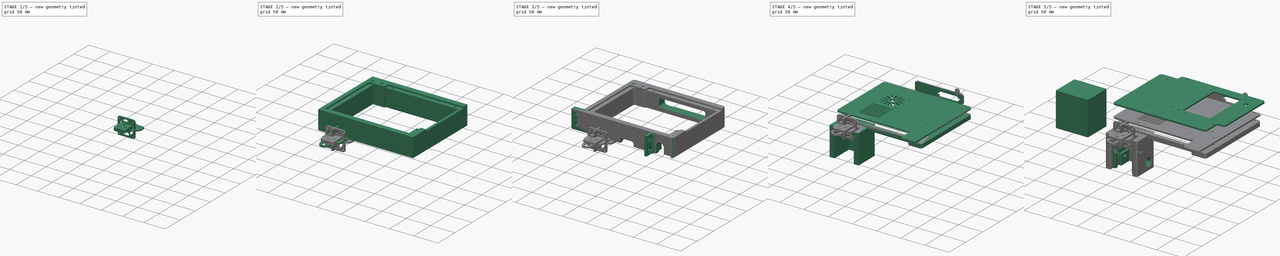
[diagram: build sequence overview — one tinted view per stage of 5, left to right]
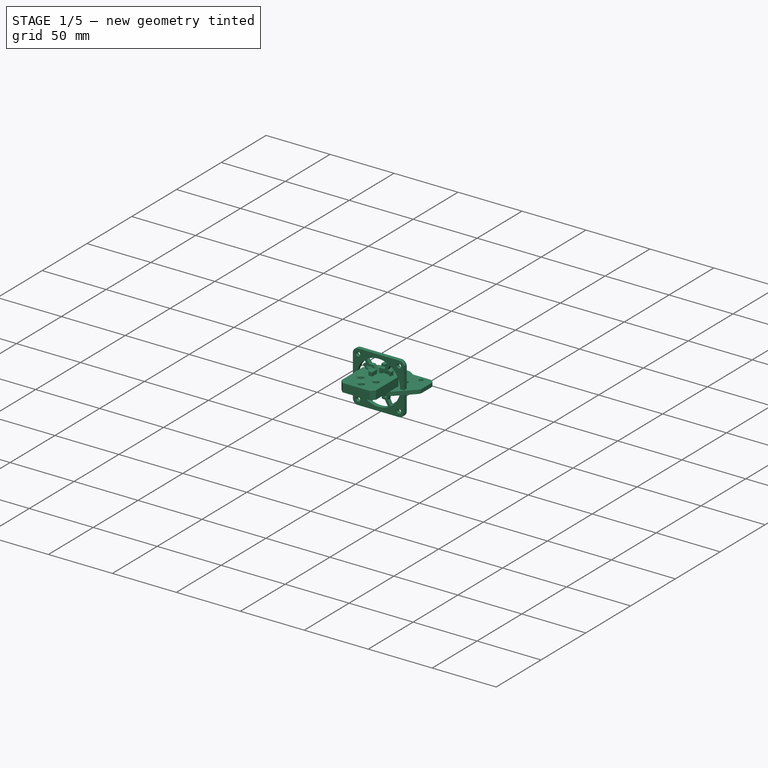
[diagram: stage 1 of 5 — iso view after this stage's code; geometry added in this stage tinted green]
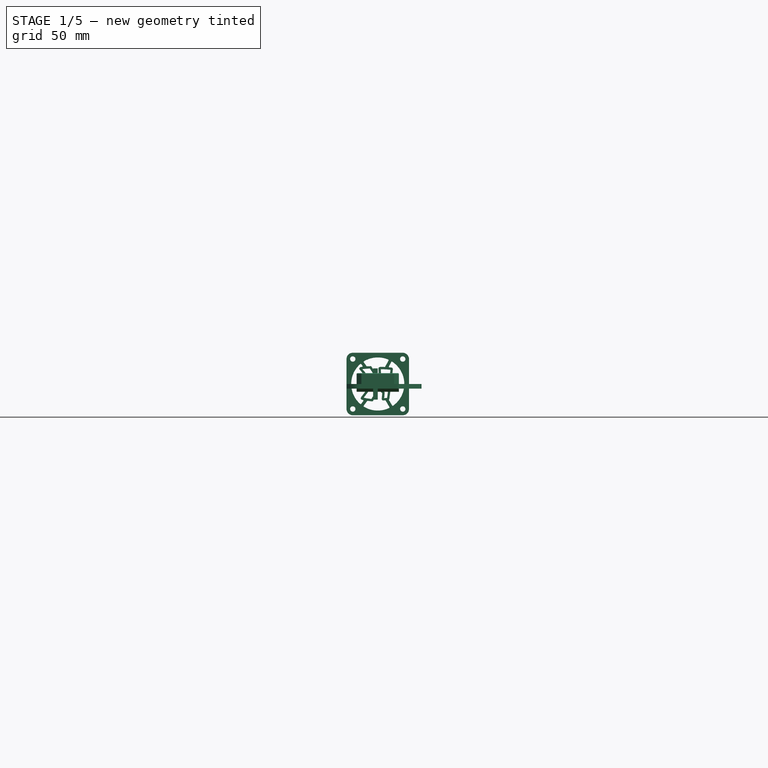
[diagram: stage 1 of 5 — front view after this stage's code; geometry added in this stage tinted green]
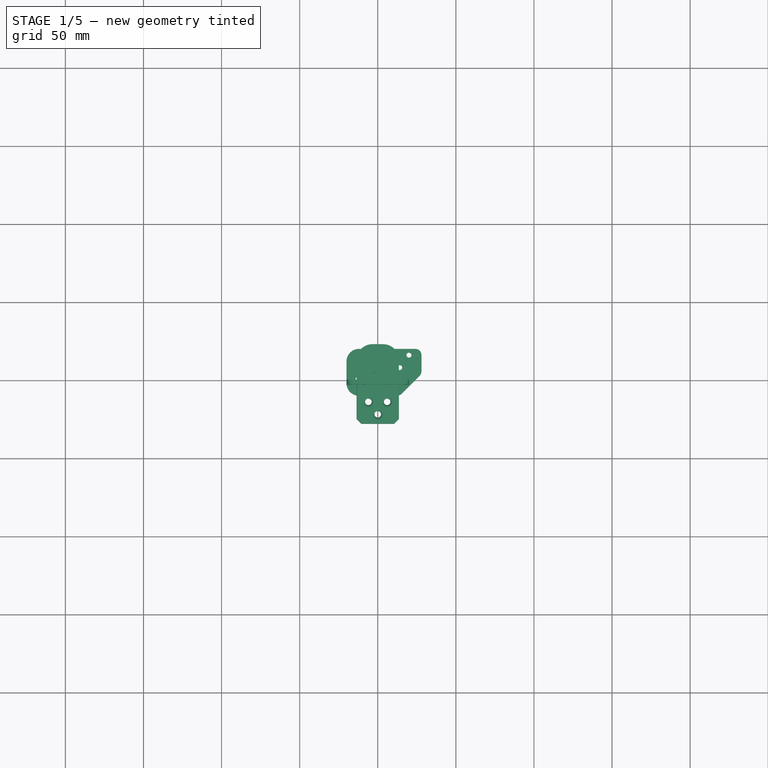
[diagram: stage 1 of 5 — top view after this stage's code; geometry added in this stage tinted green]
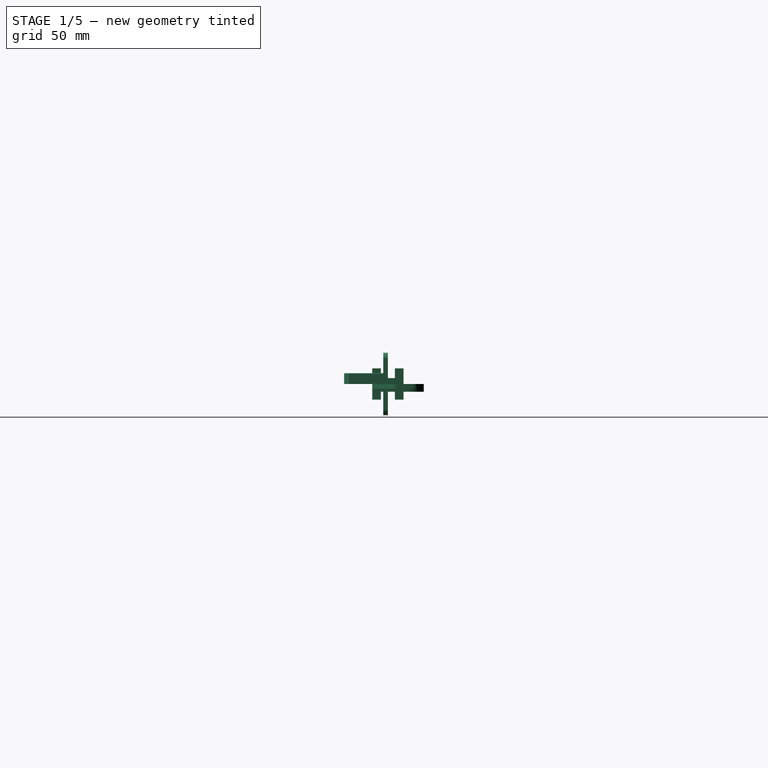
[diagram: stage 1 of 5 — right view after this stage's code; geometry added in this stage tinted green]
FCSTD DOCUMENT  (FreeCAD 2024.113R14555 (Git shallow))
Label: Ender2-Pocket-Edition
License: All rights reserved
LicenseURL: https://en.wikipedia.org/wiki/All_rights_reserved
objects: Sketcher::SketchObject×63, Part::Feature×56, App::Link×48, PartDesign::Pocket×43, PartDesign::Chamfer×30, PartDesign::Pad×25, PartDesign::Fillet×19, App::Part×16, PartDesign::Body×13, PartDesign::SubShapeBinder×7, TechDraw::DrawSVGTemplate×7, TechDraw::DrawProjGroupItem×7, TechDraw::DrawProjGroup×7, TechDraw::DrawPage×7, Part::SubShapeBinder×3, PartDesign::Mirrored×2, Part::Part2DObjectPython×2, PartDesign::Line×1, PartDesign::PolarPattern×1, PartDesign::LinearPattern×1, +1 more types
note: 571 computed .brp shape members not serialized (recipe doc carries the construction recipe); baked Part::Feature solids carry a one-line shape summary decoded from their .brp
EXTERNAL_REF file=SD-Card-Adaptator.FCStd obj=Part001

FEATURE [PartDesign::Body] Body011  label="CacheTopProfile"
  AutoGroupSolids = false
  ClaimAllChildren = false
  ExportMode = 0
  FixShape = 1
  Group = -> [Sketch058,Pad019,Fillet011,Chamfer018]
  InvalidShape = false
  Origin = -> Origin029
  Placement = pos=(85,0,394) rot=(0,0,1;0rad)
  SingleSolid = true
  Tip = -> Chamfer018
  TreeRank = 759
  ValidateShape = false
  _ExportChildren = -> [Pad019,Fillet011,Chamfer018]
  _GroupVersion = 1
FEATURE [TechDraw::DrawSVGTemplate] Template004
  Height = 210
  Orientation = 1
  Template = <path>
  TreeRank = 776
  Width = 297
FEATURE [TechDraw::DrawProjGroupItem] ProjItem004  label="Front004"
  CoarseView = false
  Direction = (0,0,1)
  Focus = 100
  HardHidden = false
  IsoCount = 0
  IsoHidden = false
  IsoVisible = false
  LockPosition = true
  Perspective = false
  Rotation = 0
  RotationVector = (0,-1,0)
  ScaleType = 2
  ScrubCount = 0
  SeamHidden = false
  SeamVisible = false
  SmoothHidden = false
  SmoothVisible = false
  Source = -> [Chamfer018]
  TreeRank = 779
  Type = 0
  X = 0
  XDirection = (0,-1,0)
  Y = 0
FEATURE [TechDraw::DrawProjGroup] ProjGroup004
  Anchor = -> ProjItem004
  AutoDistribute = true
  LockPosition = false
  ProjectionType = 0
  Rotation = 0
  ScaleType = 0
  Source = -> [Chamfer018]
  TreeRank = 780
  Views = -> [ProjItem004]
  X = 27.8617
  Y = 187.265
  spacingX = 15
  spacingY = 15
FEATURE [TechDraw::DrawPage] Page004  label="Laser3mm-CacheProfileTop"
  KeepUpdated = true
  NextBalloonIndex = 1
  ProjectionType = 0
  Template = -> Template004
  TreeRank = 777
  Views = -> [ProjGroup004]
FEATURE [Sketcher::SketchObject] Sketch059
  ArcFitTolerance = 1e-06
  AttachmentSupport = -> [YZ_Plane026]
  ExternalBSplineMaxDegree = 5
  ExternalBSplineTolerance = 0.0001
  FixShape = 1
  FullyConstrained = true
  InternalTolerance = 1e-06
  InvalidShape = false
  MakeInternals = false
  MapMode = 5
  Placement = pos=(0,0,0) rot=(0.57735,0.57735,0.57735;2.0944rad)
  Support = -> [YZ_Plane026]
  TreeRank = 791
  ValidateShape = false
  sketch-geometry (5):
    g0: LineSegment StartX=10 StartY=-10 StartZ=0 EndX=10 EndY=10 EndZ=0
    g1: LineSegment StartX=10 StartY=10 StartZ=0 EndX=-10 EndY=10 EndZ=0
    g2: LineSegment StartX=-10 StartY=10 StartZ=0 EndX=-10 EndY=-10 EndZ=0
    g3: LineSegment StartX=-10 StartY=-10 StartZ=0 EndX=10 EndY=-10 EndZ=0
    g4: GeomPoint [constr] X=0 Y=0 Z=0
  constraints (12):
    c: Coincident(g0,g1)
    c: Coincident(g1,g2)
    c: Coincident(g2,g3)
    c: Coincident(g3,g0)
    c: Horizontal(g1)
    c: Horizontal(g3)
    c: Vertical(g0)
    c: Vertical(g2)
    c: Symmetric(g1,g0,g4)
    c: Coincident(g4,g-1)
    c: Equal(g2,g1)
    c: DistanceY(g2,g2) = 20
FEATURE [PartDesign::Pad] Pad020
  AddSubType = 0
  AlongSketchNormal = false
  AutoTaperInnerAngle = true
  CheckUpToFaceLimits = true
  ClaimChildren = false
  Direction = (1,-2e-16,3e-16)
  Fit = 0
  FitJoin = 0
  FixShape = 1
  InnerFit = 0
  InnerFitJoin = 0
  InvalidShape = false
  Length = 3
  Length2 = 10
  Linearize = true
  NewSolid = false
  Profile = -> Sketch059
  ReferenceAxis = -> Sketch059 [N_Axis]
  Refine = true
  Reversed = true
  Suppress = false
  TaperInnerAngle = 0
  TaperInnerAngleRev = 0
  TreeRank = 792
  Type = 0
  ValidateShape = true
  _ProfileBasedVersion = 1
FEATURE [Sketcher::SketchObject] Sketch060
  ArcFitTolerance = 1e-06
  AttachmentSupport = -> [Pad020]
  ExternalBSplineMaxDegree = 5
  ExternalBSplineTolerance = 0.0001
  ExternalGeometry = -> [Pad020]
  FixShape = 1
  FullyConstrained = true
  InternalTolerance = 1e-06
  InvalidShape = false
  MakeInternals = false
  MapMode = 5
  Placement = pos=(0,0,0) rot=(0.57735,0.57735,0.57735;2.0944rad)
  Support = -> [Pad020]
  TreeRank = 793
  ValidateShape = false
  sketch-geometry (10):
    g0: LineSegment StartX=-4.5 StartY=-3.8 StartZ=0 EndX=-4.5 EndY=-10 EndZ=0
    g1: LineSegment StartX=-4.5 StartY=-10 StartZ=0 EndX=4.5 EndY=-10 EndZ=0
    g2: LineSegment StartX=4.5 StartY=-10 StartZ=0 EndX=4.5 EndY=-3.8 EndZ=0
    g3: LineSegment StartX=4.5 StartY=-3.8 StartZ=0 EndX=-4.5 EndY=-3.8 EndZ=0
    g4: GeomPoint [constr] X=0 Y=-6.9 Z=0
    g5: LineSegment StartX=-4.5 StartY=3.8 StartZ=0 EndX=-4.5 EndY=10 EndZ=0
    g6: LineSegment StartX=-4.5 StartY=10 StartZ=0 EndX=4.5 EndY=10 EndZ=0
    g7: LineSegment StartX=4.5 StartY=10 StartZ=0 EndX=4.5 EndY=3.8 EndZ=0
    g8: LineSegment StartX=4.5 StartY=3.8 StartZ=0 EndX=-4.5 EndY=3.8 EndZ=0
    g9: GeomPoint [constr] X=0 Y=6.9 Z=0
  constraints (25):
    c: Coincident(g0,g1)
    c: Coincident(g1,g2)
    c: Coincident(g2,g3)
    c: Coincident(g3,g0)
    c: Horizontal(g1)
    c: Horizontal(g3)
    c: Vertical(g0)
    c: Vertical(g2)
    c: Symmetric(g1,g0,g4)
    c: PointOnObject(g4,g-2)
    c: PointOnObject(g1,g-4)
    c: Coincident(g5,g6)
    c: Coincident(g6,g7)
    c: Coincident(g7,g8)
    c: Coincident(g8,g5)
    c: Horizontal(g6)
    c: Horizontal(g8)
    c: Vertical(g5)
    c: Vertical(g7)
    c: Symmetric(g6,g5,g9)
    c: PointOnObject(g9,g-2)
    c: PointOnObject(g6,g-3)
    c: Symmetric(g7,g2,g-1)
    c: DistanceY(g7,g7) = 6.2
    c: DistanceX(g6,g6) = 9
FEATURE [PartDesign::Pocket] Pocket042
  AddSubType = 1
  AlongSketchNormal = false
  AutoTaperInnerAngle = true
  BaseFeature = -> Pad020
  CheckUpToFaceLimits = true
  ClaimChildren = false
  Direction = (-1,0,0)
  Fit = 0
  FitJoin = 0
  FixShape = 1
  InnerFit = 0
  InnerFitJoin = 0
  InvalidShape = false
  Length = 5
  Length2 = 10
  Linearize = true
  NewSolid = false
  Profile = -> Sketch060
  ReferenceAxis = -> Sketch060 [N_Axis]
  Refine = true
  Suppress = false
  TaperInnerAngle = 0
  TaperInnerAngleRev = 0
  TreeRank = 794
  Type = 1
  ValidateShape = true
  _ProfileBasedVersion = 1
  _Version = 1
FEATURE [PartDesign::Body] Body012  label="RoulementProfileX"
  AutoGroupSolids = false
  ClaimAllChildren = false
  ExportMode = 0
  FixShape = 1
  Group = -> [Sketch059,Pad020,Sketch060,Pocket042,Chamfer019,Sketch061,Pad021,Mirrored001,Sketch062,Pad022,Chamfer020,Sketch063,Pad023,Fillet012,Fillet013,Sketch064,Pocket043,Chamfer021,Sketch065,Pocket044,Chamfer022]
  InvalidShape = false
  Origin = -> Origin030
  Placement = pos=(-154,26.5,285) rot=(0,0,1;0rad)
  SingleSolid = true
  Tip = -> Chamfer022
  TreeRank = 790
  ValidateShape = false
  _ExportChildren = -> [Pad020,Pocket042,Chamfer019,Pad021,Mirrored001,Pad022,Chamfer020,Pad023,Fillet012,Fillet013,Pocket043,Chamfer021,Pocket044,Chamfer022]
  _GroupVersion = 1
FEATURE [Sketcher::SketchObject] Sketch066
  ArcFitTolerance = 1e-06
  AttachmentSupport = -> [YZ_Plane027]
  ExternalBSplineMaxDegree = 5
  ExternalBSplineTolerance = 0.0001
  FixShape = 1
  FullyConstrained = true
  InternalTolerance = 1e-06
  InvalidShape = false
  MakeInternals = false
  MapMode = 5
  Placement = pos=(0,0,0) rot=(0.57735,0.57735,0.57735;2.0944rad)
  Support = -> [YZ_Plane027]
  TreeRank = 822
  ValidateShape = false
  sketch-geometry (8):
    g0: LineSegment StartX=23 StartY=0 StartZ=0 EndX=0 EndY=0 EndZ=0
    g1: LineSegment StartX=0 StartY=0 StartZ=0 EndX=0 EndY=7 EndZ=0
    g2: LineSegment StartX=0 StartY=7 StartZ=0 EndX=-28 EndY=7 EndZ=0
    g3: LineSegment StartX=-28 StartY=7 StartZ=0 EndX=-28 EndY=0 EndZ=0
    g4: LineSegment StartX=-28 StartY=0 StartZ=0 EndX=-10 EndY=0 EndZ=0
    g5: LineSegment StartX=-10 StartY=0 StartZ=0 EndX=-10 EndY=-5 EndZ=0
    g6: LineSegment StartX=-10 StartY=-5 StartZ=0 EndX=23 EndY=-5 EndZ=0
    g7: LineSegment StartX=23 StartY=-5 StartZ=0 EndX=23 EndY=0 EndZ=0
  constraints (23):
    c: PointOnObject(g0,g-1)
    c: Coincident(g0,g-1)
    c: Coincident(g0,g1)
    c: PointOnObject(g1,g-2)
    c: Coincident(g1,g2)
    c: Horizontal(g2)
    c: Coincident(g2,g3)
    c: Vertical(g3)
    c: Coincident(g3,g4)
    c: Horizontal(g4)
    c: Coincident(g4,g5)
    c: Vertical(g5)
    c: Coincident(g5,g6)
    c: Horizontal(g6)
    c: Coincident(g6,g7)
    c: Coincident(g7,g0)
    c: Vertical(g7)
    c: DistanceY(g7,g7) = 5
    c: PointOnObject(g4,g-1)
    c: DistanceX(g4,g0) = 10
    c: DistanceY(g3,g3) = 7
    c: DistanceX(g4,g4) = 18
    c: DistanceX(g0,g0) = 23
FEATURE [PartDesign::Pad] Pad024
  AddSubType = 0
  AlongSketchNormal = false
  AutoTaperInnerAngle = true
  CheckUpToFaceLimits = true
  ClaimChildren = false
  Direction = (1,-2e-16,3e-16)
  Fit = 0
  FitJoin = 0
  FixShape = 1
  InnerFit = 0
  InnerFitJoin = 0
  InvalidShape = false
  Length = 27
  Length2 = 10
  Linearize = true
  Midplane = true
  NewSolid = false
  Profile = -> Sketch066
  ReferenceAxis = -> Sketch066 [N_Axis]
  Refine = true
  Suppress = false
  TaperInnerAngle = 0
  TaperInnerAngleRev = 0
  TreeRank = 823
  Type = 0
  ValidateShape = true
  _ProfileBasedVersion = 1
FEATURE [Sketcher::SketchObject] Sketch067
  ArcFitTolerance = 1e-06
  AttachmentSupport = -> [XY_Plane027]
  ExternalBSplineMaxDegree = 5
  ExternalBSplineTolerance = 0.0001
  FixShape = 1
  FullyConstrained = true
  InternalTolerance = 1e-06
  InvalidShape = false
  MakeInternals = false
  MapMode = 5
  Support = -> [XY_Plane027]
  TreeRank = 824
  ValidateShape = false
  sketch-geometry (1):
    g0: Circle CenterX=0 CenterY=11.5 CenterZ=0 NormalX=0 NormalY=0 NormalZ=1 AngleXU=0 Radius=2.9
  constraints (3):
    c: PointOnObject(g0,g-2)
    c: DistanceY(g-1,g0) = 11.5
    c: Diameter(g0) = 5.8
FEATURE [PartDesign::Pocket] Pocket045
  AddSubType = 1
  AlongSketchNormal = false
  AutoTaperInnerAngle = true
  BaseFeature = -> Pad024
  CheckUpToFaceLimits = true
  ClaimChildren = false
  Direction = (0,0,-1)
  Fit = 0
  FitJoin = 0
  FixShape = 1
  InnerFit = 0
  InnerFitJoin = 0
  InvalidShape = false
  Length = 5
  Length2 = 10
  Linearize = true
  NewSolid = false
  Profile = -> Sketch067
  ReferenceAxis = -> Sketch067 [N_Axis]
  Refine = true
  Suppress = false
  TaperInnerAngle = 0
  TaperInnerAngleRev = 0
  TreeRank = 825
  Type = 1
  ValidateShape = true
  _ProfileBasedVersion = 1
  _Version = 1
FEATURE [Sketcher::SketchObject] Sketch068
  ArcFitTolerance = 1e-06
  AttachmentSupport = -> [Pocket045]
  ExternalBSplineMaxDegree = 5
  ExternalBSplineTolerance = 0.0001
  ExternalGeometry = -> [Pocket045]
  FixShape = 1
  FullyConstrained = true
  InternalTolerance = 1e-06
  InvalidShape = false
  MakeInternals = false
  MapMode = 5
  Placement = pos=(1.4e-15,-1.1e-15,-5) rot=(1,0,0;3.14159rad)
  Support = -> [Pocket045]
  TreeRank = 826
  ValidateShape = false
  sketch-geometry (1):
    g0: Circle CenterX=0 CenterY=-11.5 CenterZ=0 NormalX=0 NormalY=0 NormalZ=1 AngleXU=0 Radius=5.5
  constraints (2):
    c: Coincident(g0,g-3)
    c: Diameter(g0) = 11
FEATURE [PartDesign::Pocket] Pocket046
  AddSubType = 1
  AlongSketchNormal = false
  AutoTaperInnerAngle = true
  BaseFeature = -> Pocket045
  CheckUpToFaceLimits = true
  ClaimChildren = false
  Direction = (-3e-16,2e-16,1)
  Fit = 0
  FitJoin = 0
  FixShape = 1
  InnerFit = 0
  InnerFitJoin = 0
  InvalidShape = false
  Length = 3
  Length2 = 10
  Linearize = true
  NewSolid = false
  Profile = -> Sketch068
  ReferenceAxis = -> Sketch068 [N_Axis]
  Refine = true
  Suppress = false
  TaperInnerAngle = 0
  TaperInnerAngleRev = 0
  TreeRank = 827
  Type = 0
  ValidateShape = true
  _ProfileBasedVersion = 1
  _Version = 1
FEATURE [Sketcher::SketchObject] Sketch069
  ArcFitTolerance = 1e-06
  AttachmentSupport = -> [Pocket046]
  ExternalBSplineMaxDegree = 5
  ExternalBSplineTolerance = 0.0001
  ExternalGeometry = -> [Pocket046]
  FixShape = 1
  FullyConstrained = true
  InternalTolerance = 1e-06
  InvalidShape = false
  MakeInternals = false
  MapMode = 5
  Placement = pos=(0,0,0) rot=(1,0,0;3.14159rad)
  Support = -> [Pocket046]
  TreeRank = 828
  ValidateShape = false
  sketch-geometry (3):
    g0: Circle CenterX=0 CenterY=22 CenterZ=0 NormalX=0 NormalY=0 NormalZ=1 AngleXU=0 Radius=2.1
    g1: Circle CenterX=-6 CenterY=14 CenterZ=0 NormalX=0 NormalY=0 NormalZ=1 AngleXU=0 Radius=2.1
    g2: Circle CenterX=6 CenterY=14 CenterZ=0 NormalX=0 NormalY=0 NormalZ=1 AngleXU=0 Radius=2.1
  constraints (8):
    c: PointOnObject(g0,g-2)
    c: Equal(g1,g2)
    c: Equal(g1,g0)
    c: Diameter(g1) = 4.2
    c: Symmetric(g1,g2,g-2)
    c: DistanceX(g1,g2) = 12
    c: DistanceY(g2,g0) = 8
    c: DistanceY(g-3,g2) = 4
FEATURE [PartDesign::Pocket] Pocket047
  AddSubType = 1
  AlongSketchNormal = false
  AutoTaperInnerAngle = true
  BaseFeature = -> Pocket046
  CheckUpToFaceLimits = true
  ClaimChildren = false
  Direction = (-3e-16,2e-16,1)
  Fit = 0
  FitJoin = 0
  FixShape = 1
  InnerFit = 0
  InnerFitJoin = 0
  InvalidShape = false
  Length = 5
  Length2 = 10
  Linearize = true
  NewSolid = false
  Profile = -> Sketch069
  ReferenceAxis = -> Sketch069 [N_Axis]
  Refine = true
  Suppress = false
  TaperInnerAngle = 0
  TaperInnerAngleRev = 0
  TreeRank = 829
  Type = 1
  ValidateShape = true
  _ProfileBasedVersion = 1
  _Version = 1
FEATURE [PartDesign::Chamfer] Chamfer023
  AddSubType = 0
  Angle = 45
  Base = -> Pocket047 [Edge24]
  BaseFeature = -> Pocket047
  ChamferType = 0
  FixShape = 1
  FlipDirection = false
  InvalidShape = false
  NewSolid = false
  Refine = true
  Size = 4.99
  Size2 = 1
  SupportTransform = false
  Suppress = false
  TreeRank = 830
  UseAllEdges = false
  ValidateShape = true
FEATURE [PartDesign::Fillet] Fillet014
  AddSubType = 0
  Base = -> Chamfer023 [Edge26,Edge6]
  BaseFeature = -> Chamfer023
  FixShape = 1
  InvalidShape = false
  NewSolid = false
  Radius = 10
  Refine = true
  SupportTransform = false
  Suppress = false
  TreeRank = 831
  UseAllEdges = false
  ValidateShape = true
FEATURE [PartDesign::Chamfer] Chamfer024
  AddSubType = 0
  Angle = 45
  Base = -> Fillet014 [Edge39,Edge9]
  BaseFeature = -> Fillet014
  ChamferType = 0
  FixShape = 1
  FlipDirection = false
  InvalidShape = false
  NewSolid = false
  Refine = true
  Size = 3
  Size2 = 1
  SupportTransform = false
  Suppress = false
  TreeRank = 832
  UseAllEdges = false
  ValidateShape = true
FEATURE [PartDesign::Chamfer] Chamfer025
  AddSubType = 0
  Angle = 45
  Base = -> Chamfer024 [Edge42,Edge54,Edge37]
  BaseFeature = -> Chamfer024
  ChamferType = 0
  FixShape = 1
  FlipDirection = false
  InvalidShape = false
  NewSolid = false
  Refine = true
  Size = 0.2
  Size2 = 1
  SupportTransform = false
  Suppress = false
  TreeRank = 833
  UseAllEdges = false
  ValidateShape = true
FEATURE [PartDesign::Chamfer] Chamfer026
  AddSubType = 0
  Angle = 45
  Base = -> Chamfer025 [Edge39,Edge46,Edge47,Edge38,Edge40,Edge48]
  BaseFeature = -> Chamfer025
  ChamferType = 0
  FixShape = 1
  FlipDirection = false
  InvalidShape = false
  NewSolid = false
  Refine = true
  Size = 1
  Size2 = 1
  SupportTransform = false
  Suppress = false
  TreeRank = 834
  UseAllEdges = false
  ValidateShape = true
FEATURE [PartDesign::Chamfer] Chamfer027
  AddSubType = 0
  Angle = 45
  Base = -> Chamfer026 [Edge41]
  BaseFeature = -> Chamfer026
  ChamferType = 0
  FixShape = 1
  FlipDirection = false
  InvalidShape = false
  NewSolid = false
  Refine = true
  Size = 1
  Size2 = 1
  SupportTransform = false
  Suppress = false
  TreeRank = 835
  UseAllEdges = false
  ValidateShape = true
FEATURE [PartDesign::Chamfer] Chamfer028
  AddSubType = 0
  Angle = 45
  Base = -> Chamfer027 [Face2]
  BaseFeature = -> Chamfer027
  ChamferType = 0
  FixShape = 1
  FlipDirection = false
  InvalidShape = false
  NewSolid = false
  Refine = true
  Size = 0.4
  Size2 = 1
  SupportTransform = false
  Suppress = false
  TreeRank = 836
  UseAllEdges = false
  ValidateShape = true
FEATURE [PartDesign::Body] Body013  label="DragChainSligBottom"
  AutoGroupSolids = false
  ClaimAllChildren = false
  ExportMode = 0
  FixShape = 1
  Group = -> [Sketch066,Pad024,Sketch067,Pocket045,Sketch068,Pocket046,Sketch069,Pocket047,Chamfer023,Fillet014,Chamfer024,Chamfer025,Chamfer026,Chamfer027,Chamfer028]
  InvalidShape = false
  Origin = -> Origin031
  Placement = pos=(53,-110,-3.7) rot=(0,0,1;0rad)
  SingleSolid = true
  Tip = -> Chamfer028
  TreeRank = 821
  ValidateShape = false
  _ExportChildren = -> [Pad024,Pocket045,Pocket046,Pocket047,Chamfer023,Fillet014,Chamfer024,Chamfer025,Chamfer026,Chamfer027,Chamfer028]
  _GroupVersion = 1
FEATURE [Sketcher::SketchObject] Sketch070
  ArcFitTolerance = 1e-06
  AttachmentSupport = -> [XY_Plane028]
  ExternalBSplineMaxDegree = 5
  ExternalBSplineTolerance = 0.0001
  FixShape = 1
  FullyConstrained = true
  InternalTolerance = 1e-06
  InvalidShape = false
  MakeInternals = false
  MapMode = 5
  Support = -> [XY_Plane028]
  TreeRank = 847
  ValidateShape = false
  sketch-geometry (10):
    g0: Circle CenterX=-11.5 CenterY=0 CenterZ=0 NormalX=0 NormalY=0 NormalZ=1 AngleXU=0 Radius=2.8
    g1: Circle CenterX=8 CenterY=16 CenterZ=0 NormalX=0 NormalY=0 NormalZ=1 AngleXU=0 Radius=1.6
    g2: Circle CenterX=20 CenterY=16 CenterZ=0 NormalX=0 NormalY=0 NormalZ=1 AngleXU=0 Radius=1.6
    g3: Circle CenterX=14 CenterY=8 CenterZ=0 NormalX=0 NormalY=0 NormalZ=1 AngleXU=0 Radius=1.6
    g4: LineSegment [constr] StartX=8 StartY=16 StartZ=0 EndX=20 EndY=16 EndZ=0
    g5: LineSegment [constr] StartX=14 StartY=8 StartZ=0 EndX=14 EndY=16 EndZ=0
    g6: LineSegment StartX=-20 StartY=20 StartZ=0 EndX=28 EndY=20 EndZ=0
    g7: LineSegment StartX=28 StartY=20 StartZ=0 EndX=28 EndY=-10 EndZ=0
    g8: LineSegment StartX=28 StartY=-10 StartZ=0 EndX=-20 EndY=-10 EndZ=0
    g9: LineSegment StartX=-20 StartY=-10 StartZ=0 EndX=-20 EndY=20 EndZ=0
  constraints (28):
    c: PointOnObject(g0,g-1)
    c: Diameter(g0) = 5.6
    c: DistanceX(g0,g-1) = 11.5
    c: Horizontal(g1,g2)
    c: Coincident(g4,g1)
    c: Coincident(g4,g2)
    c: Vertical(g5)
    c: Symmetric(g1,g2,g5)
    c: Coincident(g5,g3)
    c: Equal(g1,g3)
    c: Equal(g1,g2)
    c: Diameter(g1) = 3.2
    c: DistanceX(g4,g4) = 12
    c: DistanceY(g5,g5) = 8
    c: DistanceX(g-1,g5) = 14
    c: Coincident(g6,g7)
    c: Coincident(g7,g8)
    c: Coincident(g8,g9)
    c: Coincident(g9,g6)
    c: Horizontal(g6)
    c: Horizontal(g8)
    c: Vertical(g7)
    c: Vertical(g9)
    c: DistanceY(g7,g-1) = 10
    c: DistanceX(g5,g6) = 14
    c: DistanceY(g2,g6) = 4
    c: DistanceX(g6,g-1) = 20
    c: DistanceY(g7,g7) = 30
FEATURE [PartDesign::Pad] Pad025
  AddSubType = 0
  AlongSketchNormal = false
  AutoTaperInnerAngle = true
  CheckUpToFaceLimits = true
  ClaimChildren = false
  Direction = (0,0,1)
  Fit = 0
  FitJoin = 0
  FixShape = 1
  InnerFit = 0
  InnerFitJoin = 0
  InvalidShape = false
  Length = 3
  Length2 = 10
  Linearize = true
  NewSolid = false
  Profile = -> Sketch070
  ReferenceAxis = -> Sketch070 [N_Axis]
  Refine = true
  Reversed = true
  Suppress = false
  TaperInnerAngle = 0
  TaperInnerAngleRev = 0
  TreeRank = 848
  Type = 0
  ValidateShape = true
  _ProfileBasedVersion = 1
FEATURE [PartDesign::Chamfer] Chamfer029
  AddSubType = 0
  Angle = 45
  Base = -> Pad025 [Edge5]
  BaseFeature = -> Pad025
  ChamferType = 0
  FixShape = 1
  FlipDirection = false
  InvalidShape = false
  NewSolid = false
  Refine = true
  Size = 14
  Size2 = 1
  SupportTransform = false
  Suppress = false
  TreeRank = 849
  UseAllEdges = false
  ValidateShape = true
FEATURE [PartDesign::Fillet] Fillet015
  AddSubType = 0
  Base = -> Chamfer029 [Edge23,Edge15]
  BaseFeature = -> Chamfer029
  FixShape = 1
  InvalidShape = false
  NewSolid = false
  Radius = 8
  Refine = true
  SupportTransform = false
  Suppress = false
  TreeRank = 850
  UseAllEdges = false
  ValidateShape = true
FEATURE [PartDesign::Fillet] Fillet016
  AddSubType = 0
  Base = -> Fillet015 [Edge13,Edge17,Edge21]
  BaseFeature = -> Fillet015
  FixShape = 1
  InvalidShape = false
  NewSolid = false
  Radius = 4
  Refine = true
  SupportTransform = false
  Suppress = false
  TreeRank = 851
  UseAllEdges = false
  ValidateShape = true
FEATURE [PartDesign::Body] Body014  label="DragChainePlate"
  AutoGroupSolids = false
  ClaimAllChildren = false
  ExportMode = 0
  FixShape = 1
  Group = -> [Sketch070,Pad025,Chamfer029,Fillet015,Fillet016]
  InvalidShape = false
  Origin = -> Origin032
  Placement = pos=(108,-82,-3.7) rot=(0,0,1;0rad)
  SingleSolid = true
  Tip = -> Fillet016
  TreeRank = 846
  ValidateShape = false
  _ExportChildren = -> [Pad025,Chamfer029,Fillet015,Fillet016]
  _GroupVersion = 1
FEATURE [TechDraw::DrawSVGTemplate] Template005
  Height = 210
  Orientation = 1
  Template = <path>
  TreeRank = 853
  Width = 297
FEATURE [TechDraw::DrawProjGroupItem] ProjItem005  label="Front005"
  CoarseView = false
  Direction = (0,0,1)
  Focus = 100
  HardHidden = false
  IsoCount = 0
  IsoHidden = false
  IsoVisible = false
  LockPosition = true
  Perspective = false
  Rotation = 0
  RotationVector = (1,0,0)
  ScaleType = 2
  ScrubCount = 0
  SeamHidden = false
  SeamVisible = false
  SmoothHidden = false
  SmoothVisible = false
  Source = -> [Fillet016]
  TreeRank = 856
  Type = 0
  X = 0
  XDirection = (1,0,0)
  Y = 0
FEATURE [TechDraw::DrawProjGroup] ProjGroup005
  Anchor = -> ProjItem005
  AutoDistribute = true
  LockPosition = false
  ProjectionType = 0
  Rotation = 0
  ScaleType = 0
  Source = -> [Fillet016]
  TreeRank = 857
  Views = -> [ProjItem005]
  X = 25.0014
  Y = 194.21
  spacingX = 15
  spacingY = 15
FEATURE [TechDraw::DrawPage] Page005
  KeepUpdated = true
  NextBalloonIndex = 1
  ProjectionType = 0
  Template = -> Template005
  TreeRank = 854
  Views = -> [ProjGroup005]
FEATURE [Sketcher::SketchObject] Sketch071
  ArcFitTolerance = 1e-06
  AttachmentSupport = -> [XZ_Plane029]
  ExternalBSplineMaxDegree = 5
  ExternalBSplineTolerance = 0.0001
  FixShape = 1
  FullyConstrained = true
  InternalTolerance = 1e-06
  InvalidShape = false
  MakeInternals = false
  MapMode = 5
  Placement = pos=(0,0,0) rot=(1,0,0;1.5708rad)
  Support = -> [XZ_Plane029]
  TreeRank = 868
  ValidateShape = false
  sketch-geometry (14):
    g0: LineSegment StartX=-20 StartY=-20 StartZ=0 EndX=-20 EndY=20 EndZ=0
    g1: LineSegment StartX=-20 StartY=20 StartZ=0 EndX=20 EndY=20 EndZ=0
    g2: LineSegment StartX=20 StartY=20 StartZ=0 EndX=20 EndY=-20 EndZ=0
    g3: LineSegment StartX=20 StartY=-20 StartZ=0 EndX=-20 EndY=-20 EndZ=0
    g4: GeomPoint [constr] X=-5e-16 Y=-1e-16 Z=0
    g5: LineSegment [constr] StartX=16 StartY=-16 StartZ=0 EndX=16 EndY=16 EndZ=0
    g6: LineSegment [constr] StartX=16 StartY=16 StartZ=0 EndX=-16 EndY=16 EndZ=0
    g7: LineSegment [constr] StartX=-16 StartY=16 StartZ=0 EndX=-16 EndY=-16 EndZ=0
    g8: LineSegment [constr] StartX=-16 StartY=-16 StartZ=0 EndX=16 EndY=-16 EndZ=0
    g9: GeomPoint [constr] X=-5e-16 Y=-1e-16 Z=0
    g10: Circle CenterX=-16 CenterY=16 CenterZ=0 NormalX=0 NormalY=0 NormalZ=1 AngleXU=0 Radius=1.7
    g11: Circle CenterX=16 CenterY=16 CenterZ=0 NormalX=0 NormalY=0 NormalZ=1 AngleXU=0 Radius=1.7
    g12: Circle CenterX=16 CenterY=-16 CenterZ=0 NormalX=0 NormalY=0 NormalZ=1 AngleXU=0 Radius=1.7
    g13: Circle CenterX=-16 CenterY=-16 CenterZ=0 NormalX=0 NormalY=0 NormalZ=1 AngleXU=0 Radius=1.7
  constraints (32):
    c: Coincident(g0,g1)
    c: Coincident(g1,g2)
    c: Coincident(g2,g3)
    c: Coincident(g3,g0)
    c: Horizontal(g1)
    c: Horizontal(g3)
    c: Vertical(g0)
    c: Vertical(g2)
    c: Symmetric(g1,g0,g4)
    c: Coincident(g4,g-1)
    c: Equal(g2,g1)
    c: DistanceY(g2,g2) = 40
    c: Coincident(g5,g6)
    c: Coincident(g6,g7)
    c: Coincident(g7,g8)
    c: Coincident(g8,g5)
    c: Horizontal(g6)
    c: Horizontal(g8)
    c: Vertical(g5)
    c: Vertical(g7)
    c: Symmetric(g6,g5,g9)
    c: Coincident(g9,g4)
    c: Equal(g6,g7)
    c: DistanceX(g6,g6) = 32
    c: Coincident(g10,g6)
    c: Coincident(g11,g5)
    c: Coincident(g12,g5)
    c: Coincident(g13,g7)
    c: Equal(g13,g10)
    c: Equal(g13,g11)
    c: Equal(g13,g12)
    c: Diameter(g13) = 3.4
FEATURE [PartDesign::Pad] Pad026
  AddSubType = 0
  AlongSketchNormal = false
  AutoTaperInnerAngle = true
  CheckUpToFaceLimits = true
  ClaimChildren = false
  Direction = (0,-1,2e-16)
  Fit = 0
  FitJoin = 0
  FixShape = 1
  InnerFit = 0
  InnerFitJoin = 0
  InvalidShape = false
  Length = 3
  Length2 = 10
  Linearize = true
  NewSolid = false
  Profile = -> Sketch071
  ReferenceAxis = -> Sketch071 [N_Axis]
  Refine = true
  Suppress = false
  TaperInnerAngle = 0
  TaperInnerAngleRev = 0
  TreeRank = 869
  Type = 0
  ValidateShape = true
  _ProfileBasedVersion = 1
FEATURE [PartDesign::Fillet] Fillet017
  AddSubType = 0
  Base = -> Pad026 [Edge5,Edge2,Edge1,Edge8]
  BaseFeature = -> Pad026
  FixShape = 1
  InvalidShape = false
  NewSolid = false
  Radius = 4
  Refine = true
  SupportTransform = false
  Suppress = false
  TreeRank = 870
  UseAllEdges = false
  ValidateShape = true
FEATURE [Part::Part2DObjectPython] ShapeString001  # Draft 2D object (typed FeaturePython)
  FixShape = 1
  FontFile = G:/Mon Drive/02 - LES KARIBOUS/2024/COMMUNICATION/baveuse/baveuse.otf
  InvalidShape = false
  MakeFace = true
  Placement = pos=(8.9,70,274.9) rot=(0,0.707107,0.707107;3.14159rad)
  Size = 10
  String = K
  Tracking = 0
  TreeRank = 871
  ValidateShape = false
FEATURE [PartDesign::SubShapeBinder] Binder006  label="Binder006(ShapeString001)"
  BindCopyOnChange = 0
  BindMode = 0
  ClaimChildren = false
  Context = -> Part015 [Body015.Binder006.]
  EdgeTolerance = 1e-06
  FillStyle = 0
  FixShape = 1
  Fuse = false
  InvalidShape = false
  MakeFace = true
  MergeEdges = true
  OffsetFill = false
  OffsetIntersection = false
  OffsetJoinType = 0
  OffsetOpenResult = false
  Outline = false
  PartialLoad = false
  Relative = true
  SplitEdges = false
  Support = -> [ShapeString001]
  TightBound = false
  TreeRank = 872
  ValidateShape = false
  _Version = 8
FEATURE [Sketcher::SketchObject] Sketch072
  ArcFitTolerance = 1e-06
  AttachmentSupport = -> [Fillet017]
  ExternalBSplineMaxDegree = 5
  ExternalBSplineTolerance = 0.0001
  FixShape = 1
  FullyConstrained = true
  InternalTolerance = 1e-06
  InvalidShape = false
  MakeInternals = false
  MapMode = 5
  Placement = pos=(0,0,0) rot=(0,0.707107,0.707107;3.14159rad)
  Support = -> [Fillet017]
  TreeRank = 873
  ValidateShape = false
  sketch-geometry (1):
    g0: Circle CenterX=0 CenterY=0 CenterZ=0 NormalX=0 NormalY=0 NormalZ=1 AngleXU=0 Radius=17
  constraints (2):
    c: Diameter(g0) = 34
    c: Coincident(g0,g-1)
FEATURE [PartDesign::Pocket] Pocket048
  AddSubType = 1
  AlongSketchNormal = false
  AutoTaperInnerAngle = true
  BaseFeature = -> Fillet017
  CheckUpToFaceLimits = true
  ClaimChildren = false
  Direction = (0,-1,2e-16)
  Fit = 0
  FitJoin = 0
  FixShape = 1
  InnerFit = 0
  InnerFitJoin = 0
  InvalidShape = false
  Length = 5
  Length2 = 10
  Linearize = true
  NewSolid = false
  Profile = -> Sketch072
  ReferenceAxis = -> Sketch072 [N_Axis]
  Refine = true
  Suppress = false
  TaperInnerAngle = 0
  TaperInnerAngleRev = 0
  TreeRank = 874
  Type = 1
  ValidateShape = true
  _ProfileBasedVersion = 1
  _Version = 1
FEATURE [PartDesign::Pad] Pad027
  AddSubType = 0
  AlongSketchNormal = false
  AutoTaperInnerAngle = true
  BaseFeature = -> Pocket048
  CheckUpToFaceLimits = true
  ClaimChildren = false
  Direction = (0,1,-2e-16)
  Fit = 1
  FitJoin = 0
  FixShape = 1
  InnerFit = 0
  InnerFitJoin = 0
  InvalidShape = false
  Length = 3
  Length2 = 10
  Linearize = true
  NewSolid = false
  Profile = -> Binder006
  Refine = true
  Reversed = true
  Suppress = false
  TaperInnerAngle = 0
  TaperInnerAngleRev = 0
  TreeRank = 875
  Type = 0
  ValidateShape = true
  _ProfileBasedVersion = 1
FEATURE [Sketcher::SketchObject] Sketch073
  ArcFitTolerance = 1e-06
  AttachmentSupport = -> [XZ_Plane029]
  ExternalBSplineMaxDegree = 5
  ExternalBSplineTolerance = 0.0001
  FixShape = 1
  FullyConstrained = false
  InternalTolerance = 1e-06
  InvalidShape = false
  MakeInternals = false
  MapMode = 5
  Placement = pos=(0,0,0) rot=(1,0,0;1.5708rad)
  Support = -> [XZ_Plane029]
  TreeRank = 876
  ValidateShape = false
  sketch-geometry (20):
    g0: ArcOfCircle CenterX=9.11402 CenterY=17.1143 CenterZ=0 NormalX=0 NormalY=0 NormalZ=1 AngleXU=0 Radius=1 StartAngle=5.79385 EndAngle=8.93544
    g1: ArcOfCircle CenterX=4.65306 CenterY=8.73749 CenterZ=0 NormalX=0 NormalY=0 NormalZ=1 AngleXU=0 Radius=1 StartAngle=2.65225 EndAngle=5.79385
    g2: LineSegment StartX=8.23137 StartY=17.5843 StartZ=0 EndX=3.77041 EndY=9.20753 EndZ=0
    g3: LineSegment StartX=5.5357 StartY=8.26744 StartZ=0 EndX=9.99666 EndY=16.6442 EndZ=0
    g4: ArcOfCircle CenterX=-11.4698 CenterY=15.6372 CenterZ=0 NormalX=0 NormalY=0 NormalZ=1 AngleXU=0 Radius=1 StartAngle=0.632855 EndAngle=3.77445
    g5: ArcOfCircle CenterX=-6.76849 CenterY=9.2277 CenterZ=0 NormalX=0 NormalY=0 NormalZ=1 AngleXU=0 Radius=1 StartAngle=3.77445 EndAngle=6.91604
    g6: LineSegment StartX=-12.2762 StartY=15.0457 StartZ=0 EndX=-7.57483 EndY=8.63625 EndZ=0
    g7: LineSegment StartX=-5.96215 StartY=9.81915 StartZ=0 EndX=-10.6635 EndY=16.2286 EndZ=0
    g8: ArcOfCircle CenterX=-11.3269 CenterY=-15.3815 CenterZ=0 NormalX=0 NormalY=0 NormalZ=1 AngleXU=0 Radius=1 StartAngle=2.50686 EndAngle=5.64845
    g9: ArcOfCircle CenterX=-6.31279 CenterY=-8.57256 CenterZ=0 NormalX=0 NormalY=0 NormalZ=1 AngleXU=0 Radius=1 StartAngle=5.64845 EndAngle=8.79004
    g10: LineSegment StartX=-10.5217 StartY=-15.9745 StartZ=0 EndX=-5.50756 EndY=-9.16553 EndZ=0
    g11: LineSegment StartX=-7.11802 StartY=-7.9796 StartZ=0 EndX=-12.1321 EndY=-14.7886 EndZ=0
    g12: ArcOfCircle CenterX=9.82873 CenterY=-16.8109 CenterZ=0 NormalX=0 NormalY=0 NormalZ=1 AngleXU=0 Radius=1 StartAngle=3.67066 EndAngle=6.81225
    g13: ArcOfCircle CenterX=5.00423 CenterY=-8.55918 CenterZ=0 NormalX=0 NormalY=0 NormalZ=1 AngleXU=0 Radius=1 StartAngle=0.529066 EndAngle=3.67066
    g14: LineSegment StartX=10.692 StartY=-16.3062 StartZ=0 EndX=5.86751 EndY=-8.05445 EndZ=0
    g15: LineSegment StartX=4.14095 StartY=-9.06391 StartZ=0 EndX=8.96545 EndY=-17.3157 EndZ=0
    g16: LineSegment [constr] StartX=0 StartY=0 StartZ=0 EndX=-11.3269 EndY=-15.3815 EndZ=0
    g17: LineSegment [constr] StartX=0 StartY=0 StartZ=0 EndX=-11.4698 EndY=15.6372 EndZ=0
    g18: LineSegment [constr] StartX=9.11402 StartY=17.1143 StartZ=0 EndX=0 EndY=0 EndZ=0
    g19: LineSegment [constr] StartX=9.82873 StartY=-16.8109 StartZ=0 EndX=0 EndY=0 EndZ=0
  constraints (36):
    c: Tangent(g0,g2) = -1.5708
    c: Tangent(g2,g1) = -1.5708
    c: Tangent(g1,g3) = -1.5708
    c: Tangent(g3,g0) = -1.5708
    c: Equal(g0,g1)
    c: Tangent(g4,g6) = -1.5708
    c: Tangent(g6,g5) = -1.5708
    c: Tangent(g5,g7) = -1.5708
    c: Tangent(g7,g4) = -1.5708
    c: Equal(g4,g5)
    c: Tangent(g8,g10) = -1.5708
    c: Tangent(g10,g9) = -1.5708
    c: Tangent(g9,g11) = -1.5708
    c: Tangent(g11,g8) = -1.5708
    c: Equal(g8,g9)
    c: Tangent(g12,g14) = -1.5708
    c: Tangent(g14,g13) = -1.5708
    c: Tangent(g13,g15) = -1.5708
    c: Tangent(g15,g12) = -1.5708
    c: Equal(g12,g13)
    c: Equal(g1,g5)
    c: Equal(g5,g9)
    c: Equal(g9,g13)
    c: Radius(g1) = 1
    c: Coincident(g16,g-1)
    c: Coincident(g16,g8)
    c: Coincident(g17,g16)
    c: Coincident(g17,g4)
    c: Coincident(g18,g0)
    c: Coincident(g18,g16)
    c: Coincident(g19,g12)
    c: Coincident(g19,g16)
    c: PointOnObject(g13,g19)
    c: PointOnObject(g9,g16)
    c: PointOnObject(g5,g17)
    c: PointOnObject(g1,g18)
FEATURE [PartDesign::Pad] Pad028
  AddSubType = 0
  AlongSketchNormal = false
  AutoTaperInnerAngle = true
  BaseFeature = -> Pad027
  CheckUpToFaceLimits = true
  ClaimChildren = false
  Direction = (0,-1,2e-16)
  Fit = 0
  FitJoin = 0
  FixShape = 1
  InnerFit = 0
  InnerFitJoin = 0
  InvalidShape = false
  Length = 3
  Length2 = 10
  Linearize = true
  NewSolid = false
  Profile = -> Sketch073
  ReferenceAxis = -> Sketch073 [N_Axis]
  Refine = true
  Suppress = false
  TaperInnerAngle = 0
  TaperInnerAngleRev = 0
  TreeRank = 877
  Type = 0
  ValidateShape = true
  _ProfileBasedVersion = 1
FEATURE [PartDesign::Fillet] Fillet018
  AddSubType = 0
  Base = -> Pad028 [Edge75,Edge71,Edge124,Edge127,Edge130,Edge94,Edge126,Edge96,Edge85,Edge103,Edge100,Edge83,Edge69,Edge102,Edge106,Edge72]
  BaseFeature = -> Pad028
  FixShape = 1
  InvalidShape = false
  NewSolid = false
  Radius = 0.4
  Refine = true
  SupportTransform = false
  Suppress = false
  TreeRank = 878
  UseAllEdges = false
  ValidateShape = true
FEATURE [PartDesign::Pocket] Pocket049
  AddSubType = 1
  AlongSketchNormal = false
  AutoTaperInnerAngle = true
  BaseFeature = -> Fillet018
  CheckUpToFaceLimits = true
  ClaimChildren = false
  Direction = (0,-1,2e-16)
  Fit = -0.5
  FitJoin = 0
  FixShape = 1
  InnerFit = 0
  InnerFitJoin = 0
  InvalidShape = false
  Length = 5
  Length2 = 10
  Linearize = true
  NewSolid = false
  Profile = -> Binder006
  Refine = true
  Suppress = false
  TaperInnerAngle = 0
  TaperInnerAngleRev = 0
  TreeRank = 879
  Type = 1
  ValidateShape = true
  _ProfileBasedVersion = 1
  _Version = 1
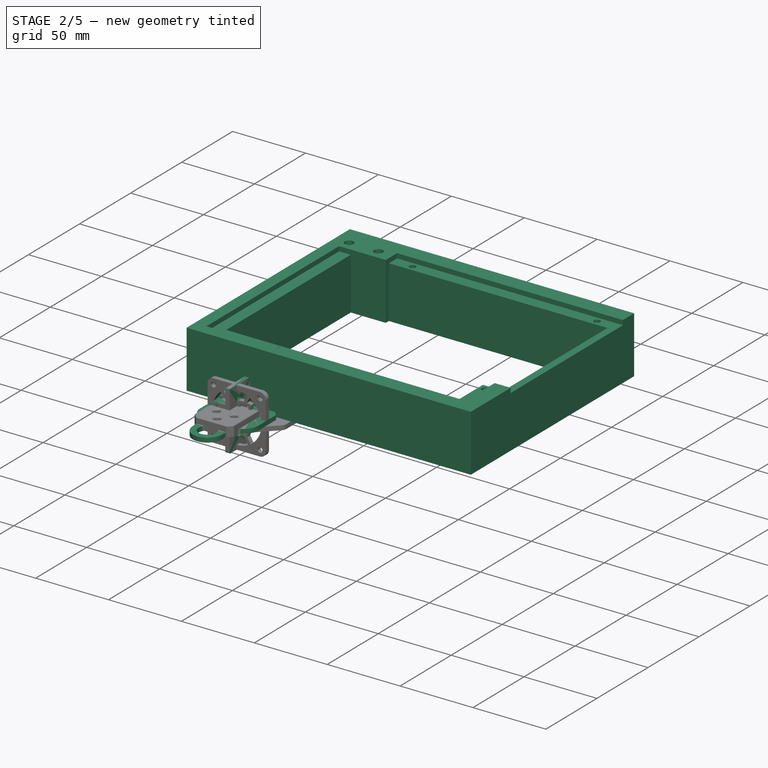
[diagram: stage 2 of 5 — iso view after this stage's code; geometry added in this stage tinted green]
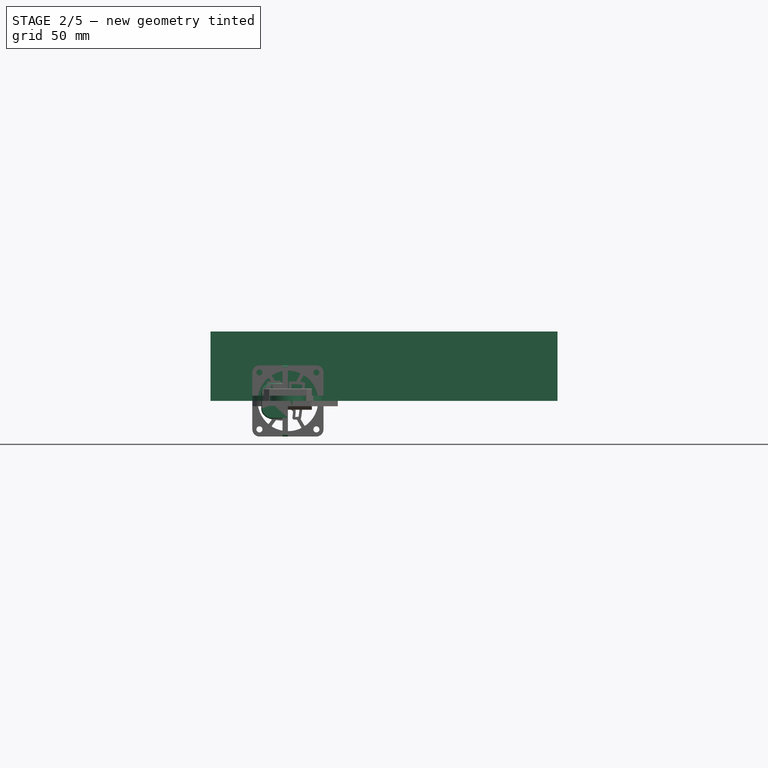
[diagram: stage 2 of 5 — front view after this stage's code; geometry added in this stage tinted green]
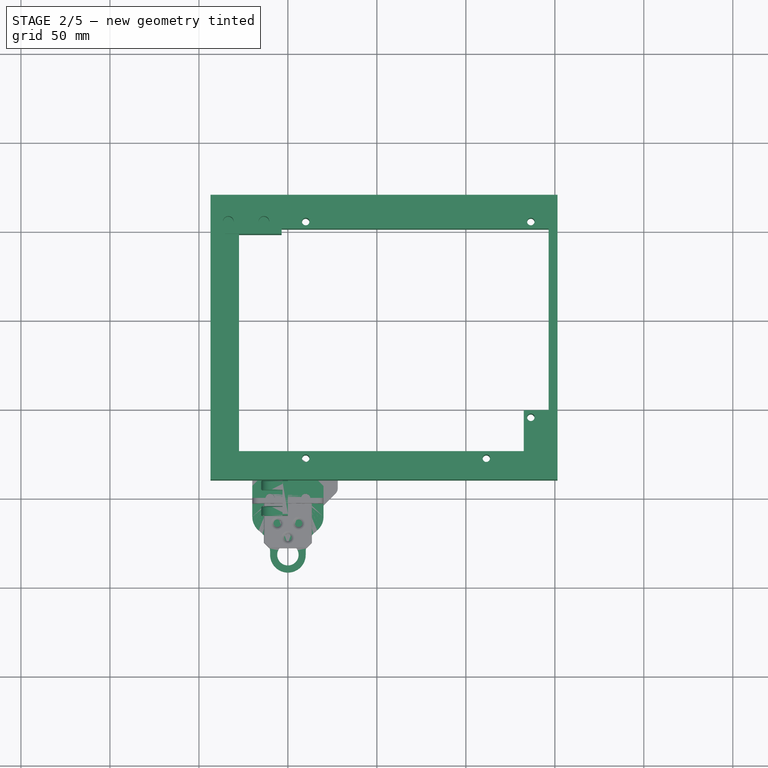
[diagram: stage 2 of 5 — top view after this stage's code; geometry added in this stage tinted green]
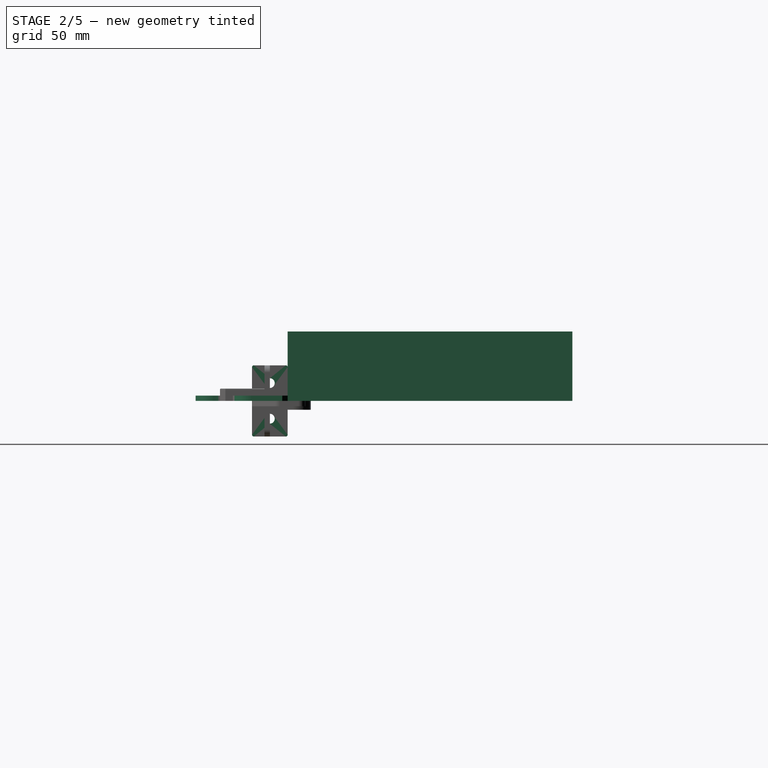
[diagram: stage 2 of 5 — right view after this stage's code; geometry added in this stage tinted green]
FEATURE [Part::Feature] Solid  label="Cross Beam"
  FixShape = 1
  InvalidShape = false
  Placement = pos=(105,0,10) rot=(-0.57735,-0.57735,0.57735;2.0944rad)
  TreeRank = 9
  ValidateShape = false
  shape: bbox 212 x 20 x 40 mm, 165 faces (baked)
FEATURE [Part::Feature] Solid001  label="Y-Rail"
  FixShape = 1
  InvalidShape = false
  Placement = pos=(-33.5,179,49) rot=(0.57735,-0.57735,0.57735;2.0944rad)
  TreeRank = 10
  ValidateShape = false
  shape: bbox 40 x 291.5 x 20 mm, 162 faces (baked)
FEATURE [Part::Feature] Solid002  label="50x60 Plate"
  FixShape = 1
  InvalidShape = false
  Placement = pos=(105,10,20) rot=(-1,0,0;1.5708rad)
  TreeRank = 11
  ValidateShape = false
  shape: bbox 50 x 3 x 60 mm, 19 faces (baked)
FEATURE [Part::Feature] Solid003  label="Ender 2 Pro Power Supply"
  FixShape = 1
  InvalidShape = false
  Placement = pos=(-0.5,-60,-3.7) rot=(0,0,1;0rad)
  TreeRank = 12
  ValidateShape = false
  shape: bbox 217 x 100 x 42.7 mm, 6 faces (baked)
FEATURE [Part::Feature] Solid004  label="Z-rail"
  FixShape = 1
  InvalidShape = false
  Placement = pos=(95,6.84e-14,40) rot=(0,0,-1;1.5708rad)
  TreeRank = 13
  ValidateShape = false
  shape: bbox 40 x 20 x 354 mm, 114 faces (baked)
FEATURE [Part::Feature] Solid005  label="SOLID"
  FixShape = 1
  InvalidShape = false
  TreeRank = 14
  ValidateShape = false
  shape: bbox 47 x 42.2 x 55.5 mm, 159 faces (baked)
FEATURE [App::Part] Part  label="BJ42D15-26V"
  ClaimAllChildren = false
  ExportMode = 1
  Group = -> [Solid005]
  Origin = -> Origin
  Placement = pos=(85,-31.6,43) rot=(0,0,1;0rad)
  TreeRank = 16
  _ExportChildren = -> [Solid005]
  _GroupVersion = 1
FEATURE [Part::Feature] Solid006  label="SOLID"
  FixShape = 1
  InvalidShape = false
  TreeRank = 29
  ValidateShape = false
  shape: bbox 295.5 x 8 x 8 mm, 268 faces (baked)
FEATURE [Part::Feature] Compound  label="COMPOUND"
  FixShape = 1
  InvalidShape = false
  TreeRank = 30
  ValidateShape = false
  shape: bbox 320 x 8.026 x 8.026 mm, 0 faces, 0 solids (baked)
FEATURE [App::Part] Part001  label="Lead Screw TR8x8 300mm"
  ClaimAllChildren = false
  ExportMode = 1
  Group = -> [Solid006,Compound]
  Origin = -> Origin001
  Placement = pos=(85,-31.6,98.5) rot=(0,1,0;1.5708rad)
  TreeRank = 32
  _ExportChildren = -> [Solid006,Compound]
  _GroupVersion = 1
FEATURE [Part::Feature] Solid007  label="Z Endstop Bracket"
  FixShape = 1
  InvalidShape = false
  TreeRank = 33
  ValidateShape = false
  shape: bbox 29.1 x 32 x 10 mm, 15 faces (baked)
FEATURE [Part::Feature] Solid008  label="SOLID"
  FixShape = 1
  InvalidShape = false
  TreeRank = 34
  ValidateShape = false
  shape: bbox 20 x 24 x 9.3 mm, 139 faces (baked)
FEATURE [App::Part] Part002  label="Z Endstop Board"
  ClaimAllChildren = false
  ExportMode = 1
  Group = -> [Solid008]
  Origin = -> Origin002
  Placement = pos=(-16.7887,-22.5,5) rot=(0,0,1;0rad)
  TreeRank = 36
  _ExportChildren = -> [Solid008]
  _GroupVersion = 1
FEATURE [App::Part] Part003  label="Z Endstop"
  ClaimAllChildren = false
  ExportMode = 1
  Group = -> [Solid007,Part002]
  Origin = -> Origin003
  Placement = pos=(105,-7,48.3) rot=(0.57735,-0.57735,0.57735;4.18879rad)
  TreeRank = 38
  _ExportChildren = -> [Solid007,Part002]
  _GroupVersion = 1
FEATURE [Part::Feature] Solid009  label="Ender 2 Pro Case"
  FixShape = 1
  InvalidShape = false
  Placement = pos=(-1,80.4,39) rot=(1,0,0;3.14159rad)
  TreeRank = 39
  ValidateShape = false
  shape: bbox 250.4 x 180.4 x 54.9 mm, 530 faces (baked)
FEATURE [Part::Feature] Solid010  label="Ender 2 Pro Case Cover"
  FixShape = 1
  InvalidShape = false
  Placement = pos=(-0.3,89.8,-6) rot=(0,0,1;0rad)
  TreeRank = 40
  ValidateShape = false
  shape: bbox 214.1 x 158.5 x 31.7 mm, 402 faces (baked)
FEATURE [Part::Feature] Solid011  label="Ender 2 Pro Screen Simplified"
  FixShape = 1
  InvalidShape = false
  Placement = pos=(162.127,116.308,36.6574) rot=(-0.995518,-0.090912,0.026069;0.560891rad)
  TreeRank = 51
  ValidateShape = false
  shape: bbox 113.1 x 121.2 x 89.46 mm, 131 faces (baked)
FEATURE [Part::Feature] Solid012  label="Ender 2 Pro X Profile"
  FixShape = 1
  InvalidShape = false
  Placement = pos=(0,0,0) rot=(-0.707107,0,0.707107;3.14159rad)
  TreeRank = 52
  ValidateShape = false
  shape: bbox 260 x 20 x 20 mm, 98 faces (baked)
FEATURE [Part::Feature] Solid013  label="X Motor Gantry"
  FixShape = 1
  InvalidShape = false
  Placement = pos=(47.2,-12.6,-9.99e-14) rot=(-1,0,0;1.5708rad)
  TreeRank = 53
  ValidateShape = false
  shape: bbox 133.2 x 2.6 x 94 mm, 31 faces (baked)
FEATURE [Part::Feature] Solid014  label="Creality Mechanical Endstop V2.0 Board"
  FixShape = 1
  InvalidShape = false
  TreeRank = 54
  ValidateShape = false
  shape: bbox 20.3 x 20.3 x 1.6 mm, 10 faces (baked)
FEATURE [Part::Feature] Compound001  label="KW12 Switch"
  FixShape = 1
  InvalidShape = false
  Placement = pos=(0.25,-6.46,1.6) rot=(1,0,0;3.14159rad)
  TreeRank = 55
  ValidateShape = false
  shape: bbox 22.24 x 17.74 x 6.34 mm, 63 faces, 6 solids (baked)
FEATURE [Part::Feature] Solid015  label="CWF-xRB"
  FixShape = 1
  InvalidShape = false
  Placement = pos=(2.5,8.15,1.6) rot=(0,0,1;3.14159rad)
  TreeRank = 56
  ValidateShape = false
  shape: bbox 9.9 x 7.62 x 9.25 mm, 113 faces (baked)
FEATURE [App::Part] Part004  label="Ceality Mechanical Endstop V2.0"
  ClaimAllChildren = false
  ExportMode = 1
  Group = -> [Solid014,Compound001,Solid015]
  Origin = -> Origin004
  Placement = pos=(10.65,10.3,-8.75e-14) rot=(0.57735,0.57735,0.57735;4.18879rad)
  TreeRank = 58
  _ExportChildren = -> [Solid014,Compound001,Solid015]
  _GroupVersion = 1
FEATURE [Part::Feature] Solid016  label="Z Carriage"
  FixShape = 1
  InvalidShape = false
  Placement = pos=(2.4,-40.2,-6.06e-14) rot=(1,0,0;1.5708rad)
  TreeRank = 59
  ValidateShape = false
  shape: bbox 96.2 x 67 x 95.03 mm, 69 faces (baked)
FEATURE [App::Link] Link  label="BJ42D15-26V"
  AutoLinkLabel = true
  AutoPlacement = true
  LinkPlacement = pos=(24.95,-44.9,-8.88e-14) rot=(-1,0,0;1.5708rad)
  LinkedObject = -> Part
  Placement = pos=(24.95,-44.9,-8.88e-14) rot=(-1,0,0;1.5708rad)
  SyncGroupVisibility = false
  TreeRank = 60
  _LinkVersion = 1
FEATURE [Part::Feature] Compound002  label="625pillow"
  FixShape = 1
  InvalidShape = false
  Placement = pos=(17.3311,-3.97203,21.1) rot=(0,-1,0;1.5708rad)
  TreeRank = 88
  ValidateShape = false
  shape: bbox 17.32 x 17.32 x 5 mm, 209 faces, 14 solids (baked)
FEATURE [Part::Feature] Solid017  label="M5 washer1"
  FixShape = 1
  InvalidShape = false
  Placement = pos=(17.3311,-3.97203,23.6) rot=(0,0,1;0rad)
  TreeRank = 89
  ValidateShape = false
  shape: bbox 10 x 10 x 1 mm, 4 faces (baked)
FEATURE [Part::Feature] Solid018  label="Rollers"
  FixShape = 1
  InvalidShape = false
  Placement = pos=(1.83108,31.528,37.55) rot=(0,0,1;0rad)
  TreeRank = 90
  ValidateShape = false
  shape: bbox 24.1 x 24.1 x 10.2 mm, 14 faces (baked)
FEATURE [App::Link] Link001  label="625pillow"
  AutoLinkLabel = true
  AutoPlacement = true
  LinkPlacement = pos=(17.3311,-3.97203,27.1) rot=(0,1,0;1.5708rad)
  LinkedObject = -> Compound002
  Placement = pos=(17.3311,-3.97203,27.1) rot=(0,1,0;1.5708rad)
  SyncGroupVisibility = false
  TreeRank = 91
  _LinkVersion = 1
FEATURE [App::Part] Part005  label="V Wheel Component"
  ClaimAllChildren = false
  ExportMode = 1
  Group = -> [Compound002,Solid017,Solid018,Link001]
  Origin = -> Origin005
  Placement = pos=(-8.13108,-50.5,32.028) rot=(-1,0,0;1.5708rad)
  TreeRank = 93
  _ExportChildren = -> [Compound002,Solid017,Solid018,Link001]
  _GroupVersion = 1
FEATURE [App::Link] Link002  label="625pillow"
  AutoLinkLabel = true
  AutoPlacement = true
  LinkPlacement = pos=(17.3311,-3.97203,21.1) rot=(0,-1,0;1.5708rad)
  LinkedObject = -> Compound002
  Placement = pos=(17.3311,-3.97203,21.1) rot=(0,-1,0;1.5708rad)
  SyncGroupVisibility = false
  TreeRank = 94
  _LinkVersion = 1
FEATURE [App::Link] Link003  label="M5 washer1"
  AutoLinkLabel = true
  AutoPlacement = true
  LinkPlacement = pos=(17.3311,-3.97203,23.6) rot=(0,0,1;0rad)
  LinkedObject = -> Solid017
  Placement = pos=(17.3311,-3.97203,23.6) rot=(0,0,1;0rad)
  SyncGroupVisibility = false
  TreeRank = 95
  _LinkVersion = 1
FEATURE [App::Link] Link004  label="Rollers"
  AutoLinkLabel = true
  AutoPlacement = true
  LinkPlacement = pos=(1.83108,31.528,37.55) rot=(0,0,1;0rad)
  LinkedObject = -> Solid018
  Placement = pos=(1.83108,31.528,37.55) rot=(0,0,1;0rad)
  SyncGroupVisibility = false
  TreeRank = 96
  _LinkVersion = 1
FEATURE [App::Link] Link005  label="625pillow"
  AutoLinkLabel = true
  AutoPlacement = true
  LinkPlacement = pos=(17.3311,-3.97203,27.1) rot=(0,1,0;1.5708rad)
  LinkedObject = -> Compound002
  Placement = pos=(17.3311,-3.97203,27.1) rot=(0,1,0;1.5708rad)
  SyncGroupVisibility = false
  TreeRank = 97
  _LinkVersion = 1
FEATURE [App::Part] Part006  label="V Wheel Component"
  ClaimAllChildren = false
  ExportMode = 1
  Group = -> [Link002,Link003,Link004,Link005]
  Origin = -> Origin006
  Placement = pos=(-68.3311,-50.5,-3.97203) rot=(-1,0,0;1.5708rad)
  TreeRank = 99
  _ExportChildren = -> [Link002,Link003,Link004,Link005]
  _GroupVersion = 1
FEATURE [App::Link] Link006  label="V Wheel Component"
  AutoLinkLabel = true
  AutoPlacement = true
  LinkPlacement = pos=(-8.13108,-50.5,-39.972) rot=(-1,0,0;1.5708rad)
  LinkedObject = -> Part006
  Placement = pos=(-8.13108,-50.5,-39.972) rot=(-1,0,0;1.5708rad)
  SyncGroupVisibility = false
  TreeRank = 100
  _LinkVersion = 1
FEATURE [Part::Feature] Compound003  label="E housing 2"
  FixShape = 1
  InvalidShape = false
  Placement = pos=(-53.0786,-31.9326,46.5467) rot=(0,0,-1;0.393095rad)
  TreeRank = 101
  ValidateShape = false
  shape: bbox 42 x 42 x 15.38 mm, 702 faces, 2 solids (baked)
FEATURE [Part::Feature] Solid019  label="Ender 2 Pro Printhead Carriage"
  FixShape = 1
  InvalidShape = false
  Placement = pos=(-111.38,13.8,9.4) rot=(-1,0,0;1.5708rad)
  TreeRank = 102
  ValidateShape = false
  shape: bbox 61 x 28.4 x 63.9 mm, 72 faces (baked)
FEATURE [App::Link] Link007  label="V Wheel Component"
  AutoLinkLabel = true
  AutoPlacement = true
  LinkPlacement = pos=(-110.212,-23.8642,16.028) rot=(-1,0,0;1.5708rad)
  LinkedObject = -> Part006
  Placement = pos=(-110.212,-23.8642,16.028) rot=(-1,0,0;1.5708rad)
  SyncGroupVisibility = false
  TreeRank = 103
  _LinkVersion = 1
FEATURE [App::Link] Link008  label="V Wheel Component"
  AutoLinkLabel = true
  AutoPlacement = true
  LinkPlacement = pos=(-147.212,24.1,23.972) rot=(1,0,0;1.5708rad)
  LinkedObject = -> Part006
  Placement = pos=(-147.212,24.1,23.972) rot=(1,0,0;1.5708rad)
  SyncGroupVisibility = false
  TreeRank = 104
  _LinkVersion = 1
FEATURE [App::Link] Link009  label="V Wheel Component"
  AutoLinkLabel = true
  AutoPlacement = true
  LinkPlacement = pos=(-128.212,24.1,-16.028) rot=(1,0,0;1.5708rad)
  LinkedObject = -> Part006
  Placement = pos=(-128.212,24.1,-16.028) rot=(1,0,0;1.5708rad)
  SyncGroupVisibility = false
  TreeRank = 105
  _LinkVersion = 1
FEATURE [Part::Feature] Solid020  label="X limit switch bracket"
  FixShape = 1
  InvalidShape = false
  Placement = pos=(24.95,24,-9.24e-14) rot=(0.57735,-0.57735,0.57735;2.0944rad)
  TreeRank = 106
  ValidateShape = false
  shape: bbox 42.82 x 34 x 42.82 mm, 203 faces (baked)
FEATURE [Part::Feature] Solid021  label="Ender 2 Pro Y Carriage"
  FixShape = 1
  InvalidShape = false
  TreeRank = 109
  ValidateShape = false
  shape: bbox 135 x 135 x 3 mm, 66 faces (baked)
FEATURE [Part::Feature] Solid022  label="Ender 2 Pro Heated Plate"
  FixShape = 1
  InvalidShape = false
  Placement = pos=(0.1,10,26) rot=(0,0,-1;1.5708rad)
  TreeRank = 110
  ValidateShape = false
  shape: bbox 165 x 165 x 3 mm, 18 faces (baked)
FEATURE [App::Link] Link010  label="V Wheel Component"
  AutoLinkLabel = true
  AutoPlacement = true
  LinkPlacement = pos=(47.71,-14.1396,-37.9) rot=(0,0,1;3.55702rad)
  LinkedObject = -> Part006
  Placement = pos=(47.71,-14.1396,-37.9) rot=(0,0,1;3.55702rad)
  SyncGroupVisibility = false
  TreeRank = 111
  _LinkVersion = 1
FEATURE [App::Link] Link011  label="V Wheel Component"
  AutoLinkLabel = true
  AutoPlacement = true
  LinkPlacement = pos=(-47.5811,-13.528,-37.9) rot=(0,0,1;0rad)
  LinkedObject = -> Part006
  Placement = pos=(-47.5811,-13.528,-37.9) rot=(0,0,1;0rad)
  SyncGroupVisibility = false
  TreeRank = 112
  _LinkVersion = 1
FEATURE [App::Link] Link012  label="V Wheel Component"
  AutoLinkLabel = true
  AutoPlacement = true
  LinkPlacement = pos=(-47.5811,34.472,-37.9) rot=(0,0,1;0rad)
  LinkedObject = -> Part006
  Placement = pos=(-47.5811,34.472,-37.9) rot=(0,0,1;0rad)
  SyncGroupVisibility = false
  TreeRank = 113
  _LinkVersion = 1
FEATURE [App::Link] Link013  label="V Wheel Component"
  AutoLinkLabel = true
  AutoPlacement = true
  LinkPlacement = pos=(12.9189,34.472,-37.9) rot=(0,0,1;0rad)
  LinkedObject = -> Part006
  Placement = pos=(12.9189,34.472,-37.9) rot=(0,0,1;0rad)
  SyncGroupVisibility = false
  TreeRank = 114
  _LinkVersion = 1
FEATURE [Part::Feature] Solid023  label="Hexagon socket button head screw ISO 7380-1 - М4 x 16"
  FixShape = 1
  InvalidShape = false
  Placement = pos=(-32.5,-63.5,3) rot=(0,1,0;1.5708rad)
  TreeRank = 133
  ValidateShape = false
  shape: bbox 7.6 x 7.6 x 18.2 mm, 14 faces (baked)
FEATURE [App::Part] Part008  label="Ender 2 Pro Bed"
  ClaimAllChildren = false
  ExportMode = 1
  Group = -> [Solid021,Solid022,Link010,Link011,Link012,Link013,Solid023]
  Origin = -> Origin008
  Placement = pos=(-23.5,17.2567,62.8) rot=(0,0,1;0rad)
  TreeRank = 135
  _ExportChildren = -> [Solid021,Solid022,Link010,Link011,Link012,Link013,Solid023]
  _GroupVersion = 1
FEATURE [Part::Feature] Solid024  label="Ender 2 Pro Y Motor Mount"
  FixShape = 1
  InvalidShape = false
  Placement = pos=(-26.75,-133.5,33.7) rot=(0,0,1;3.14159rad)
  TreeRank = 136
  ValidateShape = false
  shape: bbox 67.5 x 56.2 x 42 mm, 129 faces (baked)
FEATURE [App::Link] Link014  label="Ceality Mechanical Endstop V2.0"
  AutoLinkLabel = true
  AutoPlacement = true
  LinkPlacement = pos=(-59.5,-121.25,48.5) rot=(0,0,1;3.14159rad)
  LinkedObject = -> Part004
  Placement = pos=(-59.5,-121.25,48.5) rot=(0,0,1;3.14159rad)
  SyncGroupVisibility = false
  TreeRank = 137
  _LinkVersion = 1
FEATURE [App::Link] Link015  label="BJ42D15-26V"
  AutoLinkLabel = true
  AutoPlacement = true
  LinkPlacement = pos=(26.9,-133.5,54.7) rot=(-0.707107,0,0.707107;3.14159rad)
  LinkedObject = -> Part
  Placement = pos=(26.9,-133.5,54.7) rot=(-0.707107,0,0.707107;3.14159rad)
  SyncGroupVisibility = false
  TreeRank = 138
  _LinkVersion = 1
FEATURE [Part::Feature] Solid025  label="PCB"
  FixShape = 1
  InvalidShape = false
  Placement = pos=(3.3547,32.8473,-0.8) rot=(0,0,1;0rad)
  TreeRank = 139
  ValidateShape = false
  shape: bbox 100.9 x 70.5 x 1.6 mm, 11 faces (baked)
FEATURE [Part::Feature] Solid026  label="shield"
  FixShape = 1
  InvalidShape = false
  TreeRank = 140
  ValidateShape = false
  shape: bbox 5.843 x 7.772 x 3.4 mm, 350 faces (baked)
FEATURE [Part::Feature] Solid027  label="socket_housing"
  FixShape = 1
  InvalidShape = false
  TreeRank = 141
  ValidateShape = false
  shape: bbox 4.233 x 6.85 x 2.15 mm, 338 faces (baked)
FEATURE [Part::Feature] Solid028  label="socket_plate"
  FixShape = 1
  InvalidShape = false
  TreeRank = 142
  ValidateShape = false
  shape: bbox 3.38 x 6.8 x 0.31 mm, 84 faces (baked)
FEATURE [Part::Feature] Solid029  label="terminal"
  FixShape = 1
  InvalidShape = false
  TreeRank = 143
  ValidateShape = false
  shape: bbox 3.22 x 0.35 x 1.72 mm, 36 faces (baked)
FEATURE [App::Link] Link016  label="terminal"
  AutoLinkLabel = true
  AutoPlacement = true
  LinkPlacement = pos=(-8.9e-15,-1.3,6e-16) rot=(0,0,1;0rad)
  LinkedObject = -> Solid029
  Placement = pos=(-8.9e-15,-1.3,6e-16) rot=(0,0,1;0rad)
  SyncGroupVisibility = false
  TreeRank = 144
  _LinkVersion = 1
FEATURE [App::Link] Link017  label="terminal"
  AutoLinkLabel = true
  AutoPlacement = true
  LinkPlacement = pos=(-8.9e-15,-0.65,6e-16) rot=(0,0,1;0rad)
  LinkedObject = -> Solid029
  Placement = pos=(-8.9e-15,-0.65,6e-16) rot=(0,0,1;0rad)
  SyncGroupVisibility = false
  TreeRank = 145
  _LinkVersion = 1
FEATURE [App::Link] Link018  label="terminal"
  AutoLinkLabel = true
  AutoPlacement = true
  LinkPlacement = pos=(-8.9e-15,0.65,6e-16) rot=(0,0,1;0rad)
  LinkedObject = -> Solid029
  Placement = pos=(-8.9e-15,0.65,6e-16) rot=(0,0,1;0rad)
  SyncGroupVisibility = false
  TreeRank = 146
  _LinkVersion = 1
FEATURE [App::Link] Link019  label="terminal"
  AutoLinkLabel = true
  AutoPlacement = true
  LinkPlacement = pos=(-8.9e-15,1.3,6e-16) rot=(0,0,1;0rad)
  LinkedObject = -> Solid029
  Placement = pos=(-8.9e-15,1.3,6e-16) rot=(0,0,1;0rad)
  SyncGroupVisibility = false
  TreeRank = 147
  _LinkVersion = 1
FEATURE [App::Part] Part009  label="micro_usb_connector v17 v1"
  ClaimAllChildren = false
  ExportMode = 1
  Group = -> [Solid026,Solid027,Solid028,Solid029,Link016,Link017,Link018,Link019]
  Origin = -> Origin009
  Placement = pos=(51.2047,42.2473,0.800007) rot=(0,0,1;0rad)
  TreeRank = 149
  _ExportChildren = -> [Solid026,Solid027,Solid028,Solid029,Link016,Link017,Link018,Link019]
  _GroupVersion = 1
FEATURE [Part::Feature] Compound004  label="5mm male connector v4 v1"
  FixShape = 1
  InvalidShape = false
  Placement = pos=(46.4547,35.8088,0.17) rot=(0,0,1;3.14159rad)
  TreeRank = 150
  ValidateShape = false
  shape: bbox 10.16 x 5.08 x 7.5 mm, 129 faces, 5 solids (baked)
FEATURE [Part::Feature] Solid030  label="10 pin male socket v2"
  FixShape = 1
  InvalidShape = false
  Placement = pos=(23.7146,-11.8932,0.8) rot=(0.57735,-0.57735,-0.57735;2.0944rad)
  TreeRank = 167
  ValidateShape = false
  shape: bbox 9 x 20.25 x 12.5 mm, 122 faces (baked)
FEATURE [Part::Feature] Solid031  label="JST XH 5 v3"
  FixShape = 1
  InvalidShape = false
  Placement = pos=(36.6047,10.4723,0.8) rot=(0,0.707107,0.707107;3.14159rad)
  TreeRank = 168
  ValidateShape = false
  shape: bbox 14.94 x 5.75 x 10.45 mm, 118 faces (baked)
FEATURE [Part::Feature] Compound005  label="2 pole terminal block v7 v7"
  FixShape = 1
  InvalidShape = false
  Placement = pos=(-41.2015,6.60684,6.14239) rot=(0.57735,-0.57735,-0.57735;2.0944rad)
  TreeRank = 169
  ValidateShape = false
  shape: bbox 9 x 10.8 x 17.25 mm, 46 faces, 3 solids (baked)
FEATURE [Part::Feature] Compound006  label="PCB fuse 10 amp V2 v3"
  FixShape = 1
  InvalidShape = false
  Placement = pos=(-39.5953,16.8973,0.8) rot=(0,0,1;0rad)
  TreeRank = 170
  ValidateShape = false
  shape: bbox 15 x 5 x 17.15 mm, 114 faces, 2 solids (baked)
FEATURE [Part::Feature] Solid032  label="Komponente58"
  FixShape = 1
  InvalidShape = false
  Placement = pos=(91.7325,167.087,-5.8) rot=(0,0,1;0rad)
  TreeRank = 171
  ValidateShape = false
  shape: bbox 9.637 x 9.5 x 1.3 mm, 6 faces (baked)
FEATURE [Part::Feature] Solid033  label="Case (1) (2)"
  FixShape = 1
  InvalidShape = false
  Placement = pos=(38.5,-16,-2e-14) rot=(0.57735,0.57735,0.57735;2.0944rad)
  TreeRank = 172
  ValidateShape = false
  shape: bbox 7.6 x 10.61 x 10 mm, 91 faces (baked)
FEATURE [Part::Feature] Solid034  label="Screw (1) (2)"
  FixShape = 1
  InvalidShape = false
  Placement = pos=(35.14,-13.5,3.88) rot=(0.458842,0.628277,0.628277;2.28123rad)
  TreeRank = 173
  ValidateShape = false
  shape: bbox 3.479 x 3.479 x 5.65 mm, 15 faces (baked)
FEATURE [Part::Feature] Solid035  label="Terminal (1) (2)"
  FixShape = 1
  InvalidShape = false
  Placement = pos=(32.9,-15.45,0.874) rot=(0.57735,0.57735,0.57735;2.0944rad)
  TreeRank = 174
  ValidateShape = false
  shape: bbox 4.48 x 3.9 x 9.8 mm, 26 faces (baked)
FEATURE [Part::Feature] Solid036  label="Spring (1) (2)"
  FixShape = 1
  InvalidShape = false
  Placement = pos=(37.5,-14.865,3.774) rot=(0.57735,0.57735,0.57735;2.0944rad)
  TreeRank = 175
  ValidateShape = false
  shape: bbox 5.759 x 2.73 x 2.2 mm, 19 faces (baked)
FEATURE [App::Link] Link020  label="Screw (1) (2)"
  AutoLinkLabel = true
  AutoPlacement = true
  LinkPlacement = pos=(35.14,-8.5,3.88) rot=(0.409516,0.645096,0.645096;2.36423rad)
  LinkedObject = -> Solid034
  Placement = pos=(35.14,-8.5,3.88) rot=(0.409516,0.645096,0.645096;2.36423rad)
  SyncGroupVisibility = false
  TreeRank = 176
  _LinkVersion = 1
FEATURE [App::Link] Link021  label="Terminal (1) (2)"
  AutoLinkLabel = true
  AutoPlacement = true
  LinkPlacement = pos=(32.9,-10.45,0.874) rot=(0.57735,0.57735,0.57735;2.0944rad)
  LinkedObject = -> Solid035
  Placement = pos=(32.9,-10.45,0.874) rot=(0.57735,0.57735,0.57735;2.0944rad)
  SyncGroupVisibility = false
  TreeRank = 177
  _LinkVersion = 1
FEATURE [App::Link] Link022  label="Spring (1) (2)"
  AutoLinkLabel = true
  AutoPlacement = true
  LinkPlacement = pos=(37.5,-9.865,3.774) rot=(0.57735,0.57735,0.57735;2.0944rad)
  LinkedObject = -> Solid036
  Placement = pos=(37.5,-9.865,3.774) rot=(0.57735,0.57735,0.57735;2.0944rad)
  SyncGroupVisibility = false
  TreeRank = 178
  _LinkVersion = 1
FEATURE [App::Part] Part010  label="DG306-5 v2 (1) (2)"
  ClaimAllChildren = false
  ExportMode = 1
  Group = -> [Solid033,Solid034,Solid035,Solid036,Link020,Link021,Link022]
  Origin = -> Origin010
  Placement = pos=(-17.0953,36.0973,0.8) rot=(0,0,-1;1.5708rad)
  TreeRank = 180
  _ExportChildren = -> [Solid033,Solid034,Solid035,Solid036,Link020,Link021,Link022]
  _GroupVersion = 1
FEATURE [App::Link] Link023  label="DG306-5 v2 (1) (2)"
  AutoLinkLabel = true
  AutoPlacement = true
  LinkPlacement = pos=(-7.0953,36.0973,0.8) rot=(0,0,-1;1.5708rad)
  LinkedObject = -> Part010
  Placement = pos=(-7.0953,36.0973,0.8) rot=(0,0,-1;1.5708rad)
  SyncGroupVisibility = false
  TreeRank = 181
  _LinkVersion = 1
FEATURE [App::Link] Link024  label="DG306-5 v2 (1) (2)"
  AutoLinkLabel = true
  AutoPlacement = true
  LinkPlacement = pos=(2.9047,36.0973,0.8) rot=(0,0,-1;1.5708rad)
  LinkedObject = -> Part010
  Placement = pos=(2.9047,36.0973,0.8) rot=(0,0,-1;1.5708rad)
  SyncGroupVisibility = false
  TreeRank = 182
  _LinkVersion = 1
FEATURE [Part::Feature] Solid037  label="JST XH 4 v3 (1) (3)"
  FixShape = 1
  InvalidShape = false
  Placement = pos=(-36.4953,65.2223,0.8) rot=(0,0.707107,0.707107;3.14159rad)
  TreeRank = 216
  ValidateShape = false
  shape: bbox 12.4 x 5.75 x 10.45 mm, 100 faces (baked)
FEATURE [Part::Feature] Compound007  label="100uF 35V 6.3x7.7mm SMD Aluminum v3"
  FixShape = 1
  InvalidShape = false
  Placement = pos=(-42.6953,56.4138,1.8) rot=(1,0,0;1.5708rad)
  TreeRank = 217
  ValidateShape = false
  shape: bbox 7.982 x 7.982 x 7.751 mm, 343 faces, 4 solids (baked)
FEATURE [Part::Feature] Solid038  label="Komponente68"
  FixShape = 1
  InvalidShape = false
  Placement = pos=(97.3942,163.972,-5.8) rot=(0,0,1;0rad)
  TreeRank = 218
  ValidateShape = false
  shape: bbox 3.81 x 4.706 x 2.1 mm, 6 faces (baked)
FEATURE [Part::Feature] Solid039  label="LV8729 Heatsink"
  FixShape = 1
  InvalidShape = false
  Placement = pos=(-34.9453,43.634,2.75) rot=(0,0,1;1.5708rad)
  TreeRank = 219
  ValidateShape = false
  shape: bbox 9.3 x 9.98 x 6 mm, 22 faces (baked)
FEATURE [Part::Feature] Solid040  label="Komponente77"
  FixShape = 1
  InvalidShape = false
  Placement = pos=(92.2967,164.407,-6.58) rot=(0,0,1;0rad)
  TreeRank = 220
  ValidateShape = false
  shape: bbox 3 x 3 x 1 mm, 16 faces (baked)
FEATURE [App::Link] Link025  label="JST XH 4 v3 (1) (3)"
  AutoLinkLabel = true
  AutoPlacement = true
  LinkPlacement = pos=(-15.4953,65.2223,0.8) rot=(0,0.707107,0.707107;3.14159rad)
  LinkedObject = -> Solid037
  Placement = pos=(-15.4953,65.2223,0.8) rot=(0,0.707107,0.707107;3.14159rad)
  SyncGroupVisibility = false
  TreeRank = 221
  _LinkVersion = 1
FEATURE [App::Link] Link026  label="100uF 35V 6.3x7.7mm SMD Aluminum v3"
  AutoLinkLabel = true
  AutoPlacement = true
  LinkPlacement = pos=(-21.6953,56.4138,1.8) rot=(1,0,0;1.5708rad)
  LinkedObject = -> Compound007
  Placement = pos=(-21.6953,56.4138,1.8) rot=(1,0,0;1.5708rad)
  SyncGroupVisibility = false
  TreeRank = 222
  _LinkVersion = 1
FEATURE [App::Link] Link027  label="Komponente68"
  AutoLinkLabel = true
  AutoPlacement = true
  LinkPlacement = pos=(118.394,163.972,-5.8) rot=(0,0,1;0rad)
  LinkedObject = -> Solid038
  Placement = pos=(118.394,163.972,-5.8) rot=(0,0,1;0rad)
  SyncGroupVisibility = false
  TreeRank = 223
  _LinkVersion = 1
FEATURE [App::Link] Link028  label="LV8729 Heatsink"
  AutoLinkLabel = true
  AutoPlacement = true
  LinkPlacement = pos=(-13.9453,43.634,2.75) rot=(0,0,1;1.5708rad)
  LinkedObject = -> Solid039
  Placement = pos=(-13.9453,43.634,2.75) rot=(0,0,1;1.5708rad)
  SyncGroupVisibility = false
  TreeRank = 224
  _LinkVersion = 1
FEATURE [App::Link] Link029  label="Komponente77"
  AutoLinkLabel = true
  AutoPlacement = true
  LinkPlacement = pos=(113.297,164.407,-6.58) rot=(0,0,1;0rad)
  LinkedObject = -> Solid040
  Placement = pos=(113.297,164.407,-6.58) rot=(0,0,1;0rad)
  SyncGroupVisibility = false
  TreeRank = 225
  _LinkVersion = 1
FEATURE [App::Link] Link030  label="JST XH 4 v3 (1) (3)"
  AutoLinkLabel = true
  AutoPlacement = true
  LinkPlacement = pos=(5.5047,65.2223,0.8) rot=(0,0.707107,0.707107;3.14159rad)
  LinkedObject = -> Solid037
  Placement = pos=(5.5047,65.2223,0.8) rot=(0,0.707107,0.707107;3.14159rad)
  SyncGroupVisibility = false
  TreeRank = 226
  _LinkVersion = 1
FEATURE [App::Link] Link031  label="100uF 35V 6.3x7.7mm SMD Aluminum v3"
  AutoLinkLabel = true
  AutoPlacement = true
  LinkPlacement = pos=(-0.695303,56.4138,1.8) rot=(1,0,0;1.5708rad)
  LinkedObject = -> Compound007
  Placement = pos=(-0.695303,56.4138,1.8) rot=(1,0,0;1.5708rad)
  SyncGroupVisibility = false
  TreeRank = 227
  _LinkVersion = 1
FEATURE [App::Link] Link032  label="Komponente68"
  AutoLinkLabel = true
  AutoPlacement = true
  LinkPlacement = pos=(139.394,163.972,-5.8) rot=(0,0,1;0rad)
  LinkedObject = -> Solid038
  Placement = pos=(139.394,163.972,-5.8) rot=(0,0,1;0rad)
  SyncGroupVisibility = false
  TreeRank = 228
  _LinkVersion = 1
FEATURE [App::Link] Link033  label="LV8729 Heatsink"
  AutoLinkLabel = true
  AutoPlacement = true
  LinkPlacement = pos=(7.0547,43.634,2.75) rot=(0,0,1;1.5708rad)
  LinkedObject = -> Solid039
  Placement = pos=(7.0547,43.634,2.75) rot=(0,0,1;1.5708rad)
  SyncGroupVisibility = false
  TreeRank = 229
  _LinkVersion = 1
FEATURE [App::Link] Link034  label="Komponente77"
  AutoLinkLabel = true
  AutoPlacement = true
  LinkPlacement = pos=(134.297,164.407,-6.58) rot=(0,0,1;0rad)
  LinkedObject = -> Solid040
  Placement = pos=(134.297,164.407,-6.58) rot=(0,0,1;0rad)
  SyncGroupVisibility = false
  TreeRank = 230
  _LinkVersion = 1
FEATURE [App::Link] Link035  label="JST XH 4 v3 (1) (3)"
  AutoLinkLabel = true
  AutoPlacement = true
  LinkPlacement = pos=(26.5047,65.2223,0.8) rot=(0,0.707107,0.707107;3.14159rad)
  LinkedObject = -> Solid037
  Placement = pos=(26.5047,65.2223,0.8) rot=(0,0.707107,0.707107;3.14159rad)
  SyncGroupVisibility = false
  TreeRank = 231
  _LinkVersion = 1
FEATURE [App::Link] Link036  label="100uF 35V 6.3x7.7mm SMD Aluminum v3"
  AutoLinkLabel = true
  AutoPlacement = true
  LinkPlacement = pos=(20.3047,56.4138,1.8) rot=(1,0,0;1.5708rad)
  LinkedObject = -> Compound007
  Placement = pos=(20.3047,56.4138,1.8) rot=(1,0,0;1.5708rad)
  SyncGroupVisibility = false
  TreeRank = 232
  _LinkVersion = 1
FEATURE [App::Link] Link037  label="Komponente68"
  AutoLinkLabel = true
  AutoPlacement = true
  LinkPlacement = pos=(160.394,163.972,-5.8) rot=(0,0,1;0rad)
  LinkedObject = -> Solid038
  Placement = pos=(160.394,163.972,-5.8) rot=(0,0,1;0rad)
  SyncGroupVisibility = false
  TreeRank = 233
  _LinkVersion = 1
FEATURE [App::Link] Link038  label="LV8729 Heatsink"
  AutoLinkLabel = true
  AutoPlacement = true
  LinkPlacement = pos=(28.0547,43.634,2.75) rot=(0,0,1;1.5708rad)
  LinkedObject = -> Solid039
  Placement = pos=(28.0547,43.634,2.75) rot=(0,0,1;1.5708rad)
  SyncGroupVisibility = false
  TreeRank = 234
  _LinkVersion = 1
FEATURE [App::Link] Link039  label="Komponente77"
  AutoLinkLabel = true
  AutoPlacement = true
  LinkPlacement = pos=(155.297,164.407,-6.58) rot=(0,0,1;0rad)
  LinkedObject = -> Solid040
  Placement = pos=(155.297,164.407,-6.58) rot=(0,0,1;0rad)
  SyncGroupVisibility = false
  TreeRank = 235
  _LinkVersion = 1
FEATURE [Part::Feature] Solid041  label="JST XH 2 v3"
  FixShape = 1
  InvalidShape = false
  Placement = pos=(43.8047,0.472342,0.8) rot=(0,0.707107,0.707107;3.14159rad)
  TreeRank = 236
  ValidateShape = false
  shape: bbox 7.4 x 5.75 x 10.45 mm, 58 faces (baked)
FEATURE [App::Link] Link040  label="JST XH 2 v3"
  AutoLinkLabel = true
  AutoPlacement = true
  LinkPlacement = pos=(35.9047,0.472342,0.8) rot=(0,0.707107,0.707107;3.14159rad)
  LinkedObject = -> Solid041
  Placement = pos=(35.9047,0.472342,0.8) rot=(0,0.707107,0.707107;3.14159rad)
  SyncGroupVisibility = false
  TreeRank = 237
  _LinkVersion = 1
FEATURE [App::Link] Link041  label="JST XH 2 v3"
  AutoLinkLabel = true
  AutoPlacement = true
  LinkPlacement = pos=(28.1047,0.472342,0.8) rot=(0,0.707107,0.707107;3.14159rad)
  LinkedObject = -> Solid041
  Placement = pos=(28.1047,0.472342,0.8) rot=(0,0.707107,0.707107;3.14159rad)
  SyncGroupVisibility = false
  TreeRank = 238
  _LinkVersion = 1
FEATURE [App::Link] Link042  label="JST XH 2 v3"
  AutoLinkLabel = true
  AutoPlacement = true
  LinkPlacement = pos=(20.3047,0.472342,0.8) rot=(0,0.707107,0.707107;3.14159rad)
  LinkedObject = -> Solid041
  Placement = pos=(20.3047,0.472342,0.8) rot=(0,0.707107,0.707107;3.14159rad)
  SyncGroupVisibility = false
  TreeRank = 239
  _LinkVersion = 1
FEATURE [App::Link] Link043  label="JST XH 2 v3"
  AutoLinkLabel = true
  AutoPlacement = true
  LinkPlacement = pos=(12.5047,0.472342,0.8) rot=(0,0.707107,0.707107;3.14159rad)
  LinkedObject = -> Solid041
  Placement = pos=(12.5047,0.472342,0.8) rot=(0,0.707107,0.707107;3.14159rad)
  SyncGroupVisibility = false
  TreeRank = 240
  _LinkVersion = 1
FEATURE [Part::Feature] Solid042  label="JST XH 3 v3 (1) (2) (8)"
  FixShape = 1
  InvalidShape = false
  Placement = pos=(3.4547,0.472342,0.8) rot=(0,0.707107,0.707107;3.14159rad)
  TreeRank = 241
  ValidateShape = false
  shape: bbox 9.9 x 5.75 x 10.45 mm, 82 faces (baked)
FEATURE [Part::Feature] Solid043  label="JST XH 2 v3 (6)"
  FixShape = 1
  InvalidShape = false
  Placement = pos=(2.8547,9.22234,0.8) rot=(0,0.707107,0.707107;3.14159rad)
  TreeRank = 242
  ValidateShape = false
  shape: bbox 7.4 x 5.75 x 10.45 mm, 58 faces (baked)
FEATURE [App::Link] Link044  label="JST XH 2 v3 (6)"
  AutoLinkLabel = true
  AutoPlacement = true
  LinkPlacement = pos=(2.8547,15.2223,0.8) rot=(0,0.707107,0.707107;3.14159rad)
  LinkedObject = -> Solid043
  Placement = pos=(2.8547,15.2223,0.8) rot=(0,0.707107,0.707107;3.14159rad)
  SyncGroupVisibility = false
  TreeRank = 243
  _LinkVersion = 1
FEATURE [App::Link] Link045  label="100uF 35V 6.3x7.7mm SMD Aluminum v3"
  AutoLinkLabel = true
  AutoPlacement = true
  LinkPlacement = pos=(-42.6953,23.2626,1.8) rot=(1,0,0;1.5708rad)
  LinkedObject = -> Compound007
  Placement = pos=(-42.6953,23.2626,1.8) rot=(1,0,0;1.5708rad)
  SyncGroupVisibility = false
  TreeRank = 244
  _LinkVersion = 1
FEATURE [Part::Feature] Solid044  label="heatsink"
  FixShape = 1
  InvalidShape = false
  Placement = pos=(15.4858,24.1586,0.8) rot=(0,0,1;0rad)
  TreeRank = 245
  ValidateShape = false
  shape: bbox 20 x 13 x 10 mm, 34 faces (baked)
FEATURE [Part::Feature] Compound008  label="SD Card Slot 14.8"
  FixShape = 1
  InvalidShape = false
  Placement = pos=(41.7047,58.6973,0.75) rot=(0,0,1;3.14159rad)
  TreeRank = 246
  ValidateShape = false
  shape: bbox 17.82 x 16.1 x 2.485 mm, 676 faces, 12 solids (baked)
FEATURE [App::Part] Part011  label="Creality 423 Board"
  ClaimAllChildren = false
  ExportMode = 1
  Group = -> [Solid025,Part009,Compound004,Solid030,Solid031,Compound005,Compound006,Solid032,Part010,Link023,Link024,Solid037,Compound007,Solid038,Solid039,Solid040,Link025,Link026,Link027,Link028,Link029,Link030,Link031,Link032,Link033,Link034,Link035,Link036,Link037,Link038,Link039,Solid041,Link040,Link041,Link042,Link043,Solid042,Solid043,Link044,Link045,Solid044,Compound008]
  Origin = -> Origin011
  Placement = pos=(-17.0473,85.4453,31.8) rot=(0.707107,0.707107,0;3.14159rad)
  TreeRank = 248
  _ExportChildren = -> [Solid025,Part009,Compound004,Solid030,Solid031,Compound005,Compound006,Solid032,Part010,Link023,Link024,Solid037,Compound007,Solid038,Solid039,Solid040,Link025,Link026,Link027,Link028,Link029,Link030,Link031,Link032,Link033,Link034,Link035,Link036,Link037,Link038,Link039,Solid041,Link040,Link041,Link042,Link043,Solid042,Solid043,Link044,Link045,Solid044,Compound008]
  _GroupVersion = 1
FEATURE [Part::Feature] Solid045  label="Z motor bracket"
  FixShape = 1
  InvalidShape = false
  Placement = pos=(85,-20,75.3) rot=(0,0,1;0rad)
  TreeRank = 252
  ValidateShape = false
  shape: bbox 42 x 10 x 12 mm, 40 faces (baked)
FEATURE [Sketcher::SketchObject] Sketch003
  ArcFitTolerance = 1e-06
  AttachmentSupport = -> [Solid019]
  ExternalBSplineMaxDegree = 5
  ExternalBSplineTolerance = 0.0001
  FixShape = 1
  FullyConstrained = false
  InternalTolerance = 1e-06
  InvalidShape = false
  MakeInternals = false
  MapMode = 5
  Placement = pos=(-111.38,16.3,9.4) rot=(-1,0,0;1.5708rad)
  Support = -> [Solid019]
  TreeRank = 463
  ValidateShape = false
  sketch-geometry (5):
    g0: LineSegment StartX=-30.2613 StartY=41.3335 StartZ=0 EndX=-30.2613 EndY=-22.7598 EndZ=0
    g1: LineSegment StartX=-30.2613 StartY=-22.7598 StartZ=0 EndX=30.2613 EndY=-22.7598 EndZ=0
    g2: LineSegment StartX=30.2613 StartY=-22.7598 StartZ=0 EndX=30.2613 EndY=41.3335 EndZ=0
    g3: LineSegment StartX=30.2613 StartY=41.3335 StartZ=0 EndX=-30.2613 EndY=41.3335 EndZ=0
    g4: GeomPoint [constr] X=0 Y=9.28685 Z=0
  constraints (10):
    c: Coincident(g0,g1)
    c: Coincident(g1,g2)
    c: Coincident(g2,g3)
    c: Coincident(g3,g0)
    c: Horizontal(g1)
    c: Horizontal(g3)
    c: Vertical(g0)
    c: Vertical(g2)
    c: Symmetric(g1,g0,g4)
    c: PointOnObject(g4,g-2)
FEATURE [PartDesign::Pad] Pad003
  AddSubType = 0
  AlongSketchNormal = false
  AutoTaperInnerAngle = true
  CheckUpToFaceLimits = true
  ClaimChildren = false
  Direction = (2e-16,1,3.3e-15)
  Fit = 0
  FitJoin = 0
  FixShape = 1
  InnerFit = 0
  InnerFitJoin = 0
  InvalidShape = false
  Length = 50
  Length2 = 10
  Linearize = true
  NewSolid = false
  Profile = -> Sketch003
  ReferenceAxis = -> Sketch003 [N_Axis]
  Refine = true
  Suppress = false
  TaperInnerAngle = 0
  TaperInnerAngleRev = 0
  TreeRank = 464
  Type = 0
  ValidateShape = true
  _ProfileBasedVersion = 1
FEATURE [PartDesign::Body] Body003
  AutoGroupSolids = false
  ClaimAllChildren = false
  ExportMode = 0
  FixShape = 1
  Group = -> [Sketch003,Pad003]
  InvalidShape = false
  Origin = -> Origin018
  SingleSolid = true
  Tip = -> Pad003
  TreeRank = 462
  ValidateShape = false
  _ExportChildren = -> [Pad003]
  _GroupVersion = 1
FEATURE [App::Part] Part014  label="Head"
  ClaimAllChildren = false
  ExportMode = 1
  Group = -> [Solid019,Link007,Link008,Link009,Body003]
  Origin = -> Origin017
  TreeRank = 452
  _ExportChildren = -> [Solid019,Link007,Link008,Link009,Body003]
  _GroupVersion = 1
FEATURE [App::Part] Part007  label="X Axis Assembly"
  ClaimAllChildren = false
  ExportMode = 1
  Group = -> [Solid012,Solid013,Part004,Solid016,Link,Part005,Part006,Link006,Compound003,Solid020,Part014]
  Origin = -> Origin007
  Placement = pos=(105.9,26.5,285.083) rot=(0,0,1;0rad)
  TreeRank = 108
  _ExportChildren = -> [Solid012,Solid013,Part004,Solid016,Link,Part005,Part006,Link006,Compound003,Solid020,Part014]
  _GroupVersion = 1
FEATURE [App::Part] Part012  label="Ender2"
  ClaimAllChildren = false
  ExportMode = 1
  Group = -> [Solid,Solid001,Solid002,Solid003,Solid004,Part,Part001,Part003,Solid009,Solid010,Solid011,Part007,Part008,Solid024,Link014,Link015,Solid045,Part011]
  Origin = -> Origin012
  TreeRank = 254
  _ExportChildren = -> [Solid,Solid001,Solid002,Solid003,Solid004,Part,Part001,Part003,Solid009,Solid010,Solid011,Part007,Part008,Solid024,Link014,Link015,Solid045,Part011]
  _GroupVersion = 1
FEATURE [Sketcher::SketchObject] Sketch013
  ArcFitTolerance = 1e-06
  AttachmentSupport = -> [XY_Plane018]
  ExternalBSplineMaxDegree = 5
  ExternalBSplineTolerance = 0.0001
  FixShape = 1
  FullyConstrained = true
  InternalTolerance = 1e-06
  InvalidShape = false
  MakeInternals = false
  MapMode = 5
  Support = -> [XY_Plane018]
  TreeRank = 518
  ValidateShape = false
  sketch-geometry (10):
    g0: LineSegment StartX=142.5 StartY=16 StartZ=0 EndX=-37.5 EndY=16 EndZ=0
    g1: LineSegment StartX=-37.5 StartY=16 StartZ=0 EndX=-37.5 EndY=148 EndZ=0
    g2: LineSegment StartX=-37.5 StartY=148 StartZ=0 EndX=-3.5 EndY=148 EndZ=0
    g3: LineSegment StartX=-3.5 StartY=148 StartZ=0 EndX=-3.5 EndY=161 EndZ=0
    g4: LineSegment StartX=-3.5 StartY=161 StartZ=0 EndX=142.5 EndY=161 EndZ=0
    g5: LineSegment StartX=142.5 StartY=161 StartZ=0 EndX=142.5 EndY=16 EndZ=0
    g6: LineSegment StartX=151.5 StartY=170 StartZ=0 EndX=-43.5 EndY=170 EndZ=0
    g7: LineSegment StartX=-43.5 StartY=170 StartZ=0 EndX=-43.5 EndY=10 EndZ=0
    g8: LineSegment StartX=-43.5 StartY=10 StartZ=0 EndX=151.5 EndY=10 EndZ=0
    g9: LineSegment StartX=151.5 StartY=10 StartZ=0 EndX=151.5 EndY=170 EndZ=0
  constraints (30):
    c: Horizontal(g0)
    c: Coincident(g0,g1)
    c: Vertical(g1)
    c: Coincident(g1,g2)
    c: Horizontal(g2)
    c: Coincident(g2,g3)
    c: Vertical(g3)
    c: Coincident(g3,g4)
    c: Horizontal(g4)
    c: Coincident(g4,g5)
    c: Vertical(g5)
    c: Coincident(g0,g5)
    c: Coincident(g6,g7)
    c: Coincident(g7,g8)
    c: Coincident(g8,g9)
    c: Coincident(g9,g6)
    c: Horizontal(g6)
    c: Horizontal(g8)
    c: Vertical(g7)
    c: Vertical(g9)
    c: DistanceY(g-1,g7) = 10
    c: DistanceX(g7,g-1) = 43.5
    c: DistanceY(g7,g7) = 160
    c: DistanceX(g7,g0) = 6
    c: DistanceY(g7,g0) = 6
    c: DistanceX(g6,g2) = 40
    c: DistanceY(g1,g6) = 22
    c: DistanceX(g6,g6) = 195
    c: DistanceY(g3,g6) = 9
    c: DistanceX(g4,g6) = 9
FEATURE [PartDesign::Pad] Pad006
  AddSubType = 0
  AlongSketchNormal = false
  AutoTaperInnerAngle = true
  CheckUpToFaceLimits = true
  ClaimChildren = false
  Direction = (0,0,1)
  Fit = 0
  FitJoin = 0
  FixShape = 1
  InnerFit = 0
  InnerFitJoin = 0
  InvalidShape = false
  Length = 39
  Length2 = 10
  Linearize = true
  NewSolid = false
  Profile = -> Sketch013
  ReferenceAxis = -> Sketch013 [N_Axis]
  Refine = true
  Suppress = false
  TaperInnerAngle = 0
  TaperInnerAngleRev = 0
  TreeRank = 519
  Type = 0
  ValidateShape = true
  _ProfileBasedVersion = 1
FEATURE [Sketcher::SketchObject] Sketch014
  ArcFitTolerance = 1e-06
  AttachmentSupport = -> [Pad006]
  ExternalBSplineMaxDegree = 5
  ExternalBSplineTolerance = 0.0001
  ExternalGeometry = -> [Pad006]
  FixShape = 1
  FullyConstrained = true
  InternalTolerance = 1e-06
  InvalidShape = false
  MakeInternals = false
  MapMode = 5
  Placement = pos=(0,0,39) rot=(0,0,1;0rad)
  Support = -> [Pad006]
  TreeRank = 520
  ValidateShape = false
  sketch-geometry (8):
    g0: LineSegment StartX=-43.5 StartY=10 StartZ=0 EndX=151.5 EndY=10 EndZ=0
    g1: LineSegment StartX=151.5 StartY=10 StartZ=0 EndX=151.5 EndY=170 EndZ=0
    g2: LineSegment StartX=151.5 StartY=170 StartZ=0 EndX=-43.5 EndY=170 EndZ=0
    g3: LineSegment StartX=-43.5 StartY=170 StartZ=0 EndX=-43.5 EndY=10 EndZ=0
    g4: LineSegment StartX=-27.5 StartY=26 StartZ=0 EndX=132.5 EndY=26 EndZ=0
    g5: LineSegment StartX=132.5 StartY=26 StartZ=0 EndX=132.5 EndY=151 EndZ=0
    g6: LineSegment StartX=132.5 StartY=151 StartZ=0 EndX=-27.5 EndY=151 EndZ=0
    g7: LineSegment StartX=-27.5 StartY=151 StartZ=0 EndX=-27.5 EndY=26 EndZ=0
  constraints (22):
    c: Coincident(g0,g1)
    c: Coincident(g1,g2)
    c: Coincident(g2,g3)
    c: Coincident(g3,g0)
    c: Horizontal(g0)
    c: Horizontal(g2)
    c: Vertical(g1)
    c: Vertical(g3)
    c: Coincident(g0,g-4)
    c: Coincident(g1,g-3)
    c: Coincident(g4,g5)
    c: Coincident(g5,g6)
    c: Coincident(g6,g7)
    c: Coincident(g7,g4)
    c: Horizontal(g4)
    c: Horizontal(g6)
    c: Vertical(g5)
    c: Vertical(g7)
    c: DistanceY(g5,g-5) = 10
    c: DistanceX(g5,g-5) = 10
    c: DistanceY(g-6,g4) = 10
    c: DistanceX(g-6,g4) = 10
FEATURE [PartDesign::Pad] Pad007
  AddSubType = 0
  AlongSketchNormal = false
  AutoTaperInnerAngle = true
  BaseFeature = -> Pad006
  CheckUpToFaceLimits = true
  ClaimChildren = false
  Direction = (0,0,1)
  Fit = 0
  FitJoin = 0
  FixShape = 1
  InnerFit = 0
  InnerFitJoin = 0
  InvalidShape = false
  Length = 14
  Length2 = 10
  Linearize = true
  NewSolid = false
  Profile = -> Sketch014
  ReferenceAxis = -> Sketch014 [N_Axis]
  Refine = true
  Reversed = true
  Suppress = false
  TaperInnerAngle = 0
  TaperInnerAngleRev = 0
  TreeRank = 521
  Type = 3
  UpToFace = -> Pad006 [Face11]
  ValidateShape = true
  _ProfileBasedVersion = 1
FEATURE [Sketcher::SketchObject] Sketch015
  ArcFitTolerance = 1e-06
  AttachmentSupport = -> [Pad007]
  ExternalBSplineMaxDegree = 5
  ExternalBSplineTolerance = 0.0001
  ExternalGeometry = -> [Pad007]
  FixShape = 1
  FullyConstrained = true
  InternalTolerance = 1e-06
  InvalidShape = false
  MakeInternals = false
  MapMode = 5
  Placement = pos=(0,0,39) rot=(0,0,1;0rad)
  Support = -> [Pad007]
  TreeRank = 522
  ValidateShape = false
  sketch-geometry (2):
    g0: Circle CenterX=-33.5 CenterY=155 CenterZ=0 NormalX=0 NormalY=0 NormalZ=1 AngleXU=0 Radius=3
    g1: Circle CenterX=-13.5 CenterY=155 CenterZ=0 NormalX=0 NormalY=0 NormalZ=1 AngleXU=0 Radius=3
  constraints (6):
    c: Horizontal(g1,g0)
    c: DistanceX(g0,g1) = 20
    c: DistanceX(g-3,g0) = 10
    c: Equal(g1,g0)
    c: Diameter(g1) = 6
    c: DistanceY(g0,g-3) = 15
FEATURE [PartDesign::Pocket] Pocket008
  AddSubType = 1
  AlongSketchNormal = false
  AutoTaperInnerAngle = true
  BaseFeature = -> Pad007
  CheckUpToFaceLimits = true
  ClaimChildren = false
  Direction = (0,0,-1)
  Fit = 0
  FitJoin = 0
  FixShape = 1
  InnerFit = 0
  InnerFitJoin = 0
  InvalidShape = false
  Length = 20
  Length2 = 10
  Linearize = true
  NewSolid = false
  Profile = -> Sketch015
  ReferenceAxis = -> Sketch015 [N_Axis]
  Refine = true
  Suppress = false
  TaperInnerAngle = 0
  TaperInnerAngleRev = 0
  TreeRank = 523
  Type = 0
  ValidateShape = true
  _ProfileBasedVersion = 1
  _Version = 1
FEATURE [Sketcher::SketchObject] Sketch016
  ArcFitTolerance = 1e-06
  AttachmentSupport = -> [Pocket008]
  ExternalBSplineMaxDegree = 5
  ExternalBSplineTolerance = 0.0001
  ExternalGeometry = -> [Pocket008]
  FixShape = 1
  FullyConstrained = true
  InternalTolerance = 1e-06
  InvalidShape = false
  MakeInternals = false
  MapMode = 5
  Placement = pos=(0,0,39) rot=(0,0,1;0rad)
  Support = -> [Pocket008]
  TreeRank = 524
  ValidateShape = false
  sketch-geometry (8):
    g0: LineSegment [constr] StartX=-35.5 StartY=159 StartZ=0 EndX=-35.5 EndY=18 EndZ=0
    g1: LineSegment StartX=-35.5 StartY=18 StartZ=0 EndX=140.5 EndY=18 EndZ=0
    g2: LineSegment StartX=140.5 StartY=18 StartZ=0 EndX=140.5 EndY=159 EndZ=0
    g3: LineSegment [constr] StartX=140.5 StartY=159 StartZ=0 EndX=-35.5 EndY=159 EndZ=0
    g4: LineSegment StartX=140.5 StartY=159 StartZ=0 EndX=-3.5 EndY=159 EndZ=0
    g5: LineSegment StartX=-3.5 StartY=159 StartZ=0 EndX=-3.5 EndY=148 EndZ=0
    g6: LineSegment StartX=-3.5 StartY=148 StartZ=0 EndX=-35.5 EndY=148 EndZ=0
    g7: LineSegment StartX=-35.5 StartY=148 StartZ=0 EndX=-35.5 EndY=18 EndZ=0
  constraints (22):
    c: Vertical(g0)
    c: Coincident(g0,g1)
    c: Horizontal(g1)
    c: Coincident(g1,g2)
    c: Vertical(g2)
    c: Coincident(g2,g3)
    c: Horizontal(g3)
    c: Coincident(g3,g0)
    c: DistanceY(g-3,g2) = 8
    c: DistanceX(g-3,g2) = 8
    c: DistanceY(g1,g-4) = 8
    c: DistanceX(g0,g-4) = 8
    c: Coincident(g4,g2)
    c: PointOnObject(g4,g3)
    c: Coincident(g5,g4)
    c: Vertical(g5)
    c: Coincident(g6,g5)
    c: PointOnObject(g6,g0)
    c: Horizontal(g6)
    c: Coincident(g7,g6)
    c: Coincident(g7,g1)
    c: Coincident(g-5,g5)
FEATURE [PartDesign::Pocket] Pocket009
  AddSubType = 1
  AlongSketchNormal = false
  AutoTaperInnerAngle = true
  BaseFeature = -> Pocket008
  CheckUpToFaceLimits = true
  ClaimChildren = false
  Direction = (0,0,-1)
  Fit = 0
  FitJoin = 0
  FixShape = 1
  InnerFit = 0
  InnerFitJoin = 0
  InvalidShape = false
  Length = 3.2
  Length2 = 10
  Linearize = true
  NewSolid = false
  Profile = -> Sketch016
  ReferenceAxis = -> Sketch016 [N_Axis]
  Refine = true
  Suppress = false
  TaperInnerAngle = 0
  TaperInnerAngleRev = 0
  TreeRank = 525
  Type = 0
  ValidateShape = true
  _ProfileBasedVersion = 1
  _Version = 1
FEATURE [Sketcher::SketchObject] Sketch017
  ArcFitTolerance = 1e-06
  AttachmentSupport = -> [Pocket009]
  ExternalBSplineMaxDegree = 5
  ExternalBSplineTolerance = 0.0001
  ExternalGeometry = -> [Pocket009]
  FixShape = 1
  FullyConstrained = true
  InternalTolerance = 1e-06
  InvalidShape = false
  MakeInternals = false
  MapMode = 5
  Placement = pos=(0,0,39) rot=(0,0,1;0rad)
  Support = -> [Pocket009]
  TreeRank = 526
  ValidateShape = false
  sketch-geometry (4):
    g0: LineSegment StartX=140.5 StartY=159 StartZ=0 EndX=151.5 EndY=159 EndZ=0
    g1: LineSegment StartX=151.5 StartY=159 StartZ=0 EndX=151.5 EndY=49 EndZ=0
    g2: LineSegment StartX=151.5 StartY=49 StartZ=0 EndX=140.5 EndY=49 EndZ=0
    g3: LineSegment StartX=140.5 StartY=49 StartZ=0 EndX=140.5 EndY=159 EndZ=0
  constraints (11):
    c: Coincident(g0,g1)
    c: Coincident(g1,g2)
    c: Coincident(g2,g3)
    c: Coincident(g3,g0)
    c: Horizontal(g0)
    c: Horizontal(g2)
    c: Vertical(g1)
    c: Vertical(g3)
    c: DistanceY(g3,g3) = 110
    c: PointOnObject(g0,g-4)
    c: Coincident(g0,g-3)
FEATURE [PartDesign::Pocket] Pocket010
  AddSubType = 1
  AlongSketchNormal = false
  AutoTaperInnerAngle = true
  BaseFeature = -> Pocket009
  CheckUpToFaceLimits = true
  ClaimChildren = false
  Direction = (0,0,-1)
  Fit = 0
  FitJoin = 0
  FixShape = 1
  InnerFit = 0
  InnerFitJoin = 0
  InvalidShape = false
  Length = 0
  Length2 = 10
  Linearize = true
  NewSolid = false
  Profile = -> Sketch017
  ReferenceAxis = -> Sketch017 [N_Axis]
  Refine = true
  Suppress = false
  TaperInnerAngle = 0
  TaperInnerAngleRev = 0
  TreeRank = 527
  Type = 3
  UpToFace = -> Pocket009 [Face17]
  ValidateShape = true
  _ProfileBasedVersion = 1
  _Version = 1
FEATURE [Sketcher::SketchObject] Sketch018
  ArcFitTolerance = 1e-06
  AttachmentSupport = -> [Pocket010]
  ExternalBSplineMaxDegree = 5
  ExternalBSplineTolerance = 0.0001
  ExternalGeometry = -> [Pocket010]
  FixShape = 1
  FullyConstrained = true
  InternalTolerance = 1e-06
  InvalidShape = false
  MakeInternals = false
  MapMode = 5
  Placement = pos=(0,0,35.8) rot=(0,0,1;0rad)
  Support = -> [Pocket010]
  TreeRank = 528
  ValidateShape = false
  sketch-geometry (4):
    g0: LineSegment StartX=132.5 StartY=151 StartZ=0 EndX=146.5 EndY=151 EndZ=0
    g1: LineSegment StartX=146.5 StartY=151 StartZ=0 EndX=146.5 EndY=49 EndZ=0
    g2: LineSegment StartX=146.5 StartY=49 StartZ=0 EndX=132.5 EndY=49 EndZ=0
    g3: LineSegment StartX=132.5 StartY=49 StartZ=0 EndX=132.5 EndY=151 EndZ=0
  constraints (11):
    c: Coincident(g0,g1)
    c: Coincident(g1,g2)
    c: Coincident(g2,g3)
    c: Coincident(g3,g0)
    c: Horizontal(g0)
    c: Horizontal(g2)
    c: Vertical(g1)
    c: Vertical(g3)
    c: Coincident(g0,g-3)
    c: DistanceX(g0,g0) = 14
    c: PointOnObject(g1,g-4)
FEATURE [PartDesign::Pocket] Pocket011
  AddSubType = 1
  AlongSketchNormal = false
  AutoTaperInnerAngle = true
  BaseFeature = -> Pocket010
  CheckUpToFaceLimits = true
  ClaimChildren = false
  Direction = (0,0,-1)
  Fit = 0
  FitJoin = 0
  FixShape = 1
  InnerFit = 0
  InnerFitJoin = 0
  InvalidShape = false
  Length = 5
  Length2 = 10
  Linearize = true
  NewSolid = false
  Profile = -> Sketch018
  ReferenceAxis = -> Sketch018 [N_Axis]
  Refine = true
  Suppress = false
  TaperInnerAngle = 0
  TaperInnerAngleRev = 0
  TreeRank = 529
  Type = 1
  ValidateShape = true
  _ProfileBasedVersion = 1
  _Version = 1
FEATURE [Sketcher::SketchObject] Sketch019
  ArcFitTolerance = 1e-06
  AttachmentSupport = -> [Pocket011]
  ExternalBSplineMaxDegree = 5
  ExternalBSplineTolerance = 0.0001
  ExternalGeometry = -> [Pocket011]
  FixShape = 1
  FullyConstrained = true
  InternalTolerance = 1e-06
  InvalidShape = false
  MakeInternals = false
  MapMode = 5
  Placement = pos=(0,0,35.8) rot=(0,0,1;0rad)
  Support = -> [Pocket011]
  TreeRank = 530
  ValidateShape = false
  sketch-geometry (10):
    g0: LineSegment [constr] StartX=10 StartY=155 StartZ=0 EndX=136.5 EndY=155 EndZ=0
    g1: LineSegment [constr] StartX=136.5 StartY=155 StartZ=0 EndX=136.5 EndY=22 EndZ=0
    g2: LineSegment [constr] StartX=136.5 StartY=22 StartZ=0 EndX=10 EndY=22 EndZ=0
    g3: LineSegment [constr] StartX=10 StartY=22 StartZ=0 EndX=10 EndY=155 EndZ=0
    g4: Circle CenterX=10 CenterY=155 CenterZ=0 NormalX=0 NormalY=0 NormalZ=1 AngleXU=0 Radius=2.1
    g5: Circle CenterX=136.5 CenterY=155 CenterZ=0 NormalX=0 NormalY=0 NormalZ=1 AngleXU=0 Radius=2.1
    g6: Circle [constr] CenterX=136.5 CenterY=22 CenterZ=0 NormalX=0 NormalY=0 NormalZ=1 AngleXU=0 Radius=2.1
    g7: Circle CenterX=10 CenterY=22 CenterZ=0 NormalX=0 NormalY=0 NormalZ=1 AngleXU=0 Radius=2.1
    g8: Circle CenterX=136.5 CenterY=45 CenterZ=0 NormalX=0 NormalY=0 NormalZ=1 AngleXU=0 Radius=2.1
    g9: Circle CenterX=111.5 CenterY=22 CenterZ=0 NormalX=0 NormalY=0 NormalZ=1 AngleXU=0 Radius=2.1
  constraints (26):
    c: Coincident(g0,g1)
    c: Coincident(g1,g2)
    c: Coincident(g2,g3)
    c: Coincident(g3,g0)
    c: Horizontal(g0)
    c: Horizontal(g2)
    c: Vertical(g1)
    c: Vertical(g3)
    c: Coincident(g4,g0)
    c: Coincident(g5,g0)
    c: Coincident(g6,g1)
    c: Coincident(g7,g2)
    c: Equal(g7,g4)
    c: Equal(g7,g5)
    c: Equal(g7,g6)
    c: Diameter(g7) = 4.2
    c: DistanceY(g6,g-4) = 4
    c: DistanceY(g-3,g5) = 4
    c: DistanceX(g-4,g6) = 4
    c: DistanceX(g-1,g4) = 10
    c: PointOnObject(g8,g1)
    c: Equal(g8,g6)
    c: DistanceY(g8,g-5) = 4
    c: PointOnObject(g9,g2)
    c: DistanceX(g9,g1) = 25
    c: Equal(g9,g6)
FEATURE [PartDesign::Pocket] Pocket012
  AddSubType = 1
  AlongSketchNormal = false
  AutoTaperInnerAngle = true
  BaseFeature = -> Pocket011
  CheckUpToFaceLimits = true
  ClaimChildren = false
  Direction = (0,0,-1)
  Fit = 0
  FitJoin = 0
  FixShape = 1
  InnerFit = 0
  InnerFitJoin = 0
  InvalidShape = false
  Length = 8
  Length2 = 10
  Linearize = true
  NewSolid = false
  Profile = -> Sketch019
  ReferenceAxis = -> Sketch019 [N_Axis]
  Refine = true
  Suppress = false
  TaperInnerAngle = 0
  TaperInnerAngleRev = 0
  TreeRank = 533
  Type = 1
  ValidateShape = true
  _ProfileBasedVersion = 1
  _Version = 1
FEATURE [PartDesign::Body] Body009  label="Facade"
  AutoGroupSolids = false
  ClaimAllChildren = false
  ExportMode = 0
  FixShape = 1
  Group = -> [Binder004,Pad016,Sketch053,Pad017,Sketch054,Import002,Pocket039,Binder005,Sketch055,Pocket040,Sketch056,Pocket041,Fillet009]
  InvalidShape = false
  Origin = -> Origin027
  SingleSolid = true
  Tip = -> Fillet009
  TreeRank = 710
  ValidateShape = false
  _ExportChildren = -> [Pad016,Pad017,Import002,Pocket039,Binder005,Pocket040,Pocket041,Fillet009]
  _GroupVersion = 1
FEATURE [TechDraw::DrawSVGTemplate] Template002
  Height = 210
  Orientation = 1
  Template = <path>
  TreeRank = 726
  Width = 297
FEATURE [TechDraw::DrawProjGroupItem] ProjItem002  label="Front002"
  CoarseView = false
  Direction = (0,1,0)
  Focus = 100
  HardHidden = false
  IsoCount = 0
  IsoHidden = false
  IsoVisible = false
  LockPosition = true
  Perspective = false
  Rotation = 0
  RotationVector = (-1,0,0)
  ScaleType = 2
  ScrubCount = 0
  SeamHidden = false
  SeamVisible = false
  SmoothHidden = false
  SmoothVisible = false
  Source = -> [Fillet009]
  TreeRank = 729
  Type = 0
  X = 0
  XDirection = (-1,0,0)
  Y = 0
FEATURE [TechDraw::DrawProjGroup] ProjGroup002
  Anchor = -> ProjItem002
  AutoDistribute = true
  LockPosition = false
  ProjectionType = 0
  Rotation = 0
  ScaleType = 0
  Source = -> [Fillet009]
  TreeRank = 730
  Views = -> [ProjItem002]
  X = 51.2534
  Y = 189.368
  spacingX = 15
  spacingY = 15
FEATURE [TechDraw::DrawPage] Page002  label="Laser3mm-Facade"
  KeepUpdated = true
  NextBalloonIndex = 1
  ProjectionType = 0
  Template = -> Template002
  TreeRank = 727
  Views = -> [ProjGroup002]
FEATURE [Sketcher::SketchObject] Sketch057
  ArcFitTolerance = 1e-06
  AttachmentSupport = -> [YZ_Plane024]
  ExternalBSplineMaxDegree = 5
  ExternalBSplineTolerance = 0.0001
  FixShape = 1
  FullyConstrained = true
  InternalTolerance = 1e-06
  InvalidShape = false
  MakeInternals = false
  MapMode = 5
  Placement = pos=(0,0,0) rot=(0.57735,0.57735,0.57735;2.0944rad)
  Support = -> [YZ_Plane024]
  TreeRank = 741
  ValidateShape = false
  sketch-geometry (7):
    g0: LineSegment StartX=-10 StartY=-20 StartZ=0 EndX=-10 EndY=20 EndZ=0
    g1: LineSegment StartX=-10 StartY=20 StartZ=0 EndX=10 EndY=20 EndZ=0
    g2: LineSegment StartX=10 StartY=20 StartZ=0 EndX=10 EndY=-20 EndZ=0
    g3: LineSegment StartX=10 StartY=-20 StartZ=0 EndX=-10 EndY=-20 EndZ=0
    g4: GeomPoint [constr] X=0 Y=0 Z=0
    g5: Circle CenterX=0 CenterY=10 CenterZ=0 NormalX=0 NormalY=0 NormalZ=1 AngleXU=0 Radius=2.75
    g6: Circle CenterX=0 CenterY=-10 CenterZ=0 NormalX=0 NormalY=0 NormalZ=1 AngleXU=0 Radius=2.75
  constraints (17):
    c: Coincident(g0,g1)
    c: Coincident(g1,g2)
    c: Coincident(g2,g3)
    c: Coincident(g3,g0)
    c: Horizontal(g1)
    c: Horizontal(g3)
    c: Vertical(g0)
    c: Vertical(g2)
    c: Symmetric(g1,g0,g4)
    c: DistanceX(g1,g1) = 20
    c: Coincident(g4,g-1)
    c: DistanceY(g2,g2) = 40
    c: PointOnObject(g5,g-2)
    c: Equal(g6,g5)
    c: Diameter(g6) = 5.5
    c: Symmetric(g5,g6,g4)
    c: DistanceY(g6,g5) = 20
FEATURE [PartDesign::Pad] Pad018
  AddSubType = 0
  AlongSketchNormal = false
  AutoTaperInnerAngle = true
  CheckUpToFaceLimits = true
  ClaimChildren = false
  Direction = (1,-2e-16,3e-16)
  Fit = 0
  FitJoin = 0
  FixShape = 1
  InnerFit = 0
  InnerFitJoin = 0
  InvalidShape = false
  Length = 3
  Length2 = 10
  Linearize = true
  NewSolid = false
  Profile = -> Sketch057
  ReferenceAxis = -> Sketch057 [N_Axis]
  Refine = true
  Reversed = true
  Suppress = false
  TaperInnerAngle = 0
  TaperInnerAngleRev = 0
  TreeRank = 742
  Type = 0
  ValidateShape = true
  _ProfileBasedVersion = 1
FEATURE [PartDesign::Fillet] Fillet010
  AddSubType = 0
  Base = -> Pad018 [Edge2,Edge1,Edge5,Edge8]
  BaseFeature = -> Pad018
  FixShape = 1
  InvalidShape = false
  NewSolid = false
  Radius = 1
  Refine = true
  SupportTransform = false
  Suppress = false
  TreeRank = 743
  UseAllEdges = false
  ValidateShape = true
FEATURE [PartDesign::Body] Body010  label="CacheProfile"
  AutoGroupSolids = false
  ClaimAllChildren = false
  ExportMode = 0
  FixShape = 1
  Group = -> [Sketch057,Pad018,Fillet010]
  InvalidShape = false
  Origin = -> Origin028
  Placement = pos=(-107,0,20) rot=(0,0,1;0rad)
  SingleSolid = true
  Tip = -> Fillet010
  TreeRank = 740
  ValidateShape = false
  _ExportChildren = -> [Pad018,Fillet010]
  _GroupVersion = 1
FEATURE [TechDraw::DrawSVGTemplate] Template003
  Height = 210
  Orientation = 1
  Template = <path>
  TreeRank = 745
  Width = 297
FEATURE [TechDraw::DrawProjGroupItem] ProjItem003  label="Front003"
  CoarseView = false
  Direction = (-1,0,0)
  Focus = 100
  HardHidden = false
  IsoCount = 0
  IsoHidden = false
  IsoVisible = false
  LockPosition = true
  Perspective = false
  Rotation = 0
  RotationVector = (0,-1,0)
  ScaleType = 2
  ScrubCount = 0
  SeamHidden = false
  SeamVisible = false
  SmoothHidden = false
  SmoothVisible = false
  Source = -> [Fillet010]
  TreeRank = 748
  Type = 0
  X = 0
  XDirection = (0,-1,0)
  Y = 0
FEATURE [TechDraw::DrawProjGroup] ProjGroup003
  Anchor = -> ProjItem003
  AutoDistribute = true
  LockPosition = false
  ProjectionType = 0
  Rotation = 0
  ScaleType = 0
  Source = -> [Fillet010]
  TreeRank = 749
  Views = -> [ProjItem003]
  X = 11.6617
  Y = 188.484
  spacingX = 15
  spacingY = 15
FEATURE [TechDraw::DrawPage] Page003  label="Laser3mm-CacheProfile"
  KeepUpdated = true
  NextBalloonIndex = 1
  ProjectionType = 0
  Template = -> Template003
  TreeRank = 746
  Views = -> [ProjGroup003]
FEATURE [Sketcher::SketchObject] Sketch058
  ArcFitTolerance = 1e-06
  AttachmentSupport = -> [XY_Plane025]
  ExternalBSplineMaxDegree = 5
  ExternalBSplineTolerance = 0.0001
  FixShape = 1
  FullyConstrained = true
  InternalTolerance = 1e-06
  InvalidShape = false
  MakeInternals = false
  MapMode = 5
  Support = -> [XY_Plane025]
  TreeRank = 760
  ValidateShape = false
  sketch-geometry (17):
    g0: LineSegment StartX=-20 StartY=-10 StartZ=0 EndX=-20 EndY=10 EndZ=0
    g1: LineSegment StartX=-20 StartY=10 StartZ=0 EndX=20 EndY=10 EndZ=0
    g2: LineSegment StartX=20 StartY=10 StartZ=0 EndX=20 EndY=-10 EndZ=0
    g3: LineSegment [constr] StartX=20 StartY=-10 StartZ=0 EndX=-20 EndY=-10 EndZ=0
    g4: GeomPoint [constr] X=0 Y=0 Z=0
    g5: Circle CenterX=0 CenterY=-31.7 CenterZ=0 NormalX=0 NormalY=0 NormalZ=1 AngleXU=0 Radius=6
    g6: ArcOfCircle CenterX=0 CenterY=-31.7 CenterZ=0 NormalX=0 NormalY=0 NormalZ=1 AngleXU=0 Radius=10 StartAngle=3.14159 EndAngle=6.28319
    g7: LineSegment StartX=-20 StartY=-10 StartZ=0 EndX=-20 EndY=-15 EndZ=0
    g8: LineSegment StartX=20 StartY=-10 StartZ=0 EndX=20 EndY=-15 EndZ=0
    g9: ArcOfCircle CenterX=25 CenterY=-30.3856 CenterZ=0 NormalX=0 NormalY=0 NormalZ=1 AngleXU=0 Radius=15 StartAngle=2.26893 EndAngle=3.14159
    g10: ArcOfCircle CenterX=-25 CenterY=-30.3856 CenterZ=0 NormalX=0 NormalY=0 NormalZ=1 AngleXU=0 Radius=15 StartAngle=0 EndAngle=0.872665
    g11: LineSegment StartX=-10 StartY=-30.3856 StartZ=0 EndX=-10 EndY=-31.7 EndZ=0
    g12: LineSegment StartX=10 StartY=-30.3856 StartZ=0 EndX=10 EndY=-31.7 EndZ=0
    g13: LineSegment StartX=15.3582 StartY=-18.8949 StartZ=0 EndX=20 EndY=-15 EndZ=0
    g14: LineSegment StartX=-15.3582 StartY=-18.8949 StartZ=0 EndX=-20 EndY=-15 EndZ=0
    g15: Circle CenterX=-10 CenterY=0 CenterZ=0 NormalX=0 NormalY=0 NormalZ=1 AngleXU=0 Radius=2.6
    g16: Circle CenterX=10 CenterY=0 CenterZ=0 NormalX=0 NormalY=0 NormalZ=1 AngleXU=0 Radius=2.6
  constraints (42):
    c: Coincident(g0,g1)
    c: Coincident(g1,g2)
    c: Coincident(g2,g3)
    c: Coincident(g3,g0)
    c: Horizontal(g1)
    c: Horizontal(g3)
    c: Vertical(g0)
    c: Vertical(g2)
    c: Symmetric(g1,g0,g4)
    c: Coincident(g4,g-1)
    c: DistanceY(g2,g2) = 20
    c: DistanceX(g1,g1) = 40
    c: PointOnObject(g5,g-2)
    c: Diameter(g5) = 12
    c: DistanceY(g5,g4) = 31.7
    c: Coincident(g6,g5)
    c: Coincident(g7,g0)
    c: Vertical(g7)
    c: Coincident(g8,g2)
    c: Vertical(g8)
    c: Coincident(g13,g8)
    c: Coincident(g14,g7)
    c: Tangent(g14,g10) = -1.5708
    c: Tangent(g11,g10) = 1.5708
    c: Tangent(g13,g9) = 1.5708
    c: Vertical(g12)
    c: Angle(g8,g13) = 2.26893
    c: Vertical(g11)
    c: Angle(g14,g7) = 2.26893
    c: Tangent(g12,g9) = -1.5708
    c: Equal(g8,g7)
    c: Equal(g9,g10)
    c: Tangent(g12,g6) = 1.5708
    c: Tangent(g11,g6) = -1.5708
    c: DistanceY(g8,g8) = 5
    c: DistanceX(g6,g6) = 20
    c: Radius(g9) = 15
    c: PointOnObject(g15,g-1)
    c: Symmetric(g16,g15,g4)
    c: DistanceX(g15,g16) = 20
    c: Equal(g16,g15)
    c: Diameter(g16) = 5.2
FEATURE [PartDesign::Pad] Pad019
  AddSubType = 0
  AlongSketchNormal = false
  AutoTaperInnerAngle = true
  CheckUpToFaceLimits = true
  ClaimChildren = false
  Direction = (0,0,1)
  Fit = 0
  FitJoin = 0
  FixShape = 1
  InnerFit = 0
  InnerFitJoin = 0
  InvalidShape = false
  Length = 3
  Length2 = 10
  Linearize = true
  NewSolid = false
  Profile = -> Sketch058
  ReferenceAxis = -> Sketch058 [N_Axis]
  Refine = true
  Suppress = false
  TaperInnerAngle = 0
  TaperInnerAngleRev = 0
  TreeRank = 772
  Type = 0
  ValidateShape = true
  _ProfileBasedVersion = 1
FEATURE [PartDesign::Fillet] Fillet011
  AddSubType = 0
  Base = -> Pad019 [Edge5,Edge12]
  BaseFeature = -> Pad019
  FixShape = 1
  InvalidShape = false
  NewSolid = false
  Radius = 10
  Refine = true
  SupportTransform = false
  Suppress = false
  TreeRank = 773
  UseAllEdges = false
  ValidateShape = true
FEATURE [PartDesign::Chamfer] Chamfer018
  AddSubType = 0
  Angle = 45
  Base = -> Fillet011 [Edge35,Edge37]
  BaseFeature = -> Fillet011
  ChamferType = 0
  FixShape = 1
  FlipDirection = false
  InvalidShape = false
  NewSolid = false
  Refine = true
  Size = 3
  Size2 = 1
  SupportTransform = false
  Suppress = false
  TreeRank = 774
  UseAllEdges = false
  ValidateShape = true
FEATURE [PartDesign::Chamfer] Chamfer019
  AddSubType = 0
  Angle = 45
  Base = -> Pocket042 [Edge29,Edge31,Edge36,Edge30]
  BaseFeature = -> Pocket042
  ChamferType = 0
  FixShape = 1
  FlipDirection = false
  InvalidShape = false
  NewSolid = false
  Refine = true
  Size = 2
  Size2 = 1
  SupportTransform = false
  Suppress = false
  TreeRank = 795
  UseAllEdges = false
  ValidateShape = true
FEATURE [Sketcher::SketchObject] Sketch061
  ArcFitTolerance = 1e-06
  AttachmentSupport = -> [Chamfer019]
  ExternalBSplineMaxDegree = 5
  ExternalBSplineTolerance = 0.0001
  ExternalGeometry = -> [Chamfer019]
  FixShape = 1
  FullyConstrained = true
  InternalTolerance = 1e-06
  InvalidShape = false
  MakeInternals = false
  MapMode = 5
  Placement = pos=(0,0,0) rot=(0.57735,0.57735,0.57735;2.0944rad)
  Support = -> [Chamfer019]
  TreeRank = 796
  ValidateShape = false
  sketch-geometry (6):
    g0: LineSegment StartX=-10 StartY=3 StartZ=0 EndX=-4.35 EndY=3 EndZ=0
    g1: LineSegment StartX=-4.35 StartY=3 StartZ=0 EndX=-4.1 EndY=2.75 EndZ=0
    g2: LineSegment StartX=-4.1 StartY=2.75 StartZ=0 EndX=-4.1 EndY=-2.75 EndZ=0
    g3: LineSegment StartX=-4.1 StartY=-2.75 StartZ=0 EndX=-4.35 EndY=-3 EndZ=0
    g4: LineSegment StartX=-4.35 StartY=-3 StartZ=0 EndX=-10 EndY=-3 EndZ=0
    g5: LineSegment StartX=-10 StartY=-3 StartZ=0 EndX=-10 EndY=3 EndZ=0
  constraints (16):
    c: PointOnObject(g0,g-3)
    c: Horizontal(g0)
    c: Coincident(g1,g0)
    c: Coincident(g2,g1)
    c: Coincident(g2,g3)
    c: Coincident(g3,g4)
    c: Horizontal(g4)
    c: Coincident(g4,g5)
    c: Coincident(g5,g0)
    c: Symmetric(g0,g4,g-1)
    c: Symmetric(g1,g2,g-1)
    c: DistanceX(g1,g-1) = 4.1
    c: Angle(g1,g2) = 2.35619
    c: DistanceY(g2,g2) = 5.5
    c: Equal(g4,g0)
    c: DistanceY(g5,g5) = 6
FEATURE [PartDesign::Pad] Pad021
  AddSubType = 0
  AlongSketchNormal = false
  AutoTaperInnerAngle = true
  BaseFeature = -> Chamfer019
  CheckUpToFaceLimits = true
  ClaimChildren = false
  Direction = (1,0,0)
  Fit = 0
  FitJoin = 0
  FixShape = 1
  InnerFit = 0
  InnerFitJoin = 0
  InvalidShape = false
  Length = 3
  Length2 = 10
  Linearize = true
  NewSolid = false
  Profile = -> Sketch061
  ReferenceAxis = -> Sketch061 [N_Axis]
  Refine = true
  Suppress = false
  TaperInnerAngle = 0
  TaperInnerAngleRev = 0
  TreeRank = 797
  Type = 0
  ValidateShape = true
  _ProfileBasedVersion = 1
FEATURE [PartDesign::Mirrored] Mirrored001
  AddSubType = 0
  BaseFeature = -> Pad021
  CopyShape = false
  FixShape = 1
  InvalidShape = false
  MirrorPlane = -> Sketch061 [V_Axis]
  NewSolid = false
  OriginalSubs = -> [Pad021]
  Originals = -> [Pad021]
  ParallelTransform = true
  Refine = true
  SubTransform = true
  Suppress = false
  TreeRank = 798
  ValidateShape = true
  _Version = 3
FEATURE [Sketcher::SketchObject] Sketch062
  ArcFitTolerance = 1e-06
  AttachmentSupport = -> [Mirrored001]
  ExternalBSplineMaxDegree = 5
  ExternalBSplineTolerance = 0.0001
  FixShape = 1
  FullyConstrained = true
  InternalTolerance = 1e-06
  InvalidShape = false
  MakeInternals = false
  MapMode = 5
  Placement = pos=(0,0,0) rot=(0.57735,0.57735,0.57735;2.0944rad)
  Support = -> [Mirrored001]
  TreeRank = 799
  ValidateShape = false
  sketch-geometry (1):
    g0: Circle CenterX=0 CenterY=0 CenterZ=0 NormalX=0 NormalY=0 NormalZ=1 AngleXU=0 Radius=2
  constraints (2):
    c: Coincident(g0,g-1)
    c: Diameter(g0) = 4
FEATURE [PartDesign::Pad] Pad022
  AddSubType = 0
  AlongSketchNormal = false
  AutoTaperInnerAngle = true
  BaseFeature = -> Mirrored001
  CheckUpToFaceLimits = true
  ClaimChildren = false
  Direction = (1,0,0)
  Fit = 0
  FitJoin = 0
  FixShape = 1
  InnerFit = 0
  InnerFitJoin = 0
  InvalidShape = false
  Length = 3
  Length2 = 10
  Linearize = true
  NewSolid = false
  Profile = -> Sketch062
  ReferenceAxis = -> Sketch062 [N_Axis]
  Refine = true
  Suppress = false
  TaperInnerAngle = 0
  TaperInnerAngleRev = 0
  TreeRank = 800
  Type = 0
  ValidateShape = true
  _ProfileBasedVersion = 1
FEATURE [PartDesign::Chamfer] Chamfer020
  AddSubType = 0
  Angle = 45
  Base = -> Pad022 [Edge87,Face31,Face30]
  BaseFeature = -> Pad022
  ChamferType = 0
  FixShape = 1
  FlipDirection = false
  InvalidShape = false
  NewSolid = false
  Refine = true
  Size = 0.4
  Size2 = 1
  SupportTransform = false
  Suppress = false
  TreeRank = 801
  UseAllEdges = false
  ValidateShape = true
FEATURE [Sketcher::SketchObject] Sketch063
  ArcFitTolerance = 1e-06
  AttachmentSupport = -> [Chamfer020]
  ExternalBSplineMaxDegree = 5
  ExternalBSplineTolerance = 0.0001
  ExternalGeometry = -> [Chamfer020]
  FixShape = 1
  FullyConstrained = true
  InternalTolerance = 1e-06
  InvalidShape = false
  MakeInternals = false
  MapMode = 5
  Placement = pos=(-3,0,0) rot=(0.57735,-0.57735,-0.57735;2.0944rad)
  Support = -> [Chamfer020]
  TreeRank = 802
  ValidateShape = false
  sketch-geometry (8):
    g0: LineSegment StartX=-10 StartY=10 StartZ=0 EndX=-4.5 EndY=10 EndZ=0
    g1: LineSegment StartX=-4.5 StartY=10 StartZ=0 EndX=-4.5 EndY=-10 EndZ=0
    g2: LineSegment StartX=-4.5 StartY=-10 StartZ=0 EndX=-10 EndY=-10 EndZ=0
    g3: LineSegment StartX=-10 StartY=-10 StartZ=0 EndX=-10 EndY=10 EndZ=0
    g4: LineSegment StartX=10 StartY=10 StartZ=0 EndX=4.5 EndY=10 EndZ=0
    g5: LineSegment StartX=4.5 StartY=10 StartZ=0 EndX=4.5 EndY=-10 EndZ=0
    g6: LineSegment StartX=4.5 StartY=-10 StartZ=0 EndX=10 EndY=-10 EndZ=0
    g7: LineSegment StartX=10 StartY=-10 StartZ=0 EndX=10 EndY=10 EndZ=0
  constraints (18):
    c: Coincident(g0,g1)
    c: Coincident(g1,g2)
    c: Coincident(g2,g3)
    c: Coincident(g3,g0)
    c: Horizontal(g2)
    c: Vertical(g1)
    c: Coincident(g0,g-4)
    c: Coincident(g4,g5)
    c: Coincident(g5,g6)
    c: Coincident(g6,g7)
    c: Coincident(g7,g4)
    c: Horizontal(g6)
    c: Vertical(g5)
    c: Coincident(g4,g-3)
    c: Symmetric(g4,g0,g-2)
    c: Coincident(g6,g-3)
    c: Coincident(g2,g-4)
    c: Coincident(g0,g-5)
FEATURE [PartDesign::Pad] Pad023
  AddSubType = 0
  AlongSketchNormal = false
  AutoTaperInnerAngle = true
  BaseFeature = -> Chamfer020
  CheckUpToFaceLimits = true
  ClaimChildren = false
  Direction = (-1,0,0)
  Fit = 0
  FitJoin = 0
  FixShape = 1
  InnerFit = 0
  InnerFitJoin = 0
  InvalidShape = false
  Length = 12
  Length2 = 10
  Linearize = true
  NewSolid = false
  Profile = -> Sketch063
  ReferenceAxis = -> Sketch063 [N_Axis]
  Refine = true
  Suppress = false
  TaperInnerAngle = 0
  TaperInnerAngleRev = 0
  TreeRank = 803
  Type = 0
  ValidateShape = true
  _ProfileBasedVersion = 1
FEATURE [PartDesign::Fillet] Fillet012
  AddSubType = 0
  Base = -> Pad023 [Edge103,Edge109,Edge106,Edge101]
  BaseFeature = -> Pad023
  FixShape = 1
  InvalidShape = false
  NewSolid = false
  Radius = 6
  Refine = true
  SupportTransform = false
  Suppress = false
  TreeRank = 804
  UseAllEdges = false
  ValidateShape = true
FEATURE [PartDesign::Fillet] Fillet013
  AddSubType = 0
  Base = -> Fillet012 [Edge97,Edge60,Edge94,Edge98,Edge62,Edge58]
  BaseFeature = -> Fillet012
  FixShape = 1
  InvalidShape = false
  NewSolid = false
  Radius = 2
  Refine = true
  SupportTransform = false
  Suppress = false
  TreeRank = 805
  UseAllEdges = false
  ValidateShape = true
FEATURE [Sketcher::SketchObject] Sketch064
  ArcFitTolerance = 1e-06
  AttachmentSupport = -> [XZ_Plane026]
  ExternalBSplineMaxDegree = 5
  ExternalBSplineTolerance = 0.0001
  FixShape = 1
  FullyConstrained = true
  InternalTolerance = 1e-06
  InvalidShape = false
  MakeInternals = false
  MapMode = 5
  Placement = pos=(0,0,0) rot=(1,0,0;1.5708rad)
  Support = -> [XZ_Plane026]
  TreeRank = 806
  ValidateShape = false
  sketch-geometry (1):
    g0: Circle CenterX=-9 CenterY=0 CenterZ=0 NormalX=0 NormalY=0 NormalZ=1 AngleXU=0 Radius=1.6
  constraints (3):
    c: PointOnObject(g0,g-1)
    c: DistanceX(g0,g-1) = 9
    c: Diameter(g0) = 3.2
FEATURE [PartDesign::Pocket] Pocket043
  AddSubType = 1
  AlongSketchNormal = false
  AutoTaperInnerAngle = true
  BaseFeature = -> Fillet013
  CheckUpToFaceLimits = true
  ClaimChildren = false
  Direction = (0,1,-2e-16)
  Fit = 0
  FitJoin = 0
  FixShape = 1
  InnerFit = 0
  InnerFitJoin = 0
  InvalidShape = false
  Length = 5
  Length2 = 10
  Linearize = true
  Midplane = true
  NewSolid = false
  Profile = -> Sketch064
  ReferenceAxis = -> Sketch064 [N_Axis]
  Refine = true
  Suppress = false
  TaperInnerAngle = 0
  TaperInnerAngleRev = 0
  TreeRank = 807
  Type = 1
  ValidateShape = true
  _ProfileBasedVersion = 1
  _Version = 1
FEATURE [PartDesign::Chamfer] Chamfer021
  AddSubType = 0
  Angle = 45
  Base = -> Pocket043 [Edge64]
  BaseFeature = -> Pocket043
  ChamferType = 0
  FixShape = 1
  FlipDirection = false
  InvalidShape = false
  NewSolid = false
  Refine = true
  Size = 2
  Size2 = 1
  SupportTransform = false
  Suppress = false
  TreeRank = 808
  UseAllEdges = false
  ValidateShape = true
FEATURE [Sketcher::SketchObject] Sketch065
  ArcFitTolerance = 1e-06
  AttachmentSupport = -> [Chamfer021]
  ExternalBSplineMaxDegree = 5
  ExternalBSplineTolerance = 0.0001
  ExternalGeometry = -> [Chamfer021]
  FixShape = 1
  FullyConstrained = true
  InternalTolerance = 1e-06
  InvalidShape = false
  MakeInternals = false
  MapMode = 5
  Placement = pos=(0,-10,0) rot=(1,0,0;1.5708rad)
  Support = -> [Chamfer021]
  TreeRank = 809
  ValidateShape = false
  sketch-geometry (7):
    g0: LineSegment StartX=-5.77839 StartY=0 StartZ=0 EndX=-7.38919 EndY=2.79 EndZ=0
    g1: LineSegment StartX=-7.38919 StartY=2.79 StartZ=0 EndX=-10.6108 EndY=2.79 EndZ=0
    g2: LineSegment StartX=-10.6108 StartY=2.79 StartZ=0 EndX=-12.2216 EndY=4e-15 EndZ=0
    g3: LineSegment StartX=-12.2216 StartY=4e-15 StartZ=0 EndX=-10.6108 EndY=-2.79 EndZ=0
    g4: LineSegment StartX=-10.6108 StartY=-2.79 StartZ=0 EndX=-7.38919 EndY=-2.79 EndZ=0
    g5: LineSegment StartX=-7.38919 StartY=-2.79 StartZ=0 EndX=-5.77839 EndY=0 EndZ=0
    g6: Circle [constr] CenterX=-9 CenterY=2.2e-15 CenterZ=0 NormalX=0 NormalY=0 NormalZ=1 AngleXU=0 Radius=3.22161
  constraints (16):
    c: Coincident(g0,g1)
    c: Coincident(g1,g2)
    c: Coincident(g2,g3)
    c: Coincident(g3,g4)
    c: Coincident(g4,g5)
    c: Coincident(g5,g0)
    c: Equal(g0, g1-g5) x5
    c: PointOnObject(g0,g6)
    c: PointOnObject(g1,g6)
    c: PointOnObject(g2,g6)
    c: PointOnObject(g3,g6)
    c: PointOnObject(g4,g6)
    c: PointOnObject(g5,g6)
    c: Coincident(g6,g-3)
    c: PointOnObject(g5,g-1)
    c: DistanceY(g4,g0) = 5.58
FEATURE [PartDesign::Pocket] Pocket044
  AddSubType = 1
  AlongSketchNormal = false
  AutoTaperInnerAngle = true
  BaseFeature = -> Chamfer021
  CheckUpToFaceLimits = true
  ClaimChildren = false
  Direction = (0,1,-2e-16)
  Fit = 0
  FitJoin = 0
  FixShape = 1
  InnerFit = 0
  InnerFitJoin = 0
  InvalidShape = false
  Length = 3
  Length2 = 10
  Linearize = true
  NewSolid = false
  Profile = -> Sketch065
  ReferenceAxis = -> Sketch065 [N_Axis]
  Refine = true
  Suppress = false
  TaperInnerAngle = 0
  TaperInnerAngleRev = 0
  TreeRank = 810
  Type = 0
  ValidateShape = true
  _ProfileBasedVersion = 1
  _Version = 1
FEATURE [PartDesign::Chamfer] Chamfer022
  AddSubType = 0
  Angle = 45
  Base = -> Pocket044 [Edge97,Edge25,Edge91,Edge10,Edge3,Edge92,Edge136]
  BaseFeature = -> Pocket044
  ChamferType = 0
  FixShape = 1
  FlipDirection = false
  InvalidShape = false
  NewSolid = false
  Refine = true
  Size = 0.5
  Size2 = 1
  SupportTransform = false
  Suppress = false
  TreeRank = 811
  UseAllEdges = false
  ValidateShape = true
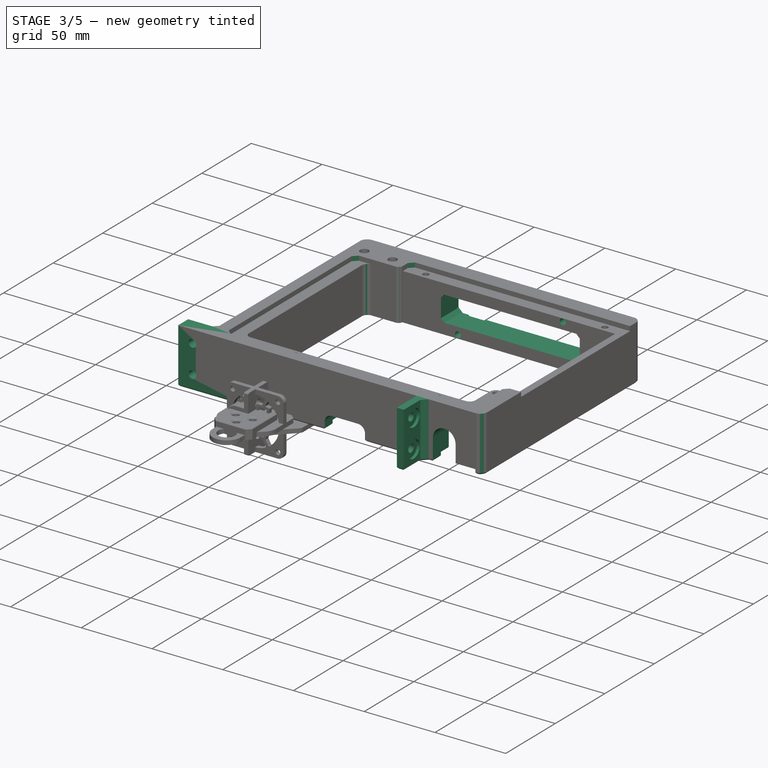
[diagram: stage 3 of 5 — iso view after this stage's code; geometry added in this stage tinted green]
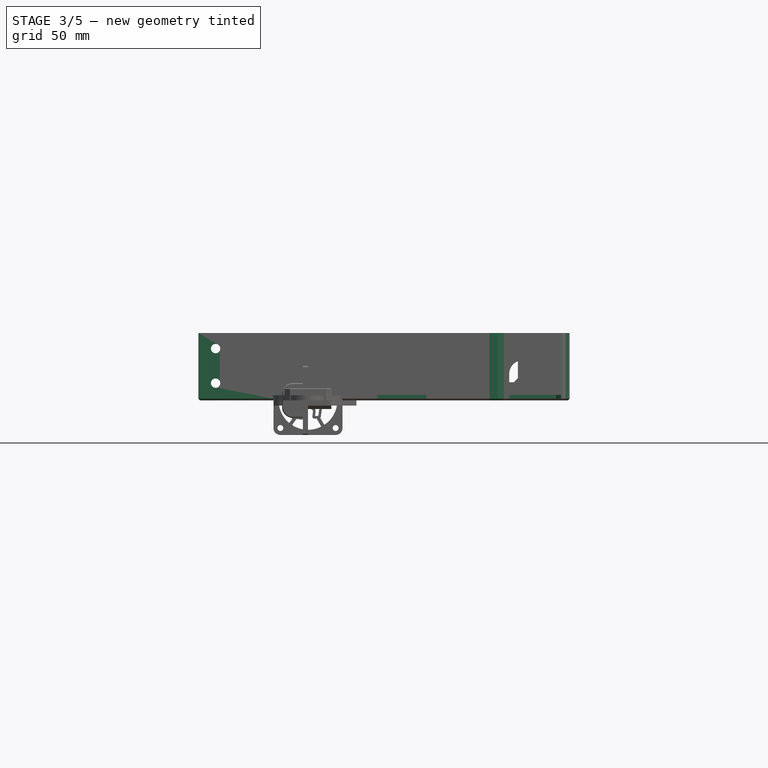
[diagram: stage 3 of 5 — front view after this stage's code; geometry added in this stage tinted green]
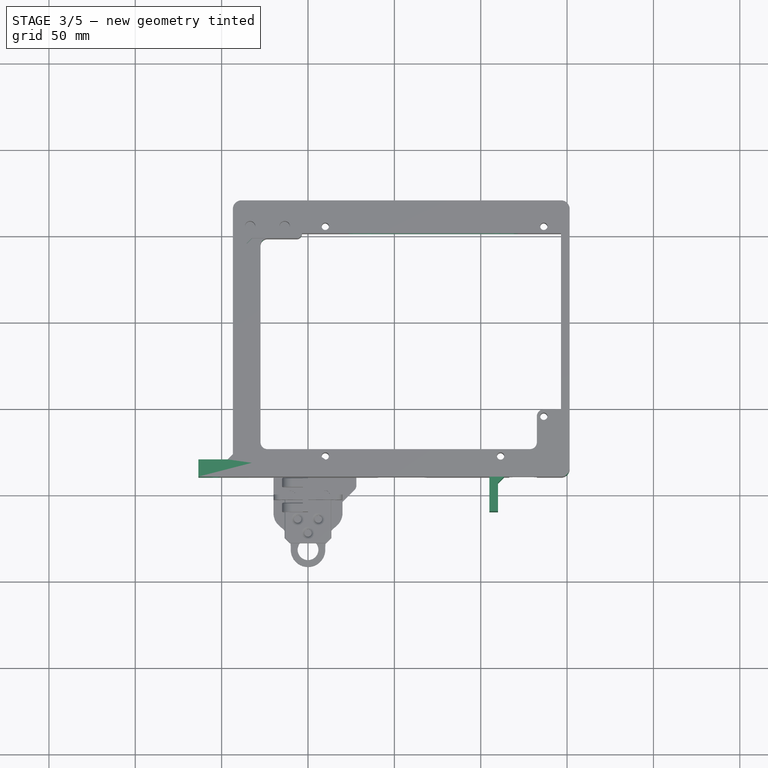
[diagram: stage 3 of 5 — top view after this stage's code; geometry added in this stage tinted green]
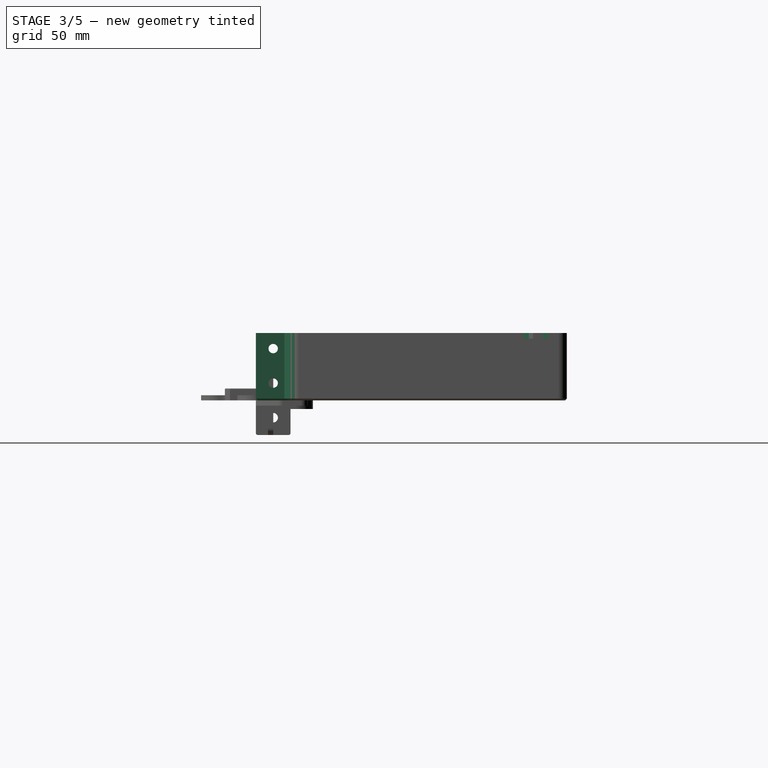
[diagram: stage 3 of 5 — right view after this stage's code; geometry added in this stage tinted green]
FEATURE [Sketcher::SketchObject] Sketch020
  ArcFitTolerance = 1e-06
  AttachmentSupport = -> [XY_Plane018]
  ExternalBSplineMaxDegree = 5
  ExternalBSplineTolerance = 0.0001
  ExternalGeometry = -> [Pocket012]
  FixShape = 1
  FullyConstrained = true
  InternalTolerance = 1e-06
  InvalidShape = false
  MakeInternals = false
  MapMode = 5
  Support = -> [XY_Plane018]
  TreeRank = 534
  ValidateShape = false
  sketch-geometry (4):
    g0: LineSegment StartX=105 StartY=10 StartZ=0 EndX=110 EndY=10 EndZ=0
    g1: LineSegment StartX=110 StartY=10 StartZ=0 EndX=110 EndY=-10 EndZ=0
    g2: LineSegment StartX=110 StartY=-10 StartZ=0 EndX=105 EndY=-10 EndZ=0
    g3: LineSegment StartX=105 StartY=-10 StartZ=0 EndX=105 EndY=10 EndZ=0
  constraints (12):
    c: Coincident(g0,g1)
    c: Coincident(g1,g2)
    c: Coincident(g2,g3)
    c: Coincident(g3,g0)
    c: Horizontal(g0)
    c: Horizontal(g2)
    c: Vertical(g1)
    c: Vertical(g3)
    c: PointOnObject(g0,g-3)
    c: DistanceY(g3,g3) = 20
    c: DistanceX(g0,g0) = 5
    c: DistanceX(g-1,g0) = 105
FEATURE [PartDesign::Pad] Pad008
  AddSubType = 0
  AlongSketchNormal = false
  AutoTaperInnerAngle = true
  BaseFeature = -> Pocket012
  CheckUpToFaceLimits = true
  ClaimChildren = false
  Direction = (0,0,1)
  Fit = 0
  FitJoin = 0
  FixShape = 1
  InnerFit = 0
  InnerFitJoin = 0
  InvalidShape = false
  Length = 10
  Length2 = 10
  Linearize = true
  NewSolid = false
  Profile = -> Sketch020
  ReferenceAxis = -> Sketch020 [N_Axis]
  Refine = true
  Suppress = false
  TaperInnerAngle = 0
  TaperInnerAngleRev = 0
  TreeRank = 535
  Type = 3
  UpToFace = -> Pocket012 [Face5]
  ValidateShape = true
  _ProfileBasedVersion = 1
FEATURE [Sketcher::SketchObject] Sketch021
  ArcFitTolerance = 1e-06
  AttachmentSupport = -> [Pad008]
  ExternalBSplineMaxDegree = 5
  ExternalBSplineTolerance = 0.0001
  FixShape = 1
  FullyConstrained = true
  InternalTolerance = 1e-06
  InvalidShape = false
  MakeInternals = false
  MapMode = 5
  Placement = pos=(110,0,0) rot=(0.57735,0.57735,0.57735;2.0944rad)
  Support = -> [Pad008]
  TreeRank = 536
  ValidateShape = false
  sketch-geometry (2):
    g0: Circle CenterX=0 CenterY=10 CenterZ=0 NormalX=0 NormalY=0 NormalZ=1 AngleXU=0 Radius=2.7
    g1: Circle CenterX=0 CenterY=30 CenterZ=0 NormalX=0 NormalY=0 NormalZ=1 AngleXU=0 Radius=2.7
  constraints (6):
    c: PointOnObject(g0,g-2)
    c: PointOnObject(g1,g-2)
    c: Equal(g1,g0)
    c: Diameter(g1) = 5.4
    c: DistanceY(g0,g1) = 20
    c: DistanceY(g-1,g0) = 10
FEATURE [PartDesign::Pocket] Pocket013
  AddSubType = 1
  AlongSketchNormal = false
  AutoTaperInnerAngle = true
  BaseFeature = -> Pad008
  CheckUpToFaceLimits = true
  ClaimChildren = false
  Direction = (-1,0,0)
  Fit = 0
  FitJoin = 0
  FixShape = 1
  InnerFit = 0
  InnerFitJoin = 0
  InvalidShape = false
  Length = 5
  Length2 = 10
  Linearize = true
  NewSolid = false
  Profile = -> Sketch021
  ReferenceAxis = -> Sketch021 [N_Axis]
  Refine = true
  Suppress = false
  TaperInnerAngle = 0
  TaperInnerAngleRev = 0
  TreeRank = 537
  Type = 1
  ValidateShape = true
  _ProfileBasedVersion = 1
  _Version = 1
FEATURE [Sketcher::SketchObject] Sketch022
  ArcFitTolerance = 1e-06
  AttachmentSupport = -> [Pocket013]
  ExternalBSplineMaxDegree = 5
  ExternalBSplineTolerance = 0.0001
  ExternalGeometry = -> [Pocket013]
  FixShape = 1
  FullyConstrained = true
  InternalTolerance = 1e-06
  InvalidShape = false
  MakeInternals = false
  MapMode = 5
  Placement = pos=(110,0,0) rot=(0.57735,0.57735,0.57735;2.0944rad)
  Support = -> [Pocket013]
  TreeRank = 538
  ValidateShape = false
  sketch-geometry (2):
    g0: Circle CenterX=0 CenterY=30 CenterZ=0 NormalX=0 NormalY=0 NormalZ=1 AngleXU=0 Radius=6
    g1: Circle CenterX=0 CenterY=10 CenterZ=0 NormalX=0 NormalY=0 NormalZ=1 AngleXU=0 Radius=6
  constraints (4):
    c: Coincident(g0,g-3)
    c: Coincident(g1,g-4)
    c: Equal(g1,g0)
    c: Diameter(g1) = 12
FEATURE [PartDesign::Pocket] Pocket014
  AddSubType = 1
  AlongSketchNormal = false
  AutoTaperInnerAngle = true
  BaseFeature = -> Pocket013
  CheckUpToFaceLimits = true
  ClaimChildren = false
  Direction = (-1,0,0)
  Fit = 0
  FitJoin = 0
  FixShape = 1
  InnerFit = 0
  InnerFitJoin = 0
  InvalidShape = false
  Length = 2
  Length2 = 10
  Linearize = true
  NewSolid = false
  Profile = -> Sketch022
  ReferenceAxis = -> Sketch022 [N_Axis]
  Refine = true
  Suppress = false
  TaperInnerAngle = 0
  TaperInnerAngleRev = 0
  TreeRank = 539
  Type = 0
  ValidateShape = true
  _ProfileBasedVersion = 1
  _Version = 1
FEATURE [PartDesign::Chamfer] Chamfer001
  AddSubType = 0
  Angle = 45
  Base = -> Pocket014 [Edge59]
  BaseFeature = -> Pocket014
  ChamferType = 0
  FixShape = 1
  FlipDirection = false
  InvalidShape = false
  NewSolid = false
  Refine = true
  Size = 3.5
  Size2 = 1
  SupportTransform = false
  Suppress = false
  TreeRank = 540
  UseAllEdges = false
  ValidateShape = true
FEATURE [Sketcher::SketchObject] Sketch023
  ArcFitTolerance = 1e-06
  AttachmentSupport = -> [Pocket012]
  ExternalBSplineMaxDegree = 5
  ExternalBSplineTolerance = 0.0001
  ExternalGeometry = -> [Pocket012]
  FixShape = 1
  FullyConstrained = true
  InternalTolerance = 1e-06
  InvalidShape = false
  MakeInternals = false
  MapMode = 5
  Placement = pos=(0,0,0) rot=(1,0,0;3.14159rad)
  Support = -> [Pocket012]
  TreeRank = 541
  ValidateShape = false
  sketch-geometry (4):
    g0: LineSegment StartX=-35.5 StartY=-18 StartZ=0 EndX=146.5 EndY=-18 EndZ=0
    g1: LineSegment StartX=146.5 StartY=-18 StartZ=0 EndX=146.5 EndY=-159 EndZ=0
    g2: LineSegment StartX=146.5 StartY=-159 StartZ=0 EndX=-35.5 EndY=-159 EndZ=0
    g3: LineSegment StartX=-35.5 StartY=-159 StartZ=0 EndX=-35.5 EndY=-18 EndZ=0
  constraints (12):
    c: Coincident(g0,g1)
    c: Coincident(g1,g2)
    c: Coincident(g2,g3)
    c: Coincident(g3,g0)
    c: Horizontal(g0)
    c: Horizontal(g2)
    c: Vertical(g1)
    c: Vertical(g3)
    c: PointOnObject(g-3,g1)
    c: DistanceY(g-5,g0) = 8
    c: DistanceX(g0,g-6) = 8
    c: DistanceY(g1,g-4) = 8
FEATURE [PartDesign::Pocket] Pocket015
  AddSubType = 1
  AlongSketchNormal = false
  AutoTaperInnerAngle = true
  BaseFeature = -> Chamfer001
  CheckUpToFaceLimits = true
  ClaimChildren = false
  Direction = (0,0,1)
  Fit = 0
  FitJoin = 0
  FixShape = 1
  InnerFit = 0
  InnerFitJoin = 0
  InvalidShape = false
  Length = 3.2
  Length2 = 10
  Linearize = true
  NewSolid = false
  Profile = -> Sketch023
  ReferenceAxis = -> Sketch023 [N_Axis]
  Refine = true
  Suppress = false
  TaperInnerAngle = 0
  TaperInnerAngleRev = 0
  TreeRank = 542
  Type = 0
  ValidateShape = true
  _ProfileBasedVersion = 1
  _Version = 1
FEATURE [Sketcher::SketchObject] Sketch024
  ArcFitTolerance = 1e-06
  AttachmentSupport = -> [Pocket015]
  ExternalBSplineMaxDegree = 5
  ExternalBSplineTolerance = 0.0001
  ExternalGeometry = -> [Pocket015]
  FixShape = 1
  FullyConstrained = true
  InternalTolerance = 1e-06
  InvalidShape = false
  MakeInternals = false
  MapMode = 5
  Placement = pos=(0,0,3.2) rot=(1,0,0;3.14159rad)
  Support = -> [Pocket015]
  TreeRank = 543
  ValidateShape = false
  sketch-geometry (4):
    g0: LineSegment StartX=116.5 StartY=-10 StartZ=0 EndX=146.5 EndY=-10 EndZ=0
    g1: LineSegment StartX=146.5 StartY=-10 StartZ=0 EndX=146.5 EndY=-18 EndZ=0
    g2: LineSegment StartX=146.5 StartY=-18 StartZ=0 EndX=116.5 EndY=-18 EndZ=0
    g3: LineSegment StartX=116.5 StartY=-18 StartZ=0 EndX=116.5 EndY=-10 EndZ=0
  constraints (11):
    c: Coincident(g0,g1)
    c: Coincident(g1,g2)
    c: Coincident(g2,g3)
    c: Coincident(g3,g0)
    c: Horizontal(g0)
    c: Horizontal(g2)
    c: Vertical(g1)
    c: Vertical(g3)
    c: Coincident(g-3,g1)
    c: PointOnObject(g0,g-4)
    c: DistanceX(g0,g0) = 30
FEATURE [PartDesign::Pocket] Pocket016
  AddSubType = 1
  AlongSketchNormal = false
  AutoTaperInnerAngle = true
  BaseFeature = -> Pocket015
  CheckUpToFaceLimits = true
  ClaimChildren = false
  Direction = (0,0,1)
  Fit = 0
  FitJoin = 0
  FixShape = 1
  InnerFit = 0
  InnerFitJoin = 0
  InvalidShape = false
  Length = 5
  Length2 = 10
  Linearize = true
  NewSolid = false
  Profile = -> Sketch024
  ReferenceAxis = -> Sketch024 [N_Axis]
  Refine = true
  Reversed = true
  Suppress = false
  TaperInnerAngle = 0
  TaperInnerAngleRev = 0
  TreeRank = 544
  Type = 1
  ValidateShape = true
  _ProfileBasedVersion = 1
  _Version = 1
FEATURE [Sketcher::SketchObject] Sketch025
  ArcFitTolerance = 1e-06
  AttachmentSupport = -> [Pocket016]
  ExternalBSplineMaxDegree = 5
  ExternalBSplineTolerance = 0.0001
  ExternalGeometry = -> [Pocket016]
  FixShape = 1
  FullyConstrained = true
  InternalTolerance = 1e-06
  InvalidShape = false
  MakeInternals = false
  MapMode = 5
  Placement = pos=(0,0,3.2) rot=(1,0,0;3.14159rad)
  Support = -> [Pocket016]
  TreeRank = 545
  ValidateShape = false
  sketch-geometry (4):
    g0: LineSegment StartX=132.5 StartY=-26 StartZ=0 EndX=116.5 EndY=-26 EndZ=0
    g1: LineSegment StartX=116.5 StartY=-26 StartZ=0 EndX=116.5 EndY=-10 EndZ=0
    g2: LineSegment StartX=116.5 StartY=-10 StartZ=0 EndX=132.5 EndY=-10 EndZ=0
    g3: LineSegment StartX=132.5 StartY=-10 StartZ=0 EndX=132.5 EndY=-26 EndZ=0
  constraints (10):
    c: Coincident(g0,g1)
    c: Coincident(g1,g2)
    c: Coincident(g2,g3)
    c: Coincident(g3,g0)
    c: Horizontal(g0)
    c: Horizontal(g2)
    c: Vertical(g1)
    c: Vertical(g3)
    c: Coincident(g0,g-3)
    c: Coincident(g1,g-4)
FEATURE [PartDesign::Pocket] Pocket017
  AddSubType = 1
  AlongSketchNormal = false
  AutoTaperInnerAngle = true
  BaseFeature = -> Pocket016
  CheckUpToFaceLimits = true
  ClaimChildren = false
  Direction = (0,0,1)
  Fit = 0
  FitJoin = 0
  FixShape = 1
  InnerFit = 0
  InnerFitJoin = 0
  InvalidShape = false
  Length = 20
  Length2 = 10
  Linearize = true
  NewSolid = false
  Profile = -> Sketch025
  ReferenceAxis = -> Sketch025 [N_Axis]
  Refine = true
  Suppress = false
  TaperInnerAngle = 0
  TaperInnerAngleRev = 0
  TreeRank = 546
  Type = 0
  ValidateShape = true
  _ProfileBasedVersion = 1
  _Version = 1
FEATURE [PartDesign::Fillet] Fillet004
  AddSubType = 0
  Base = -> Pocket018 [Edge73,Edge75,Edge77,Edge72]
  BaseFeature = -> Pocket018
  FixShape = 1
  InvalidShape = false
  NewSolid = false
  Radius = 0.5
  Refine = true
  SupportTransform = false
  Suppress = false
  TreeRank = 569
  UseAllEdges = false
  ValidateShape = true
FEATURE [Part::Feature] Compound009  label="lcd_Standard"
  FixShape = 1
  InvalidShape = false
  Placement = pos=(0,0,0) rot=(1,0,0;1.13446rad)
  TreeRank = 570
  ValidateShape = false
  shape: bbox 93 x 87 x 45.5 mm, 65 faces, 2 solids (baked)
FEATURE [App::Part] Part016  label="OldLCDEnder3"
  ClaimAllChildren = false
  ExportMode = 1
  Group = -> [Compound009]
  Origin = -> Origin023
  Placement = pos=(190,48,0) rot=(0,0,1;1.5708rad)
  TreeRank = 573
  _ExportChildren = -> [Compound009]
  _GroupVersion = 1
FEATURE [Sketcher::SketchObject] Sketch028
  ArcFitTolerance = 1e-06
  AttachmentSupport = -> [Fillet003]
  ExternalBSplineMaxDegree = 5
  ExternalBSplineTolerance = 0.0001
  ExternalGeometry = -> [Fillet003]
  FixShape = 1
  FullyConstrained = true
  InternalTolerance = 1e-06
  InvalidShape = false
  MakeInternals = false
  MapMode = 5
  Placement = pos=(0,0,0) rot=(1,0,0;3.14159rad)
  Support = -> [Fillet003]
  TreeRank = 574
  ValidateShape = false
  sketch-geometry (4):
    g0: LineSegment StartX=-43.5 StartY=-10 StartZ=0 EndX=-63.5 EndY=-10 EndZ=0
    g1: LineSegment StartX=-63.5 StartY=-10 StartZ=0 EndX=-63.5 EndY=-20 EndZ=0
    g2: LineSegment StartX=-63.5 StartY=-20 StartZ=0 EndX=-43.5 EndY=-20 EndZ=0
    g3: LineSegment StartX=-43.5 StartY=-20 StartZ=0 EndX=-43.5 EndY=-10 EndZ=0
  constraints (11):
    c: Coincident(g0,g1)
    c: Coincident(g1,g2)
    c: Coincident(g2,g3)
    c: Coincident(g3,g0)
    c: Horizontal(g0)
    c: Horizontal(g2)
    c: Vertical(g1)
    c: Vertical(g3)
    c: Coincident(g0,g-3)
    c: DistanceY(g3,g3) = 10
    c: DistanceX(g0,g0) = 20
FEATURE [PartDesign::Pad] Pad010
  AddSubType = 0
  AlongSketchNormal = false
  AutoTaperInnerAngle = true
  BaseFeature = -> Fillet003
  CheckUpToFaceLimits = true
  ClaimChildren = false
  Direction = (0,0,-1)
  Fit = 0
  FitJoin = 0
  FixShape = 1
  InnerFit = 0
  InnerFitJoin = 0
  InvalidShape = false
  Length = 39
  Length2 = 10
  Linearize = true
  NewSolid = false
  Profile = -> Sketch028
  ReferenceAxis = -> Sketch028 [N_Axis]
  Refine = true
  Reversed = true
  Suppress = false
  TaperInnerAngle = 0
  TaperInnerAngleRev = 0
  TreeRank = 575
  Type = 0
  ValidateShape = true
  _ProfileBasedVersion = 1
FEATURE [Sketcher::SketchObject] Sketch029
  ArcFitTolerance = 1e-06
  AttachmentSupport = -> [Pad010]
  ExternalBSplineMaxDegree = 5
  ExternalBSplineTolerance = 0.0001
  ExternalGeometry = -> [Pad010]
  FixShape = 1
  FullyConstrained = true
  InternalTolerance = 1e-06
  InvalidShape = false
  MakeInternals = false
  MapMode = 5
  Placement = pos=(0,20,0) rot=(0,0.707107,0.707107;3.14159rad)
  Support = -> [Pad010]
  TreeRank = 576
  ValidateShape = false
  sketch-geometry (2):
    g0: Circle CenterX=53.5 CenterY=30 CenterZ=0 NormalX=0 NormalY=0 NormalZ=1 AngleXU=0 Radius=2.7
    g1: Circle CenterX=53.5 CenterY=10 CenterZ=0 NormalX=0 NormalY=0 NormalZ=1 AngleXU=0 Radius=2.7
  constraints (6):
    c: Vertical(g0,g1)
    c: Equal(g1,g0)
    c: Diameter(g1) = 5.4
    c: DistanceY(g1,g0) = 20
    c: DistanceY(g-1,g1) = 10
    c: DistanceX(g0,g-3) = 10
FEATURE [PartDesign::Pocket] Pocket019
  AddSubType = 1
  AlongSketchNormal = false
  AutoTaperInnerAngle = true
  BaseFeature = -> Pad010
  CheckUpToFaceLimits = true
  ClaimChildren = false
  Direction = (0,-1,2e-16)
  Fit = 0
  FitJoin = 0
  FixShape = 1
  InnerFit = 0
  InnerFitJoin = 0
  InvalidShape = false
  Length = 5
  Length2 = 10
  Linearize = true
  NewSolid = false
  Profile = -> Sketch029
  ReferenceAxis = -> Sketch029 [N_Axis]
  Refine = true
  Suppress = false
  TaperInnerAngle = 0
  TaperInnerAngleRev = 0
  TreeRank = 577
  Type = 1
  ValidateShape = true
  _ProfileBasedVersion = 1
  _Version = 1
FEATURE [Sketcher::SketchObject] Sketch030
  ArcFitTolerance = 1e-06
  AttachmentSupport = -> [Pocket019]
  ExternalBSplineMaxDegree = 5
  ExternalBSplineTolerance = 0.0001
  ExternalGeometry = -> [Pocket019]
  FixShape = 1
  FullyConstrained = true
  InternalTolerance = 1e-06
  InvalidShape = false
  MakeInternals = false
  MapMode = 5
  Placement = pos=(0,20,0) rot=(0,0.707107,0.707107;3.14159rad)
  Support = -> [Pocket019]
  TreeRank = 578
  ValidateShape = false
  sketch-geometry (2):
    g0: Circle CenterX=53.5 CenterY=30 CenterZ=0 NormalX=0 NormalY=0 NormalZ=1 AngleXU=0 Radius=6
    g1: Circle CenterX=53.5 CenterY=10 CenterZ=0 NormalX=0 NormalY=0 NormalZ=1 AngleXU=0 Radius=6
  constraints (4):
    c: Coincident(g0,g-3)
    c: Coincident(g1,g-4)
    c: Equal(g1,g0)
    c: Diameter(g1) = 12
FEATURE [PartDesign::Pocket] Pocket020
  AddSubType = 1
  AlongSketchNormal = false
  AutoTaperInnerAngle = true
  BaseFeature = -> Pocket019
  CheckUpToFaceLimits = true
  ClaimChildren = false
  Direction = (0,-1,2e-16)
  Fit = 0
  FitJoin = 0
  FixShape = 1
  InnerFit = 0
  InnerFitJoin = 0
  InvalidShape = false
  Length = 5
  Length2 = 10
  Linearize = true
  NewSolid = false
  Profile = -> Sketch030
  ReferenceAxis = -> Sketch030 [N_Axis]
  Refine = true
  Suppress = false
  TaperInnerAngle = 0
  TaperInnerAngleRev = 0
  TreeRank = 579
  Type = 0
  ValidateShape = true
  _ProfileBasedVersion = 1
  _Version = 1
FEATURE [PartDesign::Chamfer] Chamfer003
  AddSubType = 0
  Angle = 45
  Base = -> Pocket020 [Edge104]
  BaseFeature = -> Pocket020
  ChamferType = 0
  FixShape = 1
  FlipDirection = false
  InvalidShape = false
  NewSolid = false
  Refine = true
  Size = 3
  Size2 = 1
  SupportTransform = false
  Suppress = false
  TreeRank = 580
  UseAllEdges = false
  ValidateShape = true
FEATURE [Sketcher::SketchObject] Sketch031
  ArcFitTolerance = 1e-06
  AttachmentSupport = -> [Chamfer003]
  ExternalBSplineMaxDegree = 5
  ExternalBSplineTolerance = 0.0001
  FixShape = 1
  FullyConstrained = true
  InternalTolerance = 1e-06
  InvalidShape = false
  MakeInternals = false
  MapMode = 5
  Placement = pos=(0,170,0) rot=(0,0.707107,0.707107;3.14159rad)
  Support = -> [Chamfer003]
  TreeRank = 581
  ValidateShape = false
  sketch-geometry (5):
    g0: LineSegment StartX=-122.5 StartY=9.5 StartZ=0 EndX=-122.5 EndY=29.5 EndZ=0
    g1: LineSegment StartX=-122.5 StartY=29.5 StartZ=0 EndX=-22.5 EndY=29.5 EndZ=0
    g2: LineSegment StartX=-22.5 StartY=29.5 StartZ=0 EndX=-22.5 EndY=9.5 EndZ=0
    g3: LineSegment StartX=-22.5 StartY=9.5 StartZ=0 EndX=-122.5 EndY=9.5 EndZ=0
    g4: GeomPoint [constr] X=-72.5 Y=19.5 Z=0
  constraints (13):
    c: Coincident(g0,g1)
    c: Coincident(g1,g2)
    c: Coincident(g2,g3)
    c: Coincident(g3,g0)
    c: Horizontal(g1)
    c: Horizontal(g3)
    c: Vertical(g0)
    c: Vertical(g2)
    c: Symmetric(g1,g0,g4)
    c: DistanceY(g2,g2) = 20
    c: DistanceX(g1,g1) = 100
    c: DistanceY(g-1,g4) = 19.5
    c: DistanceX(g4,g-1) = 72.5
FEATURE [PartDesign::Pocket] Pocket021
  AddSubType = 1
  AlongSketchNormal = false
  AutoTaperInnerAngle = true
  BaseFeature = -> Chamfer003
  CheckUpToFaceLimits = true
  ClaimChildren = false
  Direction = (0,-1,2e-16)
  Fit = 0
  FitJoin = 0
  FixShape = 1
  InnerFit = 0
  InnerFitJoin = 0
  InvalidShape = false
  Length = 3
  Length2 = 10
  Linearize = true
  NewSolid = false
  Profile = -> Sketch031
  ReferenceAxis = -> Sketch031 [N_Axis]
  Refine = true
  Suppress = false
  TaperInnerAngle = 0
  TaperInnerAngleRev = 0
  TreeRank = 582
  Type = 0
  ValidateShape = true
  _ProfileBasedVersion = 1
  _Version = 1
FEATURE [PartDesign::Chamfer] Chamfer004
  AddSubType = 0
  Angle = 45
  Base = -> Pocket021 [Edge126,Edge125,Edge130,Edge128]
  BaseFeature = -> Pocket021
  ChamferType = 0
  FixShape = 1
  FlipDirection = false
  InvalidShape = false
  NewSolid = false
  Refine = true
  Size = 3
  Size2 = 1
  SupportTransform = false
  Suppress = false
  TreeRank = 583
  UseAllEdges = false
  ValidateShape = true
FEATURE [Sketcher::SketchObject] Sketch032
  ArcFitTolerance = 1e-06
  AttachmentSupport = -> [Chamfer004]
  ExternalBSplineMaxDegree = 5
  ExternalBSplineTolerance = 0.0001
  ExternalGeometry = -> [Chamfer004]
  FixShape = 1
  FullyConstrained = true
  InternalTolerance = 1e-06
  InvalidShape = false
  MakeInternals = false
  MapMode = 5
  Placement = pos=(0,170,0) rot=(0,0.707107,0.707107;3.14159rad)
  Support = -> [Chamfer004]
  TreeRank = 584
  ValidateShape = false
  sketch-geometry (8):
    g0: ArcOfCircle CenterX=-109.5 CenterY=29.5 CenterZ=0 NormalX=0 NormalY=0 NormalZ=1 AngleXU=0 Radius=4 StartAngle=3.14159 EndAngle=6.28319
    g1: ArcOfCircle CenterX=-109.5 CenterY=33.5 CenterZ=0 NormalX=0 NormalY=0 NormalZ=1 AngleXU=0 Radius=4 StartAngle=8e-16 EndAngle=3.14159
    g2: LineSegment StartX=-105.5 StartY=29.5 StartZ=0 EndX=-105.5 EndY=33.5 EndZ=0
    g3: LineSegment StartX=-113.5 StartY=33.5 StartZ=0 EndX=-113.5 EndY=29.5 EndZ=0
    g4: ArcOfCircle CenterX=-35.5 CenterY=9.5 CenterZ=0 NormalX=0 NormalY=0 NormalZ=1 AngleXU=0 Radius=4 StartAngle=1e-16 EndAngle=3.14159
    g5: ArcOfCircle CenterX=-35.5 CenterY=5.5 CenterZ=0 NormalX=0 NormalY=0 NormalZ=1 AngleXU=0 Radius=4 StartAngle=3.14159 EndAngle=6.28319
    g6: LineSegment StartX=-39.5 StartY=9.5 StartZ=0 EndX=-39.5 EndY=5.5 EndZ=0
    g7: LineSegment StartX=-31.5 StartY=5.5 StartZ=0 EndX=-31.5 EndY=9.5 EndZ=0
  constraints (20):
    c: Tangent(g0,g2) = -1.5708
    c: Tangent(g2,g1) = -1.5708
    c: Tangent(g1,g3) = -1.5708
    c: Tangent(g3,g0) = -1.5708
    c: Equal(g0,g1)
    c: PointOnObject(g0,g-3)
    c: Vertical(g2)
    c: Tangent(g4,g6) = -1.5708
    c: Tangent(g6,g5) = -1.5708
    c: Tangent(g5,g7) = -1.5708
    c: Tangent(g7,g4) = -1.5708
    c: Equal(g4,g5)
    c: PointOnObject(g4,g-4)
    c: Vertical(g7)
    c: Equal(g2,g7)
    c: Equal(g4,g0)
    c: DistanceX(g1,g1) = 8
    c: DistanceY(g0,g1) = 4
    c: DistanceX(g-3,g0) = 10
    c: DistanceX(g4,g-4) = 10
FEATURE [PartDesign::Pocket] Pocket023
  AddSubType = 1
  AlongSketchNormal = false
  AutoTaperInnerAngle = true
  BaseFeature = -> Chamfer004
  CheckUpToFaceLimits = true
  ClaimChildren = false
  Direction = (0,-1,0)
  Fit = -1
  FitJoin = 0
  FixShape = 1
  InnerFit = 0
  InnerFitJoin = 0
  InvalidShape = false
  Length = 18
  Length2 = 10
  Linearize = true
  NewSolid = false
  Profile = -> Chamfer004 [Face14]
  Refine = true
  Suppress = false
  TaperInnerAngle = 0
  TaperInnerAngleRev = 0
  TreeRank = 586
  Type = 0
  ValidateShape = true
  _ProfileBasedVersion = 1
  _Version = 1
FEATURE [PartDesign::Pocket] Pocket022
  AddSubType = 1
  AlongSketchNormal = false
  AutoTaperInnerAngle = true
  BaseFeature = -> Pocket023
  CheckUpToFaceLimits = true
  ClaimChildren = false
  Direction = (0,-1,2e-16)
  Fit = 0
  FitJoin = 0
  FixShape = 1
  InnerFit = 0
  InnerFitJoin = 0
  InvalidShape = false
  Length = 3
  Length2 = 10
  Linearize = true
  NewSolid = false
  Profile = -> Sketch032
  ReferenceAxis = -> Sketch032 [N_Axis]
  Refine = true
  Suppress = false
  TaperInnerAngle = 0
  TaperInnerAngleRev = 0
  TreeRank = 585
  Type = 0
  ValidateShape = true
  _ProfileBasedVersion = 1
  _Version = 1
FEATURE [Sketcher::SketchObject] Sketch033
  ArcFitTolerance = 1e-06
  AttachmentSupport = -> [Pocket022]
  ExternalBSplineMaxDegree = 5
  ExternalBSplineTolerance = 0.0001
  ExternalGeometry = -> [Pocket022]
  FixShape = 1
  FullyConstrained = true
  InternalTolerance = 1e-06
  InvalidShape = false
  MakeInternals = false
  MapMode = 5
  Placement = pos=(0,167,0) rot=(0,0.707107,0.707107;3.14159rad)
  Support = -> [Pocket022]
  TreeRank = 587
  ValidateShape = false
  sketch-geometry (2):
    g0: Circle CenterX=-109.5 CenterY=33.5 CenterZ=0 NormalX=0 NormalY=0 NormalZ=1 AngleXU=0 Radius=2.1
    g1: Circle CenterX=-35.5 CenterY=5.5 CenterZ=0 NormalX=0 NormalY=0 NormalZ=1 AngleXU=0 Radius=2.1
  constraints (4):
    c: Coincident(g0,g-3)
    c: Coincident(g1,g-4)
    c: Equal(g0,g1)
    c: Diameter(g0) = 4.2
FEATURE [PartDesign::Pocket] Pocket024
  AddSubType = 1
  AlongSketchNormal = false
  AutoTaperInnerAngle = true
  BaseFeature = -> Pocket022
  CheckUpToFaceLimits = true
  ClaimChildren = false
  Direction = (0,-1,2e-16)
  Fit = 0
  FitJoin = 0
  FixShape = 1
  InnerFit = 0
  InnerFitJoin = 0
  InvalidShape = false
  Length = 25
  Length2 = 10
  Linearize = true
  NewSolid = false
  Profile = -> Sketch033
  ReferenceAxis = -> Sketch033 [N_Axis]
  Refine = true
  Suppress = false
  TaperInnerAngle = 0
  TaperInnerAngleRev = 0
  TreeRank = 588
  Type = 0
  ValidateShape = true
  _ProfileBasedVersion = 1
  _Version = 1
FEATURE [PartDesign::Chamfer] Chamfer005
  AddSubType = 0
  Angle = 45
  Base = -> Pocket024 [Edge86,Edge80,Edge96,Edge102]
  BaseFeature = -> Pocket024
  ChamferType = 0
  FixShape = 1
  FlipDirection = false
  InvalidShape = false
  NewSolid = false
  Refine = true
  Size = 2
  Size2 = 1
  SupportTransform = false
  Suppress = false
  TreeRank = 589
  UseAllEdges = false
  ValidateShape = true
FEATURE [Sketcher::SketchObject] Sketch034
  ArcFitTolerance = 1e-06
  AttachmentSupport = -> [Chamfer005]
  ExternalBSplineMaxDegree = 5
  ExternalBSplineTolerance = 0.0001
  ExternalGeometry = -> [Chamfer005]
  FixShape = 1
  FullyConstrained = true
  InternalTolerance = 1e-06
  InvalidShape = false
  MakeInternals = false
  MapMode = 5
  Placement = pos=(0,0,0) rot=(1,0,0;3.14159rad)
  Support = -> [Chamfer005]
  TreeRank = 590
  ValidateShape = false
  sketch-geometry (8):
    g0: LineSegment StartX=-20.5 StartY=-10 StartZ=0 EndX=-10 EndY=-10 EndZ=0
    g1: LineSegment StartX=-10 StartY=-10 StartZ=0 EndX=-10 EndY=-26 EndZ=0
    g2: LineSegment StartX=-10 StartY=-26 StartZ=0 EndX=-20.5 EndY=-26 EndZ=0
    g3: LineSegment StartX=-20.5 StartY=-26 StartZ=0 EndX=-20.5 EndY=-10 EndZ=0
    g4: LineSegment StartX=40 StartY=-10 StartZ=0 EndX=68.5 EndY=-10 EndZ=0
    g5: LineSegment StartX=68.5 StartY=-10 StartZ=0 EndX=68.5 EndY=-26 EndZ=0
    g6: LineSegment StartX=68.5 StartY=-26 StartZ=0 EndX=40 EndY=-26 EndZ=0
    g7: LineSegment StartX=40 StartY=-26 StartZ=0 EndX=40 EndY=-10 EndZ=0
  constraints (24):
    c: Coincident(g0,g1)
    c: Coincident(g1,g2)
    c: Coincident(g2,g3)
    c: Coincident(g3,g0)
    c: Horizontal(g0)
    c: Horizontal(g2)
    c: Vertical(g1)
    c: Vertical(g3)
    c: PointOnObject(g0,g-3)
    c: Coincident(g4,g5)
    c: Coincident(g5,g6)
    c: Coincident(g6,g7)
    c: Coincident(g7,g4)
    c: Horizontal(g4)
    c: Horizontal(g6)
    c: Vertical(g5)
    c: Vertical(g7)
    c: PointOnObject(g4,g-3)
    c: PointOnObject(g6,g-4)
    c: PointOnObject(g1,g-4)
    c: DistanceX(g-4,g2) = 3
    c: DistanceX(g0,g-1) = 10
    c: DistanceX(g-1,g4) = 40
    c: DistanceX(g-1,g4) = 68.5
FEATURE [PartDesign::Pocket] Pocket025
  AddSubType = 1
  AlongSketchNormal = false
  AutoTaperInnerAngle = true
  BaseFeature = -> Chamfer005
  CheckUpToFaceLimits = true
  ClaimChildren = false
  Direction = (0,0,1)
  Fit = 0
  FitJoin = 0
  FixShape = 1
  InnerFit = 0
  InnerFitJoin = 0
  InvalidShape = false
  Length = 10
  Length2 = 10
  Linearize = true
  NewSolid = false
  Profile = -> Sketch034
  ReferenceAxis = -> Sketch034 [N_Axis]
  Refine = true
  Suppress = false
  TaperInnerAngle = 0
  TaperInnerAngleRev = 0
  TreeRank = 591
  Type = 0
  ValidateShape = true
  _ProfileBasedVersion = 1
  _Version = 1
FEATURE [PartDesign::Fillet] Fillet005
  AddSubType = 0
  Base = -> Pocket025 [Edge252,Edge254,Edge264,Edge142]
  BaseFeature = -> Pocket025
  FixShape = 1
  InvalidShape = false
  NewSolid = false
  Radius = 5
  Refine = true
  SupportTransform = false
  Suppress = false
  TreeRank = 592
  UseAllEdges = false
  ValidateShape = true
FEATURE [PartDesign::Chamfer] Chamfer006
  AddSubType = 0
  Angle = 45
  Base = -> Fillet005 [Face12,Face11,Face4]
  BaseFeature = -> Fillet005
  ChamferType = 0
  FixShape = 1
  FlipDirection = false
  InvalidShape = false
  NewSolid = false
  Refine = true
  Size = 1
  Size2 = 1
  SupportTransform = false
  Suppress = false
  TreeRank = 593
  UseAllEdges = false
  ValidateShape = true
FEATURE [Sketcher::SketchObject] Sketch001
  ArcFitTolerance = 1e-06
  AttachmentSupport = -> [Pad]
  ExternalBSplineMaxDegree = 5
  ExternalBSplineTolerance = 0.0001
  ExternalGeometry = -> [Pad]
  FixShape = 1
  FullyConstrained = true
  InternalTolerance = 1e-06
  InvalidShape = false
  MakeInternals = false
  MapMode = 5
  Placement = pos=(0,0,0) rot=(0.57735,-0.57735,-0.57735;2.0944rad)
  Support = -> [Pad]
  TreeRank = 35
  ValidateShape = false
  sketch-geometry (4):
    g0: LineSegment StartX=-20 StartY=-5 StartZ=0 EndX=20 EndY=-5 EndZ=0
    g1: LineSegment StartX=20 StartY=-5 StartZ=0 EndX=20 EndY=-2.25 EndZ=0
    g2: LineSegment StartX=20 StartY=-2.25 StartZ=0 EndX=-20 EndY=-2.25 EndZ=0
    g3: LineSegment StartX=-20 StartY=-2.25 StartZ=0 EndX=-20 EndY=-5 EndZ=0
  constraints (10):
    c: Coincident(g0,g1)
    c: Coincident(g1,g2)
    c: Coincident(g2,g3)
    c: Coincident(g3,g0)
    c: Horizontal(g2)
    c: Vertical(g1)
    c: Vertical(g3)
    c: Coincident(g0,g-3)
    c: Coincident(g-3,g0)
    c: DistanceY(g1,g1) = 2.75
FEATURE [PartDesign::Pad] Pad001
  AddSubType = 0
  AlongSketchNormal = false
  AutoTaperInnerAngle = true
  BaseFeature = -> Pad
  CheckUpToFaceLimits = true
  ClaimChildren = false
  Direction = (-1,1e-16,-1e-16)
  Fit = 0
  FitJoin = 0
  FixShape = 1
  InnerFit = 0
  InnerFitJoin = 0
  InvalidShape = false
  Length = 22
  Length2 = 10
  Linearize = true
  NewSolid = false
  Profile = -> Sketch001
  ReferenceAxis = -> Sketch001 [N_Axis]
  Refine = true
  Suppress = false
  TaperInnerAngle = 0
  TaperInnerAngleRev = 0
  TreeRank = 36
  Type = 0
  ValidateShape = true
  _ProfileBasedVersion = 1
FEATURE [PartDesign::Fillet] Fillet
  AddSubType = 0
  Base = -> Pad001 [Edge24,Edge28]
  BaseFeature = -> Pad001
  FixShape = 1
  InvalidShape = false
  NewSolid = false
  Radius = 2
  Refine = true
  SupportTransform = false
  Suppress = false
  TreeRank = 37
  UseAllEdges = false
  ValidateShape = true
FEATURE [Part::SubShapeBinder] Import  label="Import(SD Card Slot)"
  BindCopyOnChange = 0
  BindMode = 0
  ClaimChildren = false
  Context = -> Part001 [Body.Import.]
  EdgeTolerance = 1e-06
  FillStyle = 0
  FixShape = 1
  Fuse = false
  InvalidShape = false
  MakeFace = false
  MergeEdges = true
  OffsetFill = false
  OffsetIntersection = false
  OffsetJoinType = 0
  OffsetOpenResult = false
  Outline = false
  PartialLoad = false
  Relative = true
  SplitEdges = false
  Support = -> [Part[Compound001.Edge1450]]
  TightBound = false
  TreeRank = 39
  ValidateShape = false
  _Version = 8
FEATURE [Sketcher::SketchObject] Sketch002
  ArcFitTolerance = 1e-06
  ExternalBSplineMaxDegree = 5
  ExternalBSplineTolerance = 0.0001
  ExternalGeometry = -> [Import]
  FixShape = 1
  FullyConstrained = true
  InternalTolerance = 1e-06
  InvalidShape = false
  MakeInternals = false
  Placement = pos=(2e-16,-2e-16,-2.25) rot=(0,0,1;0rad)
  TreeRank = 38
  ValidateShape = false
  sketch-geometry (2):
    g0: Circle CenterX=-18.5 CenterY=17 CenterZ=0 NormalX=0 NormalY=0 NormalZ=1 AngleXU=0 Radius=1.25
    g1: Circle CenterX=-18.5 CenterY=-17 CenterZ=0 NormalX=0 NormalY=0 NormalZ=1 AngleXU=0 Radius=1.25
  constraints (4):
    c: Coincident(g0,g-3)
    c: Symmetric(g1,g0,g-1)
    c: Equal(g0,g1)
    c: Diameter(g0) = 2.5
FEATURE [PartDesign::Fillet] Fillet001
  AddSubType = 0
  Base = -> Fillet [Edge5,Edge27]
  BaseFeature = -> Fillet
  FixShape = 1
  InvalidShape = false
  NewSolid = false
  Radius = 4
  Refine = true
  SupportTransform = false
  Suppress = false
  TreeRank = 40
  UseAllEdges = false
  ValidateShape = true
FEATURE [PartDesign::Fillet] Fillet002
  AddSubType = 0
  Base = -> Fillet001 [Edge38,Edge40,Edge24,Edge20]
  BaseFeature = -> Fillet001
  FixShape = 1
  InvalidShape = false
  NewSolid = false
  Radius = 2
  Refine = true
  SupportTransform = false
  Suppress = false
  TreeRank = 41
  UseAllEdges = false
  ValidateShape = true
FEATURE [Sketcher::SketchObject] Sketch004
  ArcFitTolerance = 1e-06
  AttachmentSupport = -> [Pocket]
  ExternalBSplineMaxDegree = 5
  ExternalBSplineTolerance = 0.0001
  ExternalGeometry = -> [Pocket]
  FixShape = 1
  FullyConstrained = true
  InternalTolerance = 1e-06
  InvalidShape = false
  MakeInternals = false
  MapMode = 5
  Placement = pos=(0,0,-5) rot=(1,0,0;3.14159rad)
  Support = -> [Pocket]
  TreeRank = 44
  ValidateShape = false
  sketch-geometry (4):
    g0: LineSegment StartX=3 StartY=20 StartZ=0 EndX=-7 EndY=20 EndZ=0
    g1: LineSegment StartX=-7 StartY=20 StartZ=0 EndX=-7 EndY=-20 EndZ=0
    g2: LineSegment StartX=-7 StartY=-20 StartZ=0 EndX=3 EndY=-20 EndZ=0
    g3: LineSegment StartX=3 StartY=-20 StartZ=0 EndX=3 EndY=20 EndZ=0
  constraints (12):
    c: Coincident(g0,g1)
    c: Coincident(g1,g2)
    c: Coincident(g2,g3)
    c: Coincident(g3,g0)
    c: Horizontal(g0)
    c: Horizontal(g2)
    c: Vertical(g1)
    c: Vertical(g3)
    c: PointOnObject(g0,g-3)
    c: PointOnObject(g2,g-4)
    c: DistanceX(g0,g-3) = 3
    c: DistanceX(g0,g0) = 10
FEATURE [PartDesign::Pocket] Pocket001
  AddSubType = 1
  AlongSketchNormal = false
  AutoTaperInnerAngle = true
  BaseFeature = -> Pocket
  CheckUpToFaceLimits = true
  ClaimChildren = false
  Direction = (0,0,1)
  Fit = 0
  FitJoin = 0
  FixShape = 1
  InnerFit = 0
  InnerFitJoin = 0
  InvalidShape = false
  Length = 1
  Length2 = 10
  Linearize = true
  NewSolid = false
  Profile = -> Sketch004
  ReferenceAxis = -> Sketch004 [N_Axis]
  Refine = true
  Suppress = false
  TaperInnerAngle = 0
  TaperInnerAngleRev = 0
  TreeRank = 45
  Type = 0
  ValidateShape = true
  _ProfileBasedVersion = 1
  _Version = 1
FEATURE [PartDesign::Fillet] Fillet003
  AddSubType = 0
  Base = -> Pocket001 [Edge41,Edge59]
  BaseFeature = -> Pocket001
  FixShape = 1
  InvalidShape = false
  NewSolid = false
  Radius = 1
  Refine = true
  SupportTransform = false
  Suppress = false
  TreeRank = 46
  UseAllEdges = false
  ValidateShape = true
FEATURE [PartDesign::Draft] Draft
  AddSubType = 0
  Angle = 60
  Base = -> Fillet003 [Face23]
  BaseFeature = -> Fillet003
  FixShape = 1
  InvalidShape = false
  NeutralPlane = -> Fillet003 [Face11]
  NewSolid = false
  Refine = true
  SupportTransform = false
  Suppress = false
  TreeRank = 47
  ValidateShape = true
FEATURE [PartDesign::Draft] Draft001
  AddSubType = 0
  Angle = 60
  Base = -> Draft [Face7]
  BaseFeature = -> Draft
  FixShape = 1
  InvalidShape = false
  NeutralPlane = -> Draft [Face9]
  NewSolid = false
  Refine = true
  SupportTransform = false
  Suppress = false
  TreeRank = 48
  ValidateShape = true
FEATURE [PartDesign::Chamfer] Chamfer001
  AddSubType = 0
  Angle = 45
  Base = -> Draft001 [Edge19]
  BaseFeature = -> Draft001
  ChamferType = 0
  FixShape = 1
  FlipDirection = false
  InvalidShape = false
  NewSolid = false
  Refine = true
  Size = 1
  Size2 = 1
  SupportTransform = false
  Suppress = false
  TreeRank = 51
  UseAllEdges = false
  ValidateShape = true
FEATURE [PartDesign::Chamfer] Chamfer
  AddSubType = 0
  Angle = 45
  Base = -> Pad003 [Edge75,Edge100]
  BaseFeature = -> Pad003
  ChamferType = 0
  FixShape = 1
  FlipDirection = false
  InvalidShape = false
  NewSolid = false
  Refine = true
  Size = 0.9
  Size2 = 1
  SupportTransform = false
  Suppress = false
  TreeRank = 58
  UseAllEdges = false
  ValidateShape = true
FEATURE [PartDesign::Body] Body  label="SD-Adaptator"
  AutoGroupSolids = false
  ClaimAllChildren = false
  ExportMode = 0
  FixShape = 1
  Group = -> [Sketch,Pad,Sketch001,Pad001,Fillet,Fillet001,Fillet002,Sketch002,Import,Pocket,Sketch004,Pocket001,Fillet003,Draft,Draft001,Chamfer001,Sketch005,Import001,Pad002,Fillet004,Sketch006,Pad003,Chamfer]
  InvalidShape = false
  Origin = -> Origin001
  Placement = pos=(29.5,0,1.75) rot=(0,0,1;0rad)
  SingleSolid = true
  Tip = -> Chamfer
  TreeRank = 32
  ValidateShape = false
  _ExportChildren = -> [Pad,Pad001,Fillet,Fillet001,Fillet002,Import,Pocket,Pocket001,Fillet003,Draft,Draft001,Chamfer001,Import001,Pad002,Fillet004,Pad003,Chamfer]
  _GroupVersion = 1
FEATURE [App::Part] Part001  label="SD-Adaptator-Assembly"
  ClaimAllChildren = false
  ExportMode = 1
  Group = -> [Part,Body]
  Origin = -> Origin002
  TreeRank = 61
  _ExportChildren = -> [Part,Body]
  _GroupVersion = 1
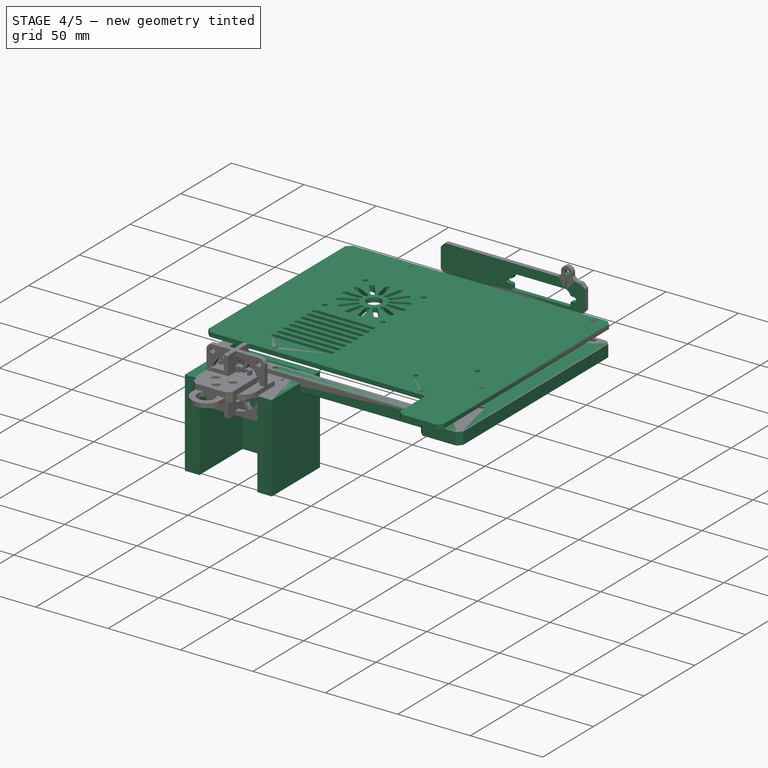
[diagram: stage 4 of 5 — iso view after this stage's code; geometry added in this stage tinted green]
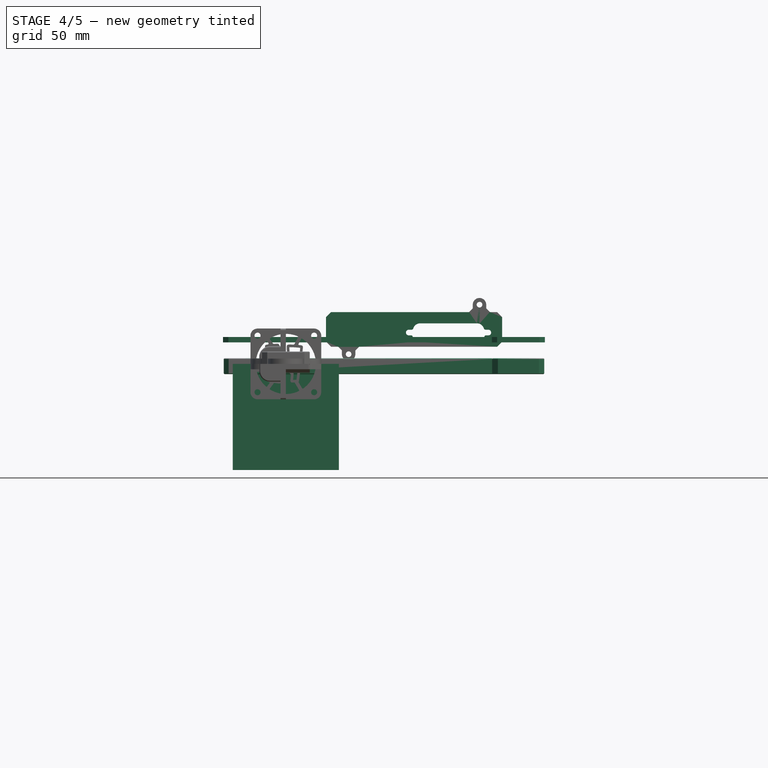
[diagram: stage 4 of 5 — front view after this stage's code; geometry added in this stage tinted green]
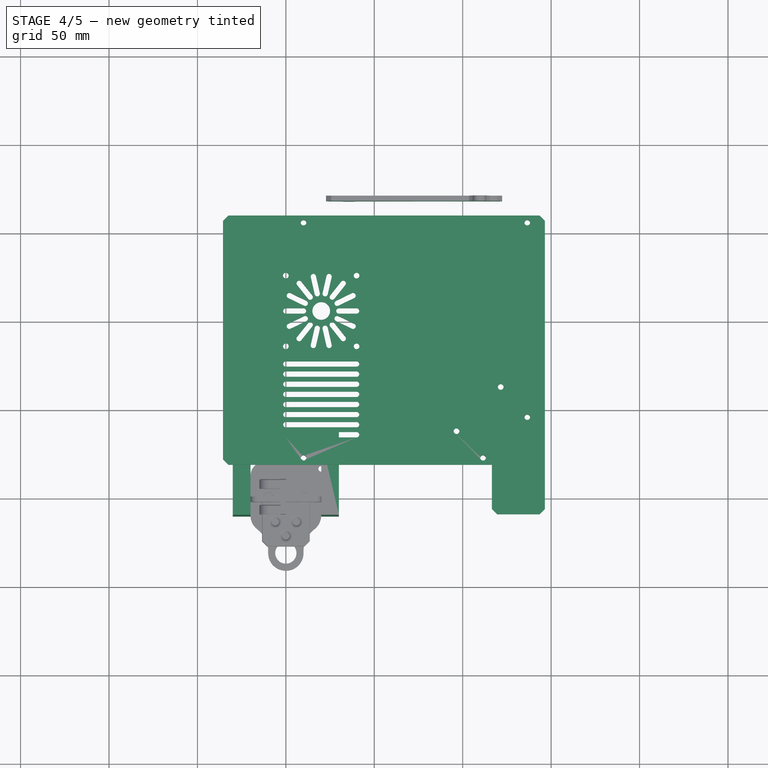
[diagram: stage 4 of 5 — top view after this stage's code; geometry added in this stage tinted green]
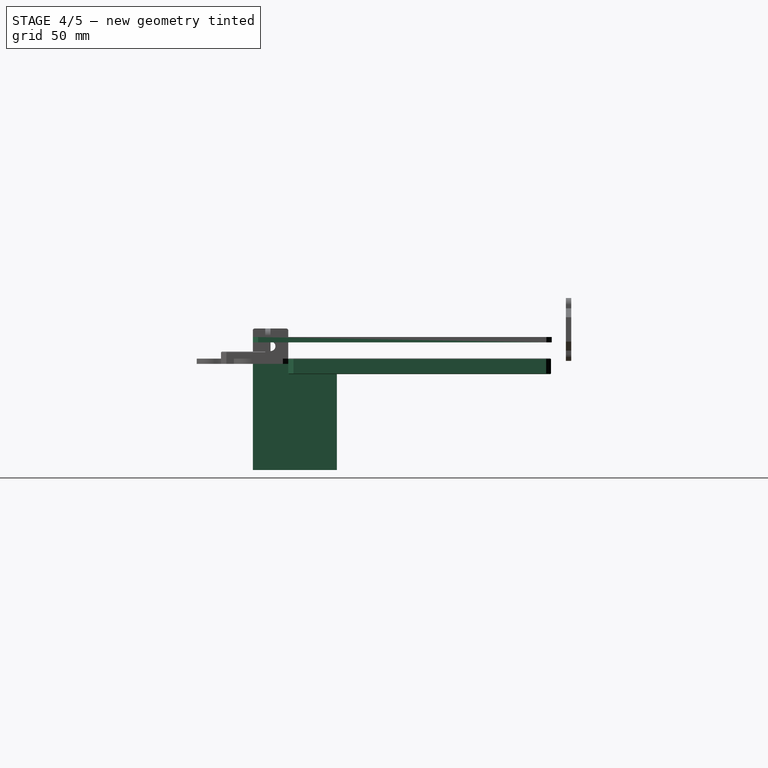
[diagram: stage 4 of 5 — right view after this stage's code; geometry added in this stage tinted green]
FEATURE [PartDesign::SubShapeBinder] Binder001  label="Binder001(Chamfer008)..."
  BindCopyOnChange = 0
  BindMode = 0
  ClaimChildren = false
  Context = -> Part015 [Body007.Binder001.]
  EdgeTolerance = 1e-06
  FillStyle = 0
  FixShape = 1
  Fuse = false
  InvalidShape = false
  MakeFace = true
  MergeEdges = true
  OffsetFill = false
  OffsetIntersection = false
  OffsetJoinType = 0
  OffsetOpenResult = false
  Outline = false
  PartialLoad = false
  Relative = true
  SplitEdges = false
  Support = -> [Body005[Chamfer008.Face1,Chamfer008.Face38,Chamfer008.Face31,Chamfer008.Face62]]
  TightBound = false
  TreeRank = 606
  ValidateShape = false
  _Version = 8
FEATURE [Sketcher::SketchObject] Sketch035
  ArcFitTolerance = 1e-06
  AttachmentSupport = -> [Binder001]
  ExternalBSplineMaxDegree = 5
  ExternalBSplineTolerance = 0.0001
  ExternalGeometry = -> [Binder001]
  FixShape = 1
  FullyConstrained = true
  InternalTolerance = 1e-06
  InvalidShape = false
  MakeInternals = false
  MapMode = 5
  Placement = pos=(0,0,15.2) rot=(1,0,0;3.14159rad)
  Support = -> [Binder001]
  TreeRank = 607
  ValidateShape = false
  sketch-geometry (10):
    g0: Circle CenterX=10 CenterY=-22 CenterZ=0 NormalX=0 NormalY=0 NormalZ=1 AngleXU=0 Radius=1.6
    g1: Circle CenterX=111.5 CenterY=-22 CenterZ=0 NormalX=0 NormalY=0 NormalZ=1 AngleXU=0 Radius=1.6
    g2: Circle CenterX=136.5 CenterY=-45 CenterZ=0 NormalX=0 NormalY=0 NormalZ=1 AngleXU=0 Radius=1.6
    g3: Circle CenterX=136.5 CenterY=-155 CenterZ=0 NormalX=0 NormalY=0 NormalZ=1 AngleXU=0 Radius=1.6
    g4: Circle CenterX=10 CenterY=-155 CenterZ=0 NormalX=0 NormalY=0 NormalZ=1 AngleXU=0 Radius=1.6
    g5: LineSegment StartX=-32.5 StartY=-18 StartZ=0 EndX=116.5 EndY=-18 EndZ=0
    g6: LineSegment StartX=146.5 StartY=-10 StartZ=0 EndX=146.5 EndY=10 EndZ=0
    g7: LineSegment StartX=146.5 StartY=10 StartZ=0 EndX=116.5 EndY=10 EndZ=0
    g8: LineSegment StartX=116.5 StartY=-18 StartZ=0 EndX=116.5 EndY=10 EndZ=0
    g9: LineSegment StartX=146.5 StartY=-49 StartZ=0 EndX=146.5 EndY=-151 EndZ=0
  constraints (19):
    c: Coincident(g0,g-10)
    c: Coincident(g1,g-11)
    c: Coincident(g2,g-14)
    c: Coincident(g3,g-12)
    c: Coincident(g4,g-13)
    c: Equal(g0, g1-g4) x4
    c: Diameter(g0) = 3.2
    c: Coincident(g5,g-8)
    c: Coincident(g6,g-9)
    c: Vertical(g6)
    c: Coincident(g7,g6)
    c: Horizontal(g7)
    c: Coincident(g5,g-15)
    c: Coincident(g8,g5)
    c: Coincident(g8,g7)
    c: Vertical(g8)
    c: Coincident(g9,g-9)
    c: Coincident(g9,g-3)
    c: DistanceY(g-1,g6) = 10
FEATURE [PartDesign::Pad] Pad011
  AddSubType = 0
  AlongSketchNormal = false
  AutoTaperInnerAngle = true
  CheckUpToFaceLimits = true
  ClaimChildren = false
  Direction = (0,0,-1)
  Fit = 0
  FitJoin = 0
  FixShape = 1
  InnerFit = 0
  InnerFitJoin = 0
  InvalidShape = false
  Length = 3
  Length2 = 10
  Linearize = true
  NewSolid = false
  Profile = -> Sketch035
  ReferenceAxis = -> Sketch035 [N_Axis]
  Refine = true
  Suppress = false
  TaperInnerAngle = 0
  TaperInnerAngleRev = 0
  TreeRank = 608
  Type = 0
  ValidateShape = true
  _ProfileBasedVersion = 1
FEATURE [PartDesign::Chamfer] Chamfer009
  AddSubType = 0
  Angle = 45
  Base = -> Pad011 [Edge23,Edge20]
  BaseFeature = -> Pad011
  ChamferType = 0
  FixShape = 1
  FlipDirection = false
  InvalidShape = false
  NewSolid = false
  Refine = true
  Size = 3
  Size2 = 1
  SupportTransform = false
  Suppress = false
  TreeRank = 609
  UseAllEdges = false
  ValidateShape = true
FEATURE [Sketcher::SketchObject] Sketch036
  ArcFitTolerance = 1e-06
  AttachmentSupport = -> [Chamfer009]
  ExternalBSplineMaxDegree = 5
  ExternalBSplineTolerance = 0.0001
  FixShape = 1
  FullyConstrained = true
  InternalTolerance = 1e-06
  InvalidShape = false
  MakeInternals = false
  MapMode = 5
  Placement = pos=(0,0,12.2) rot=(1,0,0;3.14159rad)
  Support = -> [Chamfer009]
  TreeRank = 610
  ValidateShape = false
  sketch-geometry (9):
    g0: LineSegment [constr] StartX=0 StartY=-85 StartZ=0 EndX=0 EndY=-125 EndZ=0
    g1: LineSegment [constr] StartX=0 StartY=-125 StartZ=0 EndX=40 EndY=-125 EndZ=0
    g2: LineSegment [constr] StartX=40 StartY=-125 StartZ=0 EndX=40 EndY=-85 EndZ=0
    g3: LineSegment [constr] StartX=40 StartY=-85 StartZ=0 EndX=0 EndY=-85 EndZ=0
    g4: GeomPoint [constr] X=20 Y=-105 Z=0
    g5: Circle CenterX=40 CenterY=-85 CenterZ=0 NormalX=0 NormalY=0 NormalZ=1 AngleXU=0 Radius=1.6
    g6: Circle CenterX=0 CenterY=-85 CenterZ=0 NormalX=0 NormalY=0 NormalZ=1 AngleXU=0 Radius=1.6
    g7: Circle CenterX=0 CenterY=-125 CenterZ=0 NormalX=0 NormalY=0 NormalZ=1 AngleXU=0 Radius=1.6
    g8: Circle CenterX=40 CenterY=-125 CenterZ=0 NormalX=0 NormalY=0 NormalZ=1 AngleXU=0 Radius=1.6
  constraints (21):
    c: Coincident(g0,g1)
    c: Coincident(g1,g2)
    c: Coincident(g2,g3)
    c: Coincident(g3,g0)
    c: Horizontal(g1)
    c: Horizontal(g3)
    c: Vertical(g0)
    c: Vertical(g2)
    c: Symmetric(g1,g0,g4)
    c: Equal(g3,g2)
    c: DistanceX(g3,g3) = 40
    c: PointOnObject(g0,g-2)
    c: Coincident(g5,g2)
    c: Coincident(g6,g0)
    c: Coincident(g7,g0)
    c: Coincident(g8,g1)
    c: Equal(g5,g6)
    c: Equal(g5,g7)
    c: Equal(g5,g8)
    c: Diameter(g5) = 3.2
    c: DistanceY(g4,g-1) = 105
FEATURE [PartDesign::Pocket] Pocket026
  AddSubType = 1
  AlongSketchNormal = false
  AutoTaperInnerAngle = true
  BaseFeature = -> Chamfer009
  CheckUpToFaceLimits = true
  ClaimChildren = false
  Direction = (0,0,1)
  Fit = 0
  FitJoin = 0
  FixShape = 1
  InnerFit = 0
  InnerFitJoin = 0
  InvalidShape = false
  Length = 5
  Length2 = 10
  Linearize = true
  NewSolid = false
  Profile = -> Sketch036
  ReferenceAxis = -> Sketch036 [N_Axis]
  Refine = true
  Suppress = false
  TaperInnerAngle = 0
  TaperInnerAngleRev = 0
  TreeRank = 611
  Type = 1
  ValidateShape = true
  _ProfileBasedVersion = 1
  _Version = 1
FEATURE [Sketcher::SketchObject] Sketch037
  ArcFitTolerance = 1e-06
  AttachmentSupport = -> [Pocket026]
  ExternalBSplineMaxDegree = 5
  ExternalBSplineTolerance = 0.0001
  FixShape = 1
  FullyConstrained = true
  InternalTolerance = 1e-06
  InvalidShape = false
  MakeInternals = false
  MapMode = 5
  Placement = pos=(0,0,12.2) rot=(1,0,0;3.14159rad)
  Support = -> [Pocket026]
  TreeRank = 612
  ValidateShape = false
  sketch-geometry (5):
    g0: GeomPoint X=20 Y=-105 Z=0
    g1: ArcOfCircle CenterX=30 CenterY=-105 CenterZ=0 NormalX=0 NormalY=0 NormalZ=1 AngleXU=0 Radius=1.5 StartAngle=1.5708 EndAngle=4.71239
    g2: ArcOfCircle CenterX=40 CenterY=-105 CenterZ=0 NormalX=0 NormalY=0 NormalZ=1 AngleXU=0 Radius=1.5 StartAngle=4.71239 EndAngle=7.85398
    g3: LineSegment StartX=30 StartY=-106.5 StartZ=0 EndX=40 EndY=-106.5 EndZ=0
    g4: LineSegment StartX=40 StartY=-103.5 StartZ=0 EndX=30 EndY=-103.5 EndZ=0
  constraints (12):
    c: DistanceX(g0) = 20
    c: DistanceY(g0) = -105
    c: Tangent(g1,g3) = -1.5708
    c: Tangent(g3,g2) = -1.5708
    c: Tangent(g2,g4) = -1.5708
    c: Tangent(g4,g1) = -1.5708
    c: Equal(g1,g2)
    c: Horizontal(g3)
    c: DistanceY(g2,g2) = 3
    c: DistanceX(g0,g1) = 10
    c: Horizontal(g0,g2)
    c: DistanceX(g0,g2) = 20
FEATURE [PartDesign::Pocket] Pocket027
  AddSubType = 1
  AlongSketchNormal = false
  AutoTaperInnerAngle = true
  BaseFeature = -> Pocket026
  CheckUpToFaceLimits = true
  ClaimChildren = false
  Direction = (0,0,1)
  Fit = 0
  FitJoin = 0
  FixShape = 1
  InnerFit = 0
  InnerFitJoin = 0
  InvalidShape = false
  Length = 5
  Length2 = 10
  Linearize = true
  NewSolid = false
  Profile = -> Sketch037
  ReferenceAxis = -> Sketch037 [N_Axis]
  Refine = true
  Suppress = false
  TaperInnerAngle = 0
  TaperInnerAngleRev = 0
  TreeRank = 613
  Type = 1
  ValidateShape = true
  _ProfileBasedVersion = 1
  _Version = 1
FEATURE [Sketcher::SketchObject] Sketch038
  ArcFitTolerance = 1e-06
  AttachmentSupport = -> [Pocket027]
  ExternalBSplineMaxDegree = 5
  ExternalBSplineTolerance = 0.0001
  FixShape = 1
  FullyConstrained = true
  InternalTolerance = 1e-06
  InvalidShape = false
  MakeInternals = false
  MapMode = 5
  Placement = pos=(0,0,12.2) rot=(1,0,0;3.14159rad)
  Support = -> [Pocket027]
  TreeRank = 614
  ValidateShape = false
  sketch-geometry (1):
    g0: LineSegment StartX=0 StartY=-105 StartZ=0 EndX=20 EndY=-105 EndZ=0
  constraints (4):
    c: PointOnObject(g0,g-2)
    c: Horizontal(g0)
    c: DistanceX(g0,g0) = 20
    c: DistanceY(g0) = -105
FEATURE [PartDesign::Line] DatumLine
  AttacherType = Attacher::AttachEngineLine
  AttachmentSupport = -> [Sketch038,Pocket027]
  FixShape = 1
  InvalidShape = false
  Length = 10
  MapMode = 46
  MinimumLength = 10
  Placement = pos=(20,105,12.2) rot=(1,0,0;3.14159rad)
  ResizeMode = 0
  Support = -> [Sketch038,Pocket027]
  TreeRank = 615
  ValidateShape = false
FEATURE [PartDesign::PolarPattern] PolarPattern
  AddSubType = 0
  Angle = 360
  Axis = -> DatumLine
  BaseFeature = -> Pocket027
  CopyShape = false
  FixShape = 1
  InvalidShape = false
  NewSolid = false
  Occurrences = 14
  OriginalSubs = -> [Pocket027]
  Originals = -> [Pocket027]
  ParallelTransform = true
  Refine = true
  SubTransform = true
  Suppress = false
  TreeRank = 616
  ValidateShape = true
  _Version = 3
FEATURE [Sketcher::SketchObject] Sketch039
  ArcFitTolerance = 1e-06
  AttachmentSupport = -> [PolarPattern]
  ExternalBSplineMaxDegree = 5
  ExternalBSplineTolerance = 0.0001
  ExternalGeometry = -> [Sketch038]
  FixShape = 1
  FullyConstrained = true
  InternalTolerance = 1e-06
  InvalidShape = false
  MakeInternals = false
  MapMode = 5
  Placement = pos=(0,0,12.2) rot=(1,0,0;3.14159rad)
  Support = -> [PolarPattern]
  TreeRank = 617
  ValidateShape = false
  sketch-geometry (1):
    g0: Circle CenterX=20 CenterY=-105 CenterZ=0 NormalX=0 NormalY=0 NormalZ=1 AngleXU=0 Radius=5
  constraints (2):
    c: Coincident(g0,g-3)
    c: Diameter(g0) = 10
FEATURE [PartDesign::Pocket] Pocket028
  AddSubType = 1
  AlongSketchNormal = false
  AutoTaperInnerAngle = true
  BaseFeature = -> PolarPattern
  CheckUpToFaceLimits = true
  ClaimChildren = false
  Direction = (0,0,1)
  Fit = 0
  FitJoin = 0
  FixShape = 1
  InnerFit = 0
  InnerFitJoin = 0
  InvalidShape = false
  Length = 5
  Length2 = 10
  Linearize = true
  NewSolid = false
  Profile = -> Sketch039
  ReferenceAxis = -> Sketch039 [N_Axis]
  Refine = true
  Suppress = false
  TaperInnerAngle = 0
  TaperInnerAngleRev = 0
  TreeRank = 618
  Type = 1
  ValidateShape = true
  _ProfileBasedVersion = 1
  _Version = 1
FEATURE [Sketcher::SketchObject] Sketch040
  ArcFitTolerance = 1e-06
  AttachmentSupport = -> [Pocket028]
  ExternalBSplineMaxDegree = 5
  ExternalBSplineTolerance = 0.0001
  FixShape = 1
  FullyConstrained = true
  InternalTolerance = 1e-06
  InvalidShape = false
  MakeInternals = false
  MapMode = 5
  Placement = pos=(0,0,12.2) rot=(1,0,0;3.14159rad)
  Support = -> [Pocket028]
  TreeRank = 619
  ValidateShape = false
  sketch-geometry (4):
    g0: ArcOfCircle CenterX=0 CenterY=-75 CenterZ=0 NormalX=0 NormalY=0 NormalZ=1 AngleXU=0 Radius=1.5 StartAngle=1.5708 EndAngle=4.71239
    g1: ArcOfCircle CenterX=40 CenterY=-75 CenterZ=0 NormalX=0 NormalY=0 NormalZ=1 AngleXU=0 Radius=1.5 StartAngle=4.71239 EndAngle=7.85398
    g2: LineSegment StartX=0 StartY=-76.5 StartZ=0 EndX=40 EndY=-76.5 EndZ=0
    g3: LineSegment StartX=40 StartY=-73.5 StartZ=0 EndX=0 EndY=-73.5 EndZ=0
  constraints (10):
    c: Tangent(g0,g2) = -1.5708
    c: Tangent(g2,g1) = -1.5708
    c: Tangent(g1,g3) = -1.5708
    c: Tangent(g3,g0) = -1.5708
    c: Equal(g0,g1)
    c: PointOnObject(g0,g-2)
    c: Horizontal(g2)
    c: DistanceX(g0,g1) = 40
    c: DistanceY(g1,g1) = 3
    c: DistanceY(g0,g-1) = 75
FEATURE [PartDesign::Pocket] Pocket029
  AddSubType = 1
  AlongSketchNormal = false
  AutoTaperInnerAngle = true
  BaseFeature = -> Pocket028
  CheckUpToFaceLimits = true
  ClaimChildren = false
  Direction = (0,0,1)
  Fit = 0
  FitJoin = 0
  FixShape = 1
  InnerFit = 0
  InnerFitJoin = 0
  InvalidShape = false
  Length = 5
  Length2 = 10
  Linearize = true
  NewSolid = false
  Profile = -> Sketch040
  ReferenceAxis = -> Sketch040 [N_Axis]
  Refine = true
  Suppress = false
  TaperInnerAngle = 0
  TaperInnerAngleRev = 0
  TreeRank = 620
  Type = 1
  ValidateShape = true
  _ProfileBasedVersion = 1
  _Version = 1
FEATURE [PartDesign::LinearPattern] LinearPattern
  AddSubType = 0
  BaseFeature = -> Pocket029
  CopyShape = false
  Direction = -> Sketch040 [V_Axis]
  FixShape = 1
  InvalidShape = false
  Length = 40
  NewSolid = false
  Occurrences = 8
  OriginalSubs = -> [Pocket029]
  Originals = -> [Pocket029]
  ParallelTransform = true
  Refine = true
  SubTransform = true
  Suppress = false
  TreeRank = 621
  ValidateShape = true
  _Version = 3
FEATURE [Sketcher::SketchObject] Sketch041
  ArcFitTolerance = 1e-06
  AttachmentSupport = -> [LinearPattern]
  ExternalBSplineMaxDegree = 5
  ExternalBSplineTolerance = 0.0001
  ExternalGeometry = -> [LinearPattern]
  FixShape = 1
  FullyConstrained = true
  InternalTolerance = 1e-06
  InvalidShape = false
  MakeInternals = false
  MapMode = 5
  Placement = pos=(0,0,12.2) rot=(1,0,0;3.14159rad)
  Support = -> [LinearPattern]
  TreeRank = 622
  ValidateShape = false
  sketch-geometry (3):
    g0: Circle CenterX=96.5 CenterY=-37 CenterZ=0 NormalX=0 NormalY=0 NormalZ=1 AngleXU=0 Radius=1.6
    g1: Circle CenterX=121.5 CenterY=-62 CenterZ=0 NormalX=0 NormalY=0 NormalZ=1 AngleXU=0 Radius=1.6
    g2: LineSegment [constr] StartX=96.5 StartY=-37 StartZ=0 EndX=121.5 EndY=-62 EndZ=0
  constraints (8):
    c: Equal(g0,g1)
    c: Diameter(g0) = 3.2
    c: Coincident(g2,g0)
    c: Coincident(g2,g1)
    c: Angle(g-2,g2) = 0.785398
    c: DistanceX(g0,g1) = 25
    c: DistanceY(g0,g-3) = 15
    c: DistanceX(g0,g-3) = 15
FEATURE [PartDesign::Pocket] Pocket030
  AddSubType = 1
  AlongSketchNormal = false
  AutoTaperInnerAngle = true
  BaseFeature = -> LinearPattern
  CheckUpToFaceLimits = true
  ClaimChildren = false
  Direction = (0,0,1)
  Fit = 0
  FitJoin = 0
  FixShape = 1
  InnerFit = 0
  InnerFitJoin = 0
  InvalidShape = false
  Length = 5
  Length2 = 10
  Linearize = true
  NewSolid = false
  Profile = -> Sketch041
  ReferenceAxis = -> Sketch041 [N_Axis]
  Refine = true
  Suppress = false
  TaperInnerAngle = 0
  TaperInnerAngleRev = 0
  TreeRank = 623
  Type = 1
  ValidateShape = true
  _ProfileBasedVersion = 1
  _Version = 1
FEATURE [PartDesign::Body] Body007  label="CarterBottom"
  AutoGroupSolids = false
  ClaimAllChildren = false
  ExportMode = 0
  FixShape = 1
  Group = -> [Binder001,Sketch035,Pad011,Chamfer009,Sketch036,Pocket026,Sketch037,Pocket027,Sketch038,DatumLine,PolarPattern,Sketch039,Pocket028,Sketch040,Pocket029,LinearPattern,Sketch041,Pocket030]
  InvalidShape = false
  Origin = -> Origin024
  Placement = pos=(0,0,-12) rot=(0,0,1;0rad)
  SingleSolid = true
  Tip = -> Pocket030
  TreeRank = 605
  ValidateShape = false
  _ExportChildren = -> [Binder001,Pad011,Chamfer009,Pocket026,Pocket027,Sketch038,DatumLine,PolarPattern,Pocket028,Pocket029,LinearPattern,Pocket030]
  _GroupVersion = 1
FEATURE [Sketcher::SketchObject] Sketch042
  ArcFitTolerance = 1e-06
  AttachmentSupport = -> [Fillet005]
  ExternalBSplineMaxDegree = 5
  ExternalBSplineTolerance = 0.0001
  ExternalGeometry = -> [Fillet005]
  FixShape = 1
  FullyConstrained = true
  InternalTolerance = 1e-06
  InvalidShape = false
  MakeInternals = false
  MapMode = 5
  Placement = pos=(0,0,39) rot=(0,0,1;0rad)
  Support = -> [Fillet005]
  TreeRank = 624
  ValidateShape = false
  sketch-geometry (4):
    g0: LineSegment StartX=105 StartY=10 StartZ=0 EndX=50 EndY=10 EndZ=0
    g1: LineSegment StartX=50 StartY=10 StartZ=0 EndX=50 EndY=16 EndZ=0
    g2: LineSegment StartX=50 StartY=16 StartZ=0 EndX=105 EndY=16 EndZ=0
    g3: LineSegment StartX=105 StartY=16 StartZ=0 EndX=105 EndY=10 EndZ=0
  constraints (11):
    c: Coincident(g0,g1)
    c: Coincident(g1,g2)
    c: Coincident(g2,g3)
    c: Coincident(g3,g0)
    c: Horizontal(g0)
    c: Horizontal(g2)
    c: Vertical(g1)
    c: Vertical(g3)
    c: Coincident(g0,g-3)
    c: DistanceX(g2,g2) = 55
    c: DistanceY(g3,g3) = 6
FEATURE [PartDesign::Pocket] Pocket031
  AddSubType = 1
  AlongSketchNormal = false
  AutoTaperInnerAngle = true
  BaseFeature = -> Chamfer006
  CheckUpToFaceLimits = true
  ClaimChildren = false
  Direction = (0,0,-1)
  Fit = 0
  FitJoin = 0
  FixShape = 1
  InnerFit = 0
  InnerFitJoin = 0
  InvalidShape = false
  Length = 22
  Length2 = 10
  Linearize = true
  NewSolid = false
  Profile = -> Sketch042
  ReferenceAxis = -> Sketch042 [N_Axis]
  Refine = true
  Suppress = false
  TaperInnerAngle = 0
  TaperInnerAngleRev = 0
  TreeRank = 625
  Type = 0
  ValidateShape = true
  _ProfileBasedVersion = 1
  _Version = 1
FEATURE [PartDesign::Chamfer] Chamfer007
  AddSubType = 0
  Angle = 45
  Base = -> Pocket031 [Face15]
  BaseFeature = -> Pocket031
  ChamferType = 0
  FixShape = 1
  FlipDirection = false
  InvalidShape = false
  NewSolid = false
  Refine = true
  Size = 0.6
  Size2 = 1
  SupportTransform = false
  Suppress = false
  TreeRank = 594
  UseAllEdges = false
  ValidateShape = true
FEATURE [PartDesign::Chamfer] Chamfer008
  AddSubType = 0
  Angle = 45
  Base = -> Chamfer007 [Edge416,Edge418,Edge312,Edge311,Edge195,Edge190,Edge415,Edge313,Edge342,Edge165,Edge166,Edge344]
  BaseFeature = -> Chamfer007
  ChamferType = 0
  FixShape = 1
  FlipDirection = false
  InvalidShape = false
  NewSolid = false
  Refine = true
  Size = 1
  Size2 = 1
  SupportTransform = false
  Suppress = false
  TreeRank = 595
  UseAllEdges = false
  ValidateShape = true
FEATURE [PartDesign::Body] Body006  label="CarterTop"
  AutoGroupSolids = false
  ClaimAllChildren = false
  ExportMode = 0
  FixShape = 1
  Group = -> [Binder,Sketch026,Pad009,Chamfer002,Sketch027,Import,Pocket018,Fillet004,Sketch043,Import001,Pocket032]
  InvalidShape = false
  Origin = -> Origin022
  SingleSolid = true
  Tip = -> Pocket032
  TreeRank = 561
  ValidateShape = false
  _ExportChildren = -> [Binder,Pad009,Chamfer002,Import,Pocket018,Fillet004,Import001,Pocket032]
  _GroupVersion = 1
FEATURE [TechDraw::DrawProjGroupItem] ProjItem001  label="Front001"
  CoarseView = false
  Direction = (0,0,1)
  Focus = 100
  HardHidden = false
  IsoCount = 0
  IsoHidden = false
  IsoVisible = false
  LockPosition = true
  Perspective = false
  Rotation = 0
  RotationVector = (-1,0,0)
  ScaleType = 2
  ScrubCount = 0
  SeamHidden = false
  SeamVisible = false
  SmoothHidden = false
  SmoothVisible = false
  Source = -> [Pocket032]
  TreeRank = 640
  Type = 0
  X = 0
  XDirection = (-1,0,0)
  Y = 0
FEATURE [TechDraw::DrawProjGroup] ProjGroup001
  Anchor = -> ProjItem001
  AutoDistribute = true
  LockPosition = false
  ProjectionType = 0
  Rotation = 0
  ScaleType = 0
  Source = -> [Pocket032]
  TreeRank = 641
  Views = -> [ProjItem001]
  X = 97.5113
  Y = 136.539
  spacingX = 15
  spacingY = 15
FEATURE [TechDraw::DrawPage] Page001  label="Laser3mm-CarterTop"
  KeepUpdated = true
  NextBalloonIndex = 1
  ProjectionType = 0
  Template = -> Template001
  TreeRank = 634
  Views = -> [ProjGroup001]
FEATURE [Sketcher::SketchObject] Sketch044
  ArcFitTolerance = 1e-06
  AttachmentSupport = -> [XY_Plane021]
  ExternalBSplineMaxDegree = 5
  ExternalBSplineTolerance = 0.0001
  FixShape = 1
  FullyConstrained = true
  InternalTolerance = 1e-06
  InvalidShape = false
  MakeInternals = false
  MapMode = 5
  Support = -> [XY_Plane021]
  TreeRank = 652
  ValidateShape = false
  sketch-geometry (12):
    g0: LineSegment StartX=-20 StartY=32.5 StartZ=0 EndX=-20 EndY=-10 EndZ=0
    g1: LineSegment [constr] StartX=-20 StartY=-10 StartZ=0 EndX=20 EndY=-10 EndZ=0
    g2: LineSegment StartX=20 StartY=-10 StartZ=0 EndX=20 EndY=32.5 EndZ=0
    g3: LineSegment StartX=20 StartY=32.5 StartZ=0 EndX=-20 EndY=32.5 EndZ=0
    g4: GeomPoint [constr] X=0 Y=11.25 Z=0
    g5: LineSegment StartX=-30 StartY=37.5 StartZ=0 EndX=-30 EndY=-10 EndZ=0
    g6: LineSegment [constr] StartX=-30 StartY=-10 StartZ=0 EndX=30 EndY=-10 EndZ=0
    g7: LineSegment StartX=30 StartY=-10 StartZ=0 EndX=30 EndY=37.5 EndZ=0
    g8: LineSegment StartX=30 StartY=37.5 StartZ=0 EndX=-30 EndY=37.5 EndZ=0
    g9: GeomPoint [constr] X=0 Y=13.75 Z=0
    g10: LineSegment StartX=20 StartY=-10 StartZ=0 EndX=30 EndY=-10 EndZ=0
    g11: LineSegment StartX=-20 StartY=-10 StartZ=0 EndX=-30 EndY=-10 EndZ=0
  constraints (30):
    c: Coincident(g0,g1)
    c: Coincident(g1,g2)
    c: Coincident(g2,g3)
    c: Coincident(g3,g0)
    c: Horizontal(g1)
    c: Horizontal(g3)
    c: Vertical(g0)
    c: Vertical(g2)
    c: Symmetric(g1,g0,g4)
    c: PointOnObject(g4,g-2)
    c: DistanceX(g1,g1) = 40
    c: DistanceY(g1,g-1) = 10
    c: DistanceY(g-1,g2) = 32.5
    c: Coincident(g5,g6)
    c: Coincident(g6,g7)
    c: Coincident(g7,g8)
    c: Coincident(g8,g5)
    c: Horizontal(g6)
    c: Horizontal(g8)
    c: Vertical(g5)
    c: Vertical(g7)
    c: Symmetric(g6,g5,g9)
    c: PointOnObject(g9,g-2)
    c: PointOnObject(g2,g6)
    c: DistanceX(g2,g7) = 10
    c: DistanceY(g2,g7) = 5
    c: Coincident(g10,g2)
    c: Coincident(g10,g7)
    c: Coincident(g11,g0)
    c: Coincident(g11,g5)
FEATURE [PartDesign::Pad] Pad012
  AddSubType = 0
  AlongSketchNormal = false
  AutoTaperInnerAngle = true
  CheckUpToFaceLimits = true
  ClaimChildren = false
  Direction = (0,0,1)
  Fit = 0
  FitJoin = 0
  FixShape = 1
  InnerFit = 0
  InnerFitJoin = 0
  InvalidShape = false
  Length = 60
  Length2 = 10
  Linearize = true
  NewSolid = false
  Profile = -> Sketch044
  ReferenceAxis = -> Sketch044 [N_Axis]
  Refine = true
  Reversed = true
  Suppress = false
  TaperInnerAngle = 0
  TaperInnerAngleRev = 0
  TreeRank = 653
  Type = 0
  ValidateShape = true
  _ProfileBasedVersion = 1
FEATURE [PartDesign::Body] Body008  label="SupportPorteBobine"
  AutoGroupSolids = false
  ClaimAllChildren = false
  ExportMode = 0
  FixShape = 1
  Group = -> [Sketch044,Pad012,Sketch045,Sketch046,Pad013,Sketch047,Pad014,Pocket033,Sketch048,Pocket034,Sketch049,Pocket035,Sketch050,Pocket036,Chamfer010,Sketch051,Pad015,Mirrored,Sketch052,Pocket037,Chamfer011,Fillet006,Chamfer012,Chamfer013,Fillet007,Chamfer014,Binder002,Pocket,Chamfer015]
  InvalidShape = false
  Origin = -> Origin025
  Placement = pos=(85,0,394) rot=(0,0,1;0rad)
  SingleSolid = true
  Tip = -> Chamfer015
  TreeRank = 651
  ValidateShape = false
  _ExportChildren = -> [Pad012,Pad013,Pad014,Pocket033,Pocket034,Pocket035,Pocket036,Chamfer010,Pad015,Mirrored,Pocket037,Chamfer011,Fillet006,Chamfer012,Chamfer013,Fillet007,Chamfer014,Pocket,Chamfer015]
  _GroupVersion = 1
FEATURE [PartDesign::SubShapeBinder] Binder003  label="Binder003(Pad011)"
  BindCopyOnChange = 0
  BindMode = 2
  ClaimChildren = false
  Context = -> Part015 [Body.Pad.Binder003.]
  EdgeTolerance = 1e-06
  FillStyle = 0
  FixShape = 1
  Fuse = false
  InvalidShape = false
  MakeFace = true
  MergeEdges = true
  OffsetFill = false
  OffsetIntersection = false
  OffsetJoinType = 0
  OffsetOpenResult = false
  Outline = false
  PartialLoad = false
  Relative = true
  SplitEdges = false
  TightBound = false
  TreeRank = 693
  ValidateShape = false
  _Version = 8
FEATURE [PartDesign::Pad] Pad
  AddSubType = 0
  AlongSketchNormal = false
  AutoTaperInnerAngle = true
  CheckUpToFaceLimits = true
  ClaimChildren = false
  Direction = (0,0,1)
  Fit = -0.4
  FitJoin = 0
  FixShape = 1
  InnerFit = 0
  InnerFitJoin = 0
  InvalidShape = false
  Length = 9
  Length2 = 10
  Linearize = true
  NewSolid = false
  Profile = -> Binder003
  Refine = true
  Reversed = true
  Suppress = false
  TaperInnerAngle = 0
  TaperInnerAngleRev = 0
  TreeRank = 694
  Type = 0
  ValidateShape = true
  _ProfileBasedVersion = 1
FEATURE [Sketcher::SketchObject] Sketch
  ArcFitTolerance = 1e-06
  AttachmentSupport = -> [Pad]
  ExternalBSplineMaxDegree = 5
  ExternalBSplineTolerance = 0.0001
  ExternalGeometry = -> [Pad]
  FixShape = 1
  FullyConstrained = true
  InternalTolerance = 1e-06
  InvalidShape = false
  MakeInternals = false
  MapMode = 5
  Placement = pos=(0,0,-5.8) rot=(1,0,0;3.14159rad)
  Support = -> [Pad]
  TreeRank = 695
  ValidateShape = false
  sketch-geometry (8):
    g0: LineSegment StartX=-27.5 StartY=-26 StartZ=0 EndX=132.5 EndY=-26 EndZ=0
    g1: LineSegment StartX=132.5 StartY=-26 StartZ=0 EndX=132.5 EndY=-151 EndZ=0
    g2: LineSegment StartX=132.5 StartY=-151 StartZ=0 EndX=-27.5 EndY=-151 EndZ=0
    g3: LineSegment StartX=-27.5 StartY=-151 StartZ=0 EndX=-27.5 EndY=-26 EndZ=0
    g4: LineSegment StartX=116.9 StartY=9.6 StartZ=0 EndX=146.1 EndY=9.6 EndZ=0
    g5: LineSegment StartX=146.1 StartY=9.6 StartZ=0 EndX=146.1 EndY=-10 EndZ=0
    g6: LineSegment StartX=146.1 StartY=-10 StartZ=0 EndX=116.9 EndY=-10 EndZ=0
    g7: LineSegment StartX=116.9 StartY=-10 StartZ=0 EndX=116.9 EndY=9.6 EndZ=0
  constraints (22):
    c: Coincident(g0,g1)
    c: Coincident(g1,g2)
    c: Coincident(g2,g3)
    c: Coincident(g3,g0)
    c: Horizontal(g0)
    c: Horizontal(g2)
    c: Vertical(g1)
    c: Vertical(g3)
    c: DistanceY(g0,g-1) = 26
    c: DistanceX(g0,g-1) = 27.5
    c: DistanceY(g3,g3) = 125
    c: DistanceX(g0,g0) = 160
    c: Coincident(g4,g5)
    c: Coincident(g5,g6)
    c: Coincident(g6,g7)
    c: Coincident(g7,g4)
    c: Horizontal(g6)
    c: Vertical(g5)
    c: Vertical(g7)
    c: Coincident(g-3,g4)
    c: Coincident(g-4,g4)
    c: DistanceY(g-4,g6) = 8
FEATURE [PartDesign::Pocket] Pocket038
  AddSubType = 1
  AlongSketchNormal = false
  AutoTaperInnerAngle = true
  BaseFeature = -> Pad
  CheckUpToFaceLimits = true
  ClaimChildren = false
  Direction = (0,0,1)
  Fit = 0
  FitJoin = 0
  FixShape = 1
  InnerFit = 0
  InnerFitJoin = 0
  InvalidShape = false
  Length = 5
  Length2 = 10
  Linearize = true
  NewSolid = false
  Profile = -> Sketch
  ReferenceAxis = -> Sketch [N_Axis]
  Refine = true
  Suppress = false
  TaperInnerAngle = 0
  TaperInnerAngleRev = 0
  TreeRank = 696
  Type = 1
  ValidateShape = true
  _ProfileBasedVersion = 1
  _Version = 1
FEATURE [PartDesign::Chamfer] Chamfer016
  AddSubType = 0
  Angle = 45
  Base = -> Pocket038 [Edge43,Edge6]
  BaseFeature = -> Pocket038
  ChamferType = 0
  FixShape = 1
  FlipDirection = false
  InvalidShape = false
  NewSolid = false
  Refine = true
  Size = 3
  Size2 = 1
  SupportTransform = false
  Suppress = false
  TreeRank = 697
  UseAllEdges = false
  ValidateShape = true
FEATURE [PartDesign::Fillet] Fillet008
  AddSubType = 0
  Base = -> Chamfer016 [Edge59,Edge61,Edge60,Edge58]
  BaseFeature = -> Chamfer016
  FixShape = 1
  InvalidShape = false
  NewSolid = false
  Radius = 4
  Refine = true
  SupportTransform = false
  Suppress = false
  TreeRank = 698
  UseAllEdges = false
  ValidateShape = true
FEATURE [PartDesign::Chamfer] Chamfer017
  AddSubType = 0
  Angle = 45
  Base = -> Fillet008 [Face27,Face1]
  BaseFeature = -> Fillet008
  ChamferType = 0
  FixShape = 1
  FlipDirection = false
  InvalidShape = false
  NewSolid = false
  Refine = true
  Size = 0.4
  Size2 = 1
  SupportTransform = false
  Suppress = false
  TreeRank = 699
  UseAllEdges = false
  ValidateShape = true
FEATURE [PartDesign::Body] Body  label="Extension"
  AutoGroupSolids = false
  ClaimAllChildren = false
  ExportMode = 0
  FixShape = 1
  Group = -> [Binder003,Pad,Sketch,Pocket038,Chamfer016,Fillet008,Chamfer017]
  InvalidShape = false
  Origin = -> Origin026
  SingleSolid = true
  Tip = -> Chamfer017
  TreeRank = 692
  ValidateShape = false
  _ExportChildren = -> [Pad,Pocket038,Chamfer016,Fillet008,Chamfer017]
  _GroupVersion = 1
FEATURE [App::Link] Link046  label="Link046(CarterBottom)"
  AutoLinkLabel = true
  AutoPlacement = true
  LinkPlacement = pos=(0,1.07288e-06,-21) rot=(0,0,1;0rad)
  LinkedObject = -> Body007
  Placement = pos=(0,1.07288e-06,-21) rot=(0,0,1;0rad)
  SyncGroupVisibility = false
  TreeRank = 700
  _LinkVersion = 1
FEATURE [PartDesign::SubShapeBinder] Binder004  label="Binder004(Chamfer008)"
  BindCopyOnChange = 0
  BindMode = 0
  ClaimChildren = false
  Context = -> Part015 [Body009.Binder004.]
  EdgeTolerance = 1e-06
  FillStyle = 0
  FixShape = 1
  Fuse = false
  InvalidShape = false
  MakeFace = true
  MergeEdges = true
  OffsetFill = false
  OffsetIntersection = false
  OffsetJoinType = 0
  OffsetOpenResult = false
  Outline = false
  PartialLoad = false
  Relative = true
  SplitEdges = false
  Support = -> [Body005[Chamfer008.Face106]]
  TightBound = false
  TreeRank = 711
  ValidateShape = false
  _Version = 8
FEATURE [PartDesign::Pad] Pad016
  AddSubType = 0
  AlongSketchNormal = false
  AutoTaperInnerAngle = true
  CheckUpToFaceLimits = true
  ClaimChildren = false
  Direction = (0,1,0)
  Fit = -0.2
  FitJoin = 0
  FixShape = 1
  InnerFit = 0
  InnerFitJoin = 0
  InvalidShape = false
  Length = 3
  Length2 = 10
  Linearize = true
  NewSolid = false
  Profile = -> Binder004
  Refine = true
  Suppress = false
  TaperInnerAngle = 0
  TaperInnerAngleRev = 0
  TreeRank = 712
  Type = 0
  ValidateShape = true
  _ProfileBasedVersion = 1
FEATURE [Sketcher::SketchObject] Sketch053
  ArcFitTolerance = 1e-06
  AttachmentSupport = -> [Pad016]
  ExternalBSplineMaxDegree = 5
  ExternalBSplineTolerance = 0.0001
  ExternalGeometry = -> [Pad016]
  FixShape = 1
  FullyConstrained = true
  InternalTolerance = 1e-06
  InvalidShape = false
  MakeInternals = false
  MapMode = 5
  Placement = pos=(0,170,0) rot=(0,0.707107,0.707107;3.14159rad)
  Support = -> [Pad016]
  TreeRank = 713
  ValidateShape = false
  sketch-geometry (2):
    g0: Circle CenterX=-109.5 CenterY=33.5 CenterZ=0 NormalX=0 NormalY=0 NormalZ=1 AngleXU=0 Radius=1.6
    g1: Circle CenterX=-35.5 CenterY=5.5 CenterZ=0 NormalX=0 NormalY=0 NormalZ=1 AngleXU=0 Radius=1.6
  constraints (4):
    c: Coincident(g0,g-3)
    c: Coincident(g1,g-4)
    c: Equal(g1,g0)
    c: Diameter(g1) = 3.2
FEATURE [PartDesign::Pad] Pad017
  AddSubType = 0
  AlongSketchNormal = false
  AutoTaperInnerAngle = true
  BaseFeature = -> Pad016
  CheckUpToFaceLimits = true
  ClaimChildren = false
  Direction = (0,1,-2e-16)
  Fit = 0
  FitJoin = 0
  FixShape = 1
  InnerFit = 0
  InnerFitJoin = 0
  InvalidShape = false
  Length = 3
  Length2 = 10
  Linearize = true
  NewSolid = false
  Profile = -> Sketch053
  ReferenceAxis = -> Sketch053 [N_Axis]
  Refine = true
  Reversed = true
  Suppress = false
  TaperInnerAngle = 0
  TaperInnerAngleRev = 0
  TreeRank = 714
  Type = 0
  ValidateShape = true
  _ProfileBasedVersion = 1
FEATURE [App::Link] Link047  label="Link047(SD-Adaptator-Assembly)"
  AutoLinkLabel = true
  AutoPlacement = true
  LinkPlacement = pos=(92.0001,134.5,16) rot=(0,0,1;1.5708rad)
  LinkedObject = -> <external SD-Card-Adaptator.FCStd>#Part001
  Placement = pos=(92.0001,134.5,16) rot=(0,0,1;1.5708rad)
  SyncGroupVisibility = false
  TreeRank = 715
  _LinkVersion = 1
FEATURE [Part::SubShapeBinder] Import002  label="Import002(Chamfer)"
  BindCopyOnChange = 0
  BindMode = 0
  ClaimChildren = false
  Context = -> Part015 [Body009.Import002.]
  EdgeTolerance = 1e-06
  FillStyle = 0
  FixShape = 1
  Fuse = false
  InvalidShape = false
  MakeFace = false
  MergeEdges = true
  OffsetFill = false
  OffsetIntersection = false
  OffsetJoinType = 0
  OffsetOpenResult = false
  Outline = false
  PartialLoad = false
  Relative = true
  SplitEdges = false
  Support = -> [Link047[Body.Chamfer.]]
  TightBound = false
  TreeRank = 717
  ValidateShape = false
  _Version = 8
FEATURE [Sketcher::SketchObject] Sketch054
  ArcFitTolerance = 1e-06
  AttachmentSupport = -> [Pad017]
  ExternalBSplineMaxDegree = 5
  ExternalBSplineTolerance = 0.0001
  ExternalGeometry = -> [Import002]
  FixShape = 1
  FullyConstrained = true
  InternalTolerance = 1e-06
  InvalidShape = false
  MakeInternals = false
  MapMode = 5
  Placement = pos=(0,170,0) rot=(0,0.707107,0.707107;3.14159rad)
  Support = -> [Pad017]
  TreeRank = 716
  ValidateShape = false
  sketch-geometry (2):
    g0: Circle CenterX=-114.5 CenterY=17.75 CenterZ=0 NormalX=0 NormalY=0 NormalZ=1 AngleXU=0 Radius=1.6
    g1: Circle CenterX=-69.5001 CenterY=17.75 CenterZ=0 NormalX=0 NormalY=0 NormalZ=1 AngleXU=0 Radius=1.6
  constraints (4):
    c: Coincident(g0,g-12)
    c: Coincident(g1,g-11)
    c: Equal(g1,g0)
    c: Diameter(g1) = 3.2
FEATURE [PartDesign::Pocket] Pocket039
  AddSubType = 1
  AlongSketchNormal = false
  AutoTaperInnerAngle = true
  BaseFeature = -> Pad017
  CheckUpToFaceLimits = true
  ClaimChildren = false
  Direction = (0,-1,2e-16)
  Fit = 0
  FitJoin = 0
  FixShape = 1
  InnerFit = 0
  InnerFitJoin = 0
  InvalidShape = false
  Length = 5
  Length2 = 10
  Linearize = true
  NewSolid = false
  Profile = -> Sketch054
  ReferenceAxis = -> Sketch054 [N_Axis]
  Refine = true
  Suppress = false
  TaperInnerAngle = 0
  TaperInnerAngleRev = 0
  TreeRank = 718
  Type = 0
  ValidateShape = true
  _ProfileBasedVersion = 1
  _Version = 1
FEATURE [PartDesign::SubShapeBinder] Binder005  label="Binder005(Chamfer)"
  BindCopyOnChange = 0
  BindMode = 0
  ClaimChildren = false
  Context = -> Part015 [Body009.Binder005.]
  EdgeTolerance = 1e-06
  FillStyle = 0
  FixShape = 1
  Fuse = false
  InvalidShape = false
  MakeFace = true
  MergeEdges = true
  OffsetFill = false
  OffsetIntersection = false
  OffsetJoinType = 0
  OffsetOpenResult = false
  Outline = false
  PartialLoad = false
  Relative = true
  SplitEdges = false
  Support = -> [Link047[Body.Chamfer.Face44]]
  TightBound = false
  TreeRank = 719
  ValidateShape = false
  _Version = 8
FEATURE [Sketcher::SketchObject] Sketch055
  ArcFitTolerance = 1e-06
  AttachmentSupport = -> [Pocket039]
  ExternalBSplineMaxDegree = 5
  ExternalBSplineTolerance = 0.0001
  ExternalGeometry = -> [Binder005]
  FixShape = 1
  FullyConstrained = true
  InternalTolerance = 1e-06
  InvalidShape = false
  MakeInternals = false
  MapMode = 5
  Placement = pos=(0,170,0) rot=(0,0.707107,0.707107;3.14159rad)
  Support = -> [Pocket039]
  TreeRank = 720
  ValidateShape = false
  sketch-geometry (8):
    g0: ArcOfCircle CenterX=-108 CenterY=18.75 CenterZ=0 NormalX=0 NormalY=0 NormalZ=1 AngleXU=0 Radius=4 StartAngle=1.5708 EndAngle=3.14159
    g1: ArcOfCircle CenterX=-76.0001 CenterY=18.75 CenterZ=0 NormalX=0 NormalY=0 NormalZ=1 AngleXU=0 Radius=4 StartAngle=-9e-16 EndAngle=1.5708
    g2: ArcOfCircle CenterX=-73.0001 CenterY=13.75 CenterZ=0 NormalX=0 NormalY=0 NormalZ=1 AngleXU=0 Radius=1 StartAngle=4.71239 EndAngle=6.28319
    g3: ArcOfCircle CenterX=-111 CenterY=13.75 CenterZ=0 NormalX=0 NormalY=0 NormalZ=1 AngleXU=0 Radius=1 StartAngle=3.14159 EndAngle=4.71239
    g4: LineSegment StartX=-111 StartY=12.75 StartZ=0 EndX=-73.0001 EndY=12.75 EndZ=0
    g5: LineSegment StartX=-72.0001 StartY=13.75 StartZ=0 EndX=-72.0001 EndY=18.75 EndZ=0
    g6: LineSegment StartX=-76.0001 StartY=22.75 StartZ=0 EndX=-108 EndY=22.75 EndZ=0
    g7: LineSegment StartX=-112 StartY=18.75 StartZ=0 EndX=-112 EndY=13.75 EndZ=0
  constraints (17):
    c: Coincident(g0,g-3)
    c: Coincident(g0,g-10)
    c: Coincident(g1,g-9)
    c: Coincident(g1,g-10)
    c: Coincident(g1,g-8)
    c: Coincident(g2,g-7)
    c: Coincident(g2,g-8)
    c: Coincident(g3,g-5)
    c: Coincident(g3,g-5)
    c: Tangent(g4,g3) = -1.5708
    c: Coincident(g5,g2)
    c: Coincident(g5,g1)
    c: Coincident(g6,g1)
    c: Coincident(g6,g0)
    c: Tangent(g7,g0) = -1.5708
    c: Coincident(g7,g3)
    c: Tangent(g4,g2) = -1.5708
FEATURE [PartDesign::Pocket] Pocket040
  AddSubType = 1
  AlongSketchNormal = false
  AutoTaperInnerAngle = true
  BaseFeature = -> Pocket039
  CheckUpToFaceLimits = true
  ClaimChildren = false
  Direction = (0,-1,2e-16)
  Fit = 0.2
  FitJoin = 0
  FixShape = 1
  InnerFit = 0
  InnerFitJoin = 0
  InvalidShape = false
  Length = 5
  Length2 = 10
  Linearize = true
  Midplane = true
  NewSolid = false
  Profile = -> Sketch055
  ReferenceAxis = -> Sketch055 [N_Axis]
  Refine = true
  Suppress = false
  TaperInnerAngle = 0
  TaperInnerAngleRev = 0
  TreeRank = 721
  Type = 1
  ValidateShape = true
  _ProfileBasedVersion = 1
  _Version = 1
FEATURE [Sketcher::SketchObject] Sketch056
  ArcFitTolerance = 1e-06
  AttachmentSupport = -> [Pocket040]
  ExternalBSplineMaxDegree = 5
  ExternalBSplineTolerance = 0.0001
  ExternalGeometry = -> [Pocket040]
  FixShape = 1
  FullyConstrained = true
  InternalTolerance = 1e-06
  InvalidShape = false
  MakeInternals = false
  MapMode = 5
  Placement = pos=(0,170,0) rot=(0,0.707107,0.707107;3.14159rad)
  Support = -> [Pocket040]
  TreeRank = 722
  ValidateShape = false
  sketch-geometry (4):
    g0: ArcOfCircle CenterX=-114.5 CenterY=17.75 CenterZ=0 NormalX=0 NormalY=0 NormalZ=1 AngleXU=0 Radius=1.6 StartAngle=1.5708 EndAngle=4.71239
    g1: ArcOfCircle CenterX=-69.5001 CenterY=17.75 CenterZ=0 NormalX=0 NormalY=0 NormalZ=1 AngleXU=0 Radius=1.6 StartAngle=4.71239 EndAngle=7.85398
    g2: LineSegment StartX=-114.5 StartY=16.15 StartZ=0 EndX=-69.5001 EndY=16.15 EndZ=0
    g3: LineSegment StartX=-69.5001 StartY=19.35 StartZ=0 EndX=-114.5 EndY=19.35 EndZ=0
  constraints (8):
    c: Tangent(g0,g2) = -1.5708
    c: Tangent(g2,g1) = -1.5708
    c: Tangent(g1,g3) = -1.5708
    c: Tangent(g3,g0) = -1.5708
    c: Equal(g0,g1)
    c: Coincident(g0,g-3)
    c: Tangent(g1,g-4) = -1.5708
    c: PointOnObject(g1,g-4)
FEATURE [PartDesign::Pocket] Pocket041
  AddSubType = 1
  AlongSketchNormal = false
  AutoTaperInnerAngle = true
  BaseFeature = -> Pocket040
  CheckUpToFaceLimits = true
  ClaimChildren = false
  Direction = (0,-1,2e-16)
  Fit = 0
  FitJoin = 0
  FixShape = 1
  InnerFit = 0
  InnerFitJoin = 0
  InvalidShape = false
  Length = 5
  Length2 = 10
  Linearize = true
  Midplane = true
  NewSolid = false
  Profile = -> Sketch056
  ReferenceAxis = -> Sketch056 [N_Axis]
  Refine = true
  Suppress = false
  TaperInnerAngle = 0
  TaperInnerAngleRev = 0
  TreeRank = 723
  Type = 1
  ValidateShape = true
  _ProfileBasedVersion = 1
  _Version = 1
FEATURE [PartDesign::Fillet] Fillet009
  AddSubType = 0
  Base = -> Pocket041 [Edge130,Edge127,Edge133,Edge122]
  BaseFeature = -> Pocket041
  FixShape = 1
  InvalidShape = false
  NewSolid = false
  Radius = 1
  Refine = true
  SupportTransform = false
  Suppress = false
  TreeRank = 724
  UseAllEdges = false
  ValidateShape = true
FEATURE [PartDesign::Body] Body015  label="Plate K"
  AutoGroupSolids = false
  ClaimAllChildren = false
  ExportMode = 0
  FixShape = 1
  Group = -> [Sketch071,Pad026,Fillet017,Binder006,Sketch072,Pocket048,Pad027,Sketch073,Pad028,Fillet018,Pocket049]
  InvalidShape = false
  Origin = -> Origin033
  Placement = pos=(0,70,284) rot=(0,0,1;0rad)
  Tip = -> Pocket049
  TreeRank = 867
  ValidateShape = false
  _ExportChildren = -> [Pad026,Fillet017,Pocket048,Pad027,Pad028,Fillet018,Pocket049]
  _GroupVersion = 1
FEATURE [App::Part] Part015  label="V1"
  ClaimAllChildren = false
  ExportMode = 1
  Group = -> [Body005,Body006,Part016,Body007,Body008,ShapeString,Body,Link046,Body009,Link047,Body010,Body011,Body012,Body013,Body014,Body015]
  Origin = -> Origin020
  TreeRank = 507
  _ExportChildren = -> [Body005,Body006,Part016,Body007,Body008,ShapeString,Body,Link046,Body009,Link047,Body010,Body011,Body012,Body013,Body014,Body015]
  _GroupVersion = 1
FEATURE [TechDraw::DrawSVGTemplate] Template006
  Height = 210
  Orientation = 1
  Template = <path>
  TreeRank = 881
  Width = 297
FEATURE [TechDraw::DrawProjGroupItem] ProjItem006  label="Front006"
  CoarseView = false
  Direction = (0,1,0)
  Focus = 100
  HardHidden = false
  IsoCount = 0
  IsoHidden = false
  IsoVisible = false
  LockPosition = true
  Perspective = false
  Rotation = 0
  RotationVector = (-1,0,0)
  ScaleType = 2
  ScrubCount = 0
  SeamHidden = false
  SeamVisible = false
  SmoothHidden = false
  SmoothVisible = false
  Source = -> [Pocket049]
  TreeRank = 884
  Type = 0
  X = 0
  XDirection = (-1,0,0)
  Y = 0
FEATURE [TechDraw::DrawProjGroup] ProjGroup006
  Anchor = -> ProjItem006
  AutoDistribute = true
  LockPosition = false
  ProjectionType = 0
  Rotation = 0
  ScaleType = 0
  Source = -> [Pocket049]
  TreeRank = 885
  Views = -> [ProjItem006]
  X = 21.084
  Y = 188.822
  spacingX = 15
  spacingY = 15
FEATURE [TechDraw::DrawPage] Page006  label="Laser3mmKPlate"
  KeepUpdated = true
  NextBalloonIndex = 1
  ProjectionType = 0
  Template = -> Template006
  TreeRank = 882
  Views = -> [ProjGroup006]
FEATURE [App::DocumentObjectGroup] Group  label="Laser"
  ClaimAllChildren = true
  ExportMode = 1
  Group = -> [Page,Page001,Page002,Page003,Page004,Page006]
  TreeRank = 678
  _GroupVersion = 1
note: 7 file-system paths scrubbed to <path> (originals preserved in the JSON sidecar)

RESOLVED EXTERNAL PARTS (link-assembly join: the EXTERNAL_REF files above that resolve inside this repo's crawl, each included once):
---- part SD-Card-Adaptator.FCStd = doc fcstd_5ba2f36c1245 ----
FCSTD DOCUMENT  (FreeCAD 2024.113R14555 (Git shallow))
Label: SD-Card-Adaptator
License: All rights reserved
LicenseURL: https://en.wikipedia.org/wiki/All_rights_reserved
objects: Sketcher::SketchObject×6, PartDesign::Fillet×5, PartDesign::Pad×4, Part::Feature×3, App::Part×2, Part::SubShapeBinder×2, PartDesign::Pocket×2, PartDesign::Draft×2, PartDesign::Chamfer×2, PartDesign::Body×1
note: 63 computed .brp shape members not serialized (recipe doc carries the construction recipe); baked Part::Feature solids carry a one-line shape summary decoded from their .brp

FEATURE [Part::Feature] Compound  label="Micro SD to SD Card Extension Adapter Cable"
  FixShape = 1
  InvalidShape = false
  Placement = pos=(22.6,-1.7808,1.15) rot=(0.707107,-0.707107,0;3.14159rad)
  TreeRank = 6
  ValidateShape = false
  shape: bbox 136.9 x 21 x 1.702 mm, 54 faces, 4 solids (baked)
FEATURE [Part::Feature] Solid  label="Micro SD to SD Card Extension Adapter Cable - Part 01"
  FixShape = 1
  InvalidShape = false
  Placement = pos=(0,0,0) rot=(0,0,1;1.5708rad)
  TreeRank = 7
  ValidateShape = false
  shape: bbox 8.5 x 30.8 x 1.901 mm, 25 faces (baked)
FEATURE [Part::Feature] Compound001  label="SD Card Slot"
  FixShape = 1
  InvalidShape = false
  Placement = pos=(-2.82909,-1.1152,-46.9) rot=(0,0,1;0rad)
  TreeRank = 8
  ValidateShape = false
  shape: bbox 36.5 x 39.5 x 3.6 mm, 614 faces, 14 solids (baked)
FEATURE [App::Part] Part  label="Micro SD to SD Card Extension Adapter Cable"
  ClaimAllChildren = false
  ExportMode = 1
  Group = -> [Compound,Solid,Compound001]
  Origin = -> Origin
  TreeRank = 10
  _ExportChildren = -> [Compound,Solid,Compound001]
  _GroupVersion = 1
FEATURE [Sketcher::SketchObject] Sketch
  ArcFitTolerance = 1e-06
  AttachmentSupport = -> [YZ_Plane001]
  ExternalBSplineMaxDegree = 5
  ExternalBSplineTolerance = 0.0001
  FixShape = 1
  FullyConstrained = true
  InternalTolerance = 1e-06
  InvalidShape = false
  MakeInternals = false
  MapMode = 5
  Placement = pos=(0,0,0) rot=(0.57735,0.57735,0.57735;2.0944rad)
  Support = -> [YZ_Plane001]
  TreeRank = 33
  ValidateShape = false
  sketch-geometry (10):
    g0: LineSegment StartX=-16.5 StartY=2.25 StartZ=0 EndX=-16.5 EndY=-2.25 EndZ=0
    g1: LineSegment StartX=-16.5 StartY=-2.25 StartZ=0 EndX=16.5 EndY=-2.25 EndZ=0
    g2: LineSegment StartX=16.5 StartY=-2.25 StartZ=0 EndX=16.5 EndY=2.25 EndZ=0
    g3: LineSegment StartX=16.5 StartY=2.25 StartZ=0 EndX=-16.5 EndY=2.25 EndZ=0
    g4: GeomPoint [constr] X=0 Y=0 Z=0
    g5: LineSegment StartX=-20 StartY=-5 StartZ=0 EndX=-20 EndY=5 EndZ=0
    g6: LineSegment StartX=-20 StartY=5 StartZ=0 EndX=20 EndY=5 EndZ=0
    g7: LineSegment StartX=20 StartY=5 StartZ=0 EndX=20 EndY=-5 EndZ=0
    g8: LineSegment StartX=20 StartY=-5 StartZ=0 EndX=-20 EndY=-5 EndZ=0
    g9: GeomPoint [constr] X=0 Y=0 Z=0
  constraints (24):
    c: Coincident(g0,g1)
    c: Coincident(g1,g2)
    c: Coincident(g2,g3)
    c: Coincident(g3,g0)
    c: Horizontal(g1)
    c: Horizontal(g3)
    c: Vertical(g0)
    c: Vertical(g2)
    c: Symmetric(g1,g0,g4)
    c: Coincident(g4,g-1)
    c: DistanceY(g2,g2) = 4.5
    c: DistanceX(g3,g3) = 33
    c: Coincident(g5,g6)
    c: Coincident(g6,g7)
    c: Coincident(g7,g8)
    c: Coincident(g8,g5)
    c: Horizontal(g6)
    c: Horizontal(g8)
    c: Vertical(g5)
    c: Vertical(g7)
    c: Symmetric(g6,g5,g9)
    c: Coincident(g9,g4)
    c: DistanceX(g6,g6) = 40
    c: DistanceY(g7,g7) = 10
FEATURE [PartDesign::Pad] Pad
  AddSubType = 0
  AlongSketchNormal = false
  AutoTaperInnerAngle = true
  CheckUpToFaceLimits = true
  ClaimChildren = false
  Direction = (1,-2e-16,3e-16)
  Fit = 0
  FitJoin = 0
  FixShape = 1
  InnerFit = 0
  InnerFitJoin = 0
  InvalidShape = false
  Length = 6
  Length2 = 10
  Linearize = true
  NewSolid = false
  Profile = -> Sketch
  ReferenceAxis = -> Sketch [N_Axis]
  Refine = true
  Suppress = false
  TaperInnerAngle = 0
  TaperInnerAngleRev = 0
  TreeRank = 34
  Type = 0
  ValidateShape = true
  _ProfileBasedVersion = 1
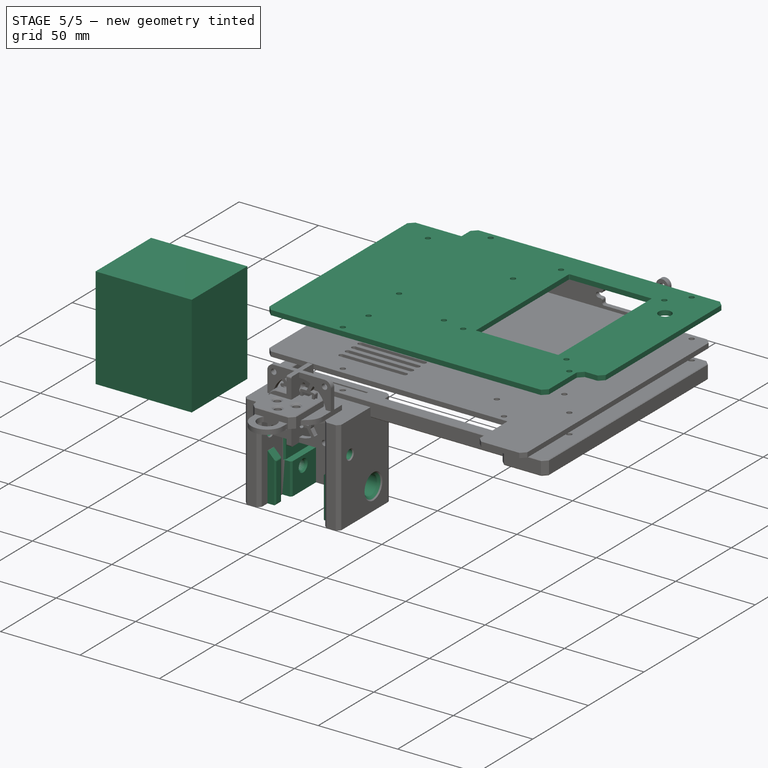
[diagram: stage 5 of 5 — iso view after this stage's code; geometry added in this stage tinted green]
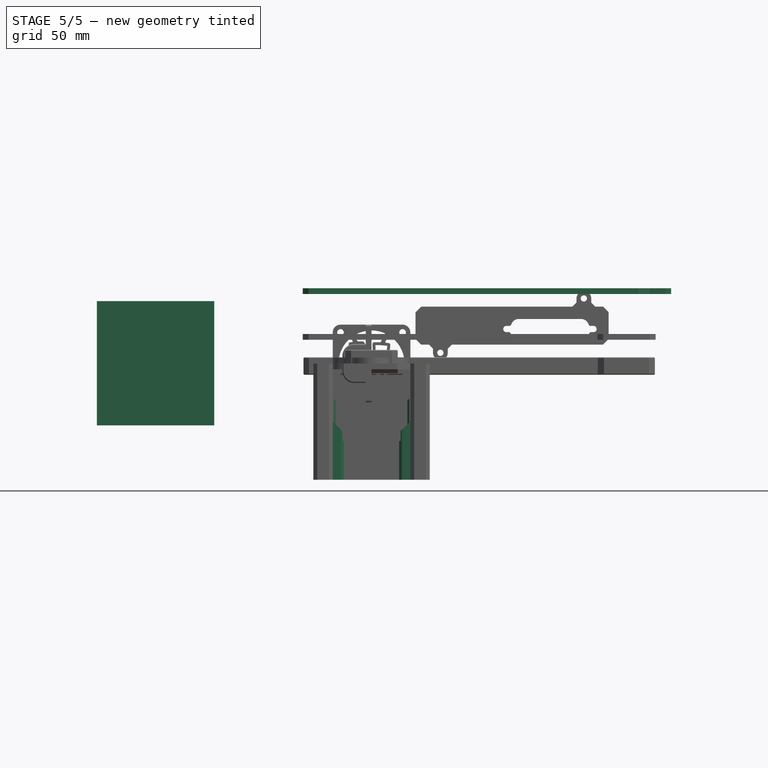
[diagram: stage 5 of 5 — front view after this stage's code; geometry added in this stage tinted green]
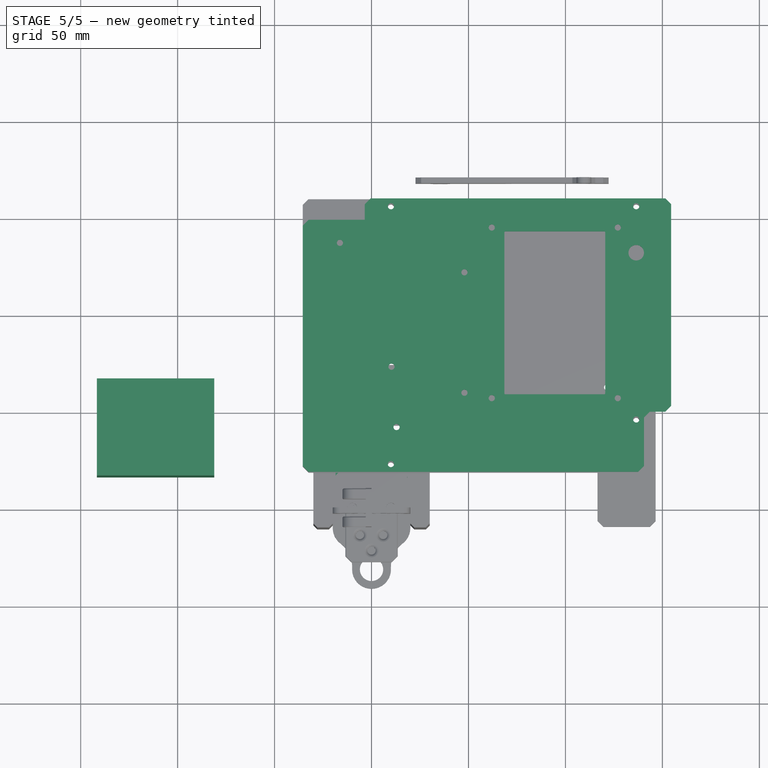
[diagram: stage 5 of 5 — top view after this stage's code; geometry added in this stage tinted green]
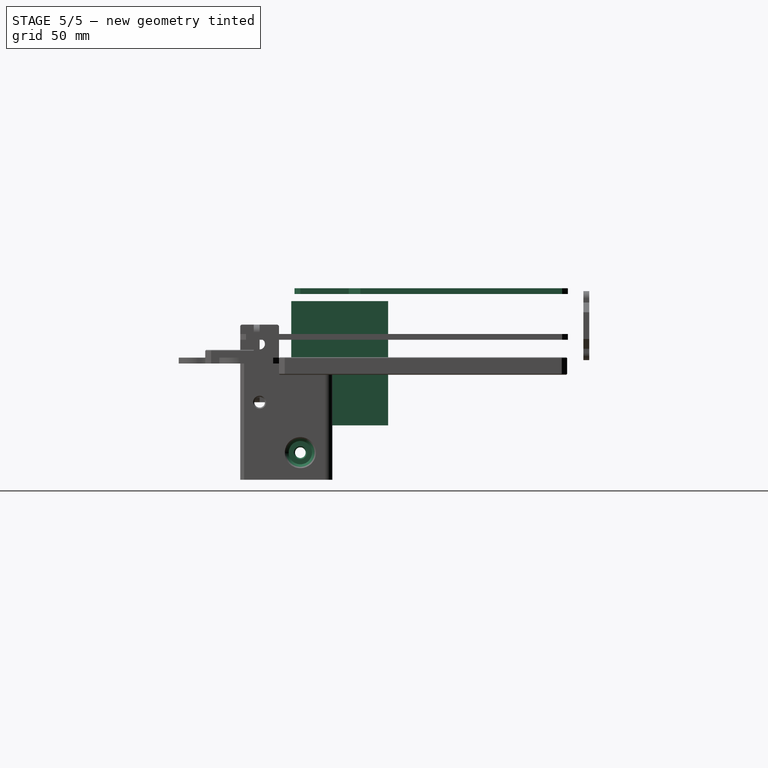
[diagram: stage 5 of 5 — right view after this stage's code; geometry added in this stage tinted green]
FEATURE [PartDesign::Fillet] Fillet
  AddSubType = 0
  Base = -> Pocket017 [Edge61,Edge60]
  BaseFeature = -> Pocket017
  FixShape = 1
  InvalidShape = false
  NewSolid = false
  Radius = 7.9
  Refine = true
  SupportTransform = false
  Suppress = false
  TreeRank = 547
  UseAllEdges = false
  ValidateShape = true
FEATURE [PartDesign::Fillet] Fillet001
  AddSubType = 0
  Base = -> Fillet [Edge57,Edge74,Edge108,Edge58]
  BaseFeature = -> Fillet
  FixShape = 1
  InvalidShape = false
  NewSolid = false
  Radius = 4
  Refine = true
  SupportTransform = false
  Suppress = false
  TreeRank = 548
  UseAllEdges = false
  ValidateShape = true
FEATURE [PartDesign::Fillet] Fillet002
  AddSubType = 0
  Base = -> Fillet001 [Edge111]
  BaseFeature = -> Fillet001
  FixShape = 1
  InvalidShape = false
  NewSolid = false
  Radius = 3
  Refine = true
  SupportTransform = false
  Suppress = false
  TreeRank = 549
  UseAllEdges = false
  ValidateShape = true
FEATURE [PartDesign::Chamfer] Chamfer
  AddSubType = 0
  Angle = 45
  Base = -> Fillet002 [Edge89,Edge21,Edge88,Edge123,Edge116,Edge39,Edge47,Edge36]
  BaseFeature = -> Fillet002
  ChamferType = 0
  FixShape = 1
  FlipDirection = false
  InvalidShape = false
  NewSolid = false
  Refine = true
  Size = 3
  Size2 = 1
  SupportTransform = false
  Suppress = false
  TreeRank = 550
  UseAllEdges = false
  ValidateShape = true
FEATURE [PartDesign::Fillet] Fillet003
  AddSubType = 0
  Base = -> Chamfer [Edge154,Edge152,Edge87]
  BaseFeature = -> Chamfer
  FixShape = 1
  InvalidShape = false
  NewSolid = false
  Radius = 5
  Refine = true
  SupportTransform = false
  Suppress = false
  TreeRank = 551
  UseAllEdges = false
  ValidateShape = true
FEATURE [PartDesign::SubShapeBinder] Binder  label="Binder(Fillet003)..."
  BindCopyOnChange = 0
  BindMode = 0
  ClaimChildren = false
  Context = -> Part015 [Body006.Binder.]
  EdgeTolerance = 1e-06
  FillStyle = 0
  FixShape = 1
  Fuse = false
  InvalidShape = false
  MakeFace = true
  MergeEdges = true
  OffsetFill = false
  OffsetIntersection = false
  OffsetJoinType = 0
  OffsetOpenResult = false
  Outline = false
  PartialLoad = false
  Relative = true
  SplitEdges = false
  Support = -> [Body005[Fillet003.Face42,Fillet003.Face9]]
  TightBound = false
  TreeRank = 562
  ValidateShape = false
  _Version = 8
FEATURE [Sketcher::SketchObject] Sketch026
  ArcFitTolerance = 1e-06
  AttachmentSupport = -> [Binder]
  ExternalBSplineMaxDegree = 5
  ExternalBSplineTolerance = 0.0001
  ExternalGeometry = -> [Binder]
  FixShape = 1
  FullyConstrained = true
  InternalTolerance = 1e-06
  InvalidShape = false
  MakeInternals = false
  MapMode = 5
  Placement = pos=(0,0,35.8) rot=(0,0,1;0rad)
  Support = -> [Binder]
  TreeRank = 563
  ValidateShape = false
  sketch-geometry (9):
    g0: LineSegment StartX=-23.5 StartY=148 StartZ=0 EndX=-3.5 EndY=148 EndZ=0
    g1: LineSegment StartX=-3.5 StartY=151 StartZ=0 EndX=-3.5 EndY=148 EndZ=0
    g2: LineSegment StartX=143.5 StartY=49 StartZ=0 EndX=154.5 EndY=49 EndZ=0
    g3: LineSegment StartX=154.5 StartY=49 StartZ=0 EndX=154.5 EndY=159 EndZ=0
    g4: LineSegment StartX=151.5 StartY=159 StartZ=0 EndX=154.5 EndY=159 EndZ=0
    g5: Circle CenterX=10 CenterY=22 CenterZ=0 NormalX=0 NormalY=0 NormalZ=1 AngleXU=0 Radius=1.6
    g6: Circle CenterX=136.5 CenterY=45 CenterZ=0 NormalX=0 NormalY=0 NormalZ=1 AngleXU=0 Radius=1.6
    g7: Circle CenterX=136.5 CenterY=155 CenterZ=0 NormalX=0 NormalY=0 NormalZ=1 AngleXU=0 Radius=1.6
    g8: Circle CenterX=10 CenterY=155 CenterZ=0 NormalX=0 NormalY=0 NormalZ=1 AngleXU=0 Radius=1.6
  constraints (21):
    c: Coincident(g0,g-6)
    c: Horizontal(g0)
    c: Coincident(g1,g-5)
    c: Coincident(g1,g0)
    c: Vertical(g1)
    c: Coincident(g2,g-13)
    c: Horizontal(g2)
    c: Coincident(g3,g2)
    c: Vertical(g3)
    c: Coincident(g4,g-3)
    c: Coincident(g4,g3)
    c: Horizontal(g4)
    c: DistanceX(g4,g4) = 3
    c: Coincident(g5,g-17)
    c: Coincident(g6,g-16)
    c: Coincident(g7,g-15)
    c: Coincident(g8,g-14)
    c: Equal(g8,g5)
    c: Equal(g8,g6)
    c: Equal(g8,g7)
    c: Diameter(g8) = 3.2
FEATURE [PartDesign::Pad] Pad009
  AddSubType = 0
  AlongSketchNormal = false
  AutoTaperInnerAngle = true
  CheckUpToFaceLimits = true
  ClaimChildren = false
  Direction = (0,0,1)
  Fit = 0
  FitJoin = 0
  FixShape = 1
  InnerFit = 0
  InnerFitJoin = 0
  InvalidShape = false
  Length = 3
  Length2 = 10
  Linearize = true
  NewSolid = false
  Profile = -> Sketch026
  ReferenceAxis = -> Sketch026 [N_Axis]
  Refine = true
  Suppress = false
  TaperInnerAngle = 0
  TaperInnerAngleRev = 0
  TreeRank = 564
  Type = 0
  ValidateShape = true
  _ProfileBasedVersion = 1
FEATURE [PartDesign::Chamfer] Chamfer002
  AddSubType = 0
  Angle = 45
  Base = -> Pad009 [Edge22,Edge21]
  BaseFeature = -> Pad009
  ChamferType = 0
  FixShape = 1
  FlipDirection = false
  InvalidShape = false
  NewSolid = false
  Refine = true
  Size = 3
  Size2 = 1
  SupportTransform = false
  Suppress = false
  TreeRank = 565
  UseAllEdges = false
  ValidateShape = true
FEATURE [Part::SubShapeBinder] Import  label="Import(Fillet003)"
  BindCopyOnChange = 0
  BindMode = 0
  ClaimChildren = false
  Context = -> Part015 [Body006.Import.]
  EdgeTolerance = 1e-06
  FillStyle = 0
  FixShape = 1
  Fuse = false
  InvalidShape = false
  MakeFace = false
  MergeEdges = true
  OffsetFill = false
  OffsetIntersection = false
  OffsetJoinType = 0
  OffsetOpenResult = false
  Outline = false
  PartialLoad = false
  Relative = true
  SplitEdges = false
  Support = -> [Body005[Fillet003.]]
  TightBound = false
  TreeRank = 567
  ValidateShape = false
  _Version = 8
FEATURE [Sketcher::SketchObject] Sketch027
  ArcFitTolerance = 1e-06
  AttachmentSupport = -> [Chamfer002]
  ExternalBSplineMaxDegree = 5
  ExternalBSplineTolerance = 0.0001
  ExternalGeometry = -> [Import]
  FixShape = 1
  FullyConstrained = true
  InternalTolerance = 1e-06
  InvalidShape = false
  MakeInternals = false
  MapMode = 5
  Placement = pos=(0,0,38.8) rot=(0,0,1;0rad)
  Support = -> [Chamfer002]
  TreeRank = 566
  ValidateShape = false
  sketch-geometry (21):
    g0: LineSegment StartX=68.5 StartY=58 StartZ=0 EndX=68.5 EndY=142 EndZ=0
    g1: LineSegment StartX=68.5 StartY=142 StartZ=0 EndX=120.5 EndY=142 EndZ=0
    g2: LineSegment StartX=120.5 StartY=142 StartZ=0 EndX=120.5 EndY=58 EndZ=0
    g3: LineSegment StartX=120.5 StartY=58 StartZ=0 EndX=68.5 EndY=58 EndZ=0
    g4: GeomPoint [constr] X=94.5 Y=100 Z=0
    g5: LineSegment [constr] StartX=62 StartY=56 StartZ=0 EndX=62 EndY=144 EndZ=0
    g6: LineSegment [constr] StartX=62 StartY=144 StartZ=0 EndX=127 EndY=144 EndZ=0
    g7: LineSegment [constr] StartX=127 StartY=144 StartZ=0 EndX=127 EndY=56 EndZ=0
    g8: LineSegment [constr] StartX=127 StartY=56 StartZ=0 EndX=62 EndY=56 EndZ=0
    g9: GeomPoint [constr] X=94.5 Y=100 Z=0
    g10: LineSegment [constr] StartX=56.5 StartY=53.5 StartZ=0 EndX=56.5 EndY=146.5 EndZ=0
    g11: LineSegment [constr] StartX=56.5 StartY=146.5 StartZ=0 EndX=145.5 EndY=146.5 EndZ=0
    g12: LineSegment [constr] StartX=145.5 StartY=146.5 StartZ=0 EndX=145.5 EndY=53.5 EndZ=0
    g13: LineSegment [constr] StartX=145.5 StartY=53.5 StartZ=0 EndX=56.5 EndY=53.5 EndZ=0
    g14: GeomPoint [constr] X=101 Y=100 Z=0
    g15: Circle CenterX=62 CenterY=144 CenterZ=0 NormalX=0 NormalY=0 NormalZ=1 AngleXU=0 Radius=1.6
    g16: Circle CenterX=127 CenterY=144 CenterZ=0 NormalX=0 NormalY=0 NormalZ=1 AngleXU=0 Radius=1.6
    g17: Circle CenterX=127 CenterY=56 CenterZ=0 NormalX=0 NormalY=0 NormalZ=1 AngleXU=0 Radius=1.6
    g18: Circle CenterX=62 CenterY=56 CenterZ=0 NormalX=0 NormalY=0 NormalZ=1 AngleXU=0 Radius=1.6
    g19: LineSegment [constr] StartX=94.5 StartY=100 StartZ=0 EndX=146.5 EndY=100 EndZ=0
    g20: Circle CenterX=136.5 CenterY=131 CenterZ=0 NormalX=0 NormalY=0 NormalZ=1 AngleXU=0 Radius=4
  constraints (51):
    c: Coincident(g0,g1)
    c: Coincident(g1,g2)
    c: Coincident(g2,g3)
    c: Coincident(g3,g0)
    c: Horizontal(g1)
    c: Horizontal(g3)
    c: Vertical(g0)
    c: Vertical(g2)
    c: Symmetric(g1,g0,g4)
    c: DistanceX(g1,g1) = 52
    c: DistanceY(g2,g2) = 84
    c: Coincident(g5,g6)
    c: Coincident(g6,g7)
    c: Coincident(g7,g8)
    c: Coincident(g8,g5)
    c: Horizontal(g6)
    c: Horizontal(g8)
    c: Vertical(g5)
    c: Vertical(g7)
    c: Symmetric(g6,g5,g9)
    c: Coincident(g9,g4)
    c: Coincident(g10,g11)
    c: Coincident(g11,g12)
    c: Coincident(g12,g13)
    c: Coincident(g13,g10)
    c: Horizontal(g11)
    c: Horizontal(g13)
    c: Vertical(g10)
    c: Vertical(g12)
    c: Symmetric(g11,g10,g14)
    c: Horizontal(g14,g4)
    c: Coincident(g15,g5)
    c: Coincident(g16,g6)
    c: Coincident(g17,g7)
    c: Coincident(g18,g5)
    c: Equal(g16,g15)
    c: Equal(g16,g18)
    c: Equal(g16,g17)
    c: Diameter(g16) = 3.2
    c: DistanceX(g6,g6) = 65
    c: DistanceY(g5,g5) = 88
    c: DistanceX(g11,g11) = 89
    c: DistanceY(g10,g10) = 93
    c: DistanceX(g10,g0) = 12
    c: Coincident(g19,g4)
    c: Horizontal(g19)
    c: Symmetric(g-3,g-3,g19)
    c: DistanceX(g11,g-3) = 1
    c: Diameter(g20) = 8
    c: DistanceY(g20,g11) = 15.5
    c: DistanceX(g20,g11) = 9
FEATURE [PartDesign::Pocket] Pocket018
  AddSubType = 1
  AlongSketchNormal = false
  AutoTaperInnerAngle = true
  BaseFeature = -> Chamfer002
  CheckUpToFaceLimits = true
  ClaimChildren = false
  Direction = (0,0,-1)
  Fit = 0
  FitJoin = 0
  FixShape = 1
  InnerFit = 0
  InnerFitJoin = 0
  InvalidShape = false
  Length = 5
  Length2 = 10
  Linearize = true
  NewSolid = false
  Profile = -> Sketch027
  ReferenceAxis = -> Sketch027 [N_Axis]
  Refine = true
  Suppress = false
  TaperInnerAngle = 0
  TaperInnerAngleRev = 0
  TreeRank = 568
  Type = 1
  ValidateShape = true
  _ProfileBasedVersion = 1
  _Version = 1
FEATURE [PartDesign::Body] Body005  label="MainBox"
  AutoGroupSolids = false
  ClaimAllChildren = false
  ExportMode = 0
  FixShape = 1
  Group = -> [Sketch013,Pad006,Sketch014,Pad007,Sketch015,Pocket008,Sketch016,Pocket009,Sketch017,Pocket010,Sketch018,Pocket011,Sketch019,Pocket012,Sketch020,Sketch023,Pad008,Sketch021,Pocket013,Sketch022,Pocket014,Chamfer001,Pocket015,Sketch024,Pocket016,Sketch025,Pocket017,Fillet,Fillet001,Fillet002,Chamfer,Fillet003,Sketch028,Pad010,Sketch029,Pocket019,Sketch030,Pocket020,Chamfer003,Sketch031,Pocket021,+15 more]
  InvalidShape = false
  Origin = -> Origin021
  SingleSolid = true
  Tip = -> Chamfer008
  TreeRank = 517
  ValidateShape = false
  _ExportChildren = -> [Pad006,Pad007,Pocket008,Pocket009,Pocket010,Pocket011,Pocket012,Pad008,Pocket013,Pocket014,Chamfer001,Pocket015,Pocket016,Pocket017,Fillet,Fillet001,Fillet002,Chamfer,Fillet003,Pad010,Pocket019,Pocket020,Chamfer003,Pocket021,Chamfer004,Pocket023,Pocket022,Pocket024,Chamfer005,Pocket025,Fillet005,Chamfer006,Pocket031,Chamfer007,Chamfer008]
  _GroupVersion = 1
FEATURE [TechDraw::DrawSVGTemplate] Template
  Height = 210
  Orientation = 1
  Template = <path>
  TreeRank = 627
  Width = 297
FEATURE [TechDraw::DrawProjGroupItem] ProjItem  label="Front"
  CoarseView = false
  Direction = (0,0,-1)
  Focus = 100
  HardHidden = false
  IsoCount = 0
  IsoHidden = false
  IsoVisible = false
  LockPosition = true
  Perspective = false
  Rotation = 0
  RotationVector = (-1,0,0)
  ScaleType = 2
  ScrubCount = 0
  SeamHidden = false
  SeamVisible = false
  SmoothHidden = false
  SmoothVisible = false
  Source = -> [Pocket030]
  TreeRank = 630
  Type = 0
  X = 0
  XDirection = (-1,0,0)
  Y = 0
FEATURE [TechDraw::DrawProjGroup] ProjGroup
  Anchor = -> ProjItem
  AutoDistribute = true
  LockPosition = false
  ProjectionType = 0
  Rotation = 0
  ScaleType = 0
  Source = -> [Pocket030]
  TreeRank = 631
  Views = -> [ProjItem]
  X = 93.0208
  Y = 123.51
  spacingX = 15
  spacingY = 15
FEATURE [TechDraw::DrawPage] Page  label="Laser3mm-CarterBottom"
  KeepUpdated = true
  NextBalloonIndex = 1
  ProjectionType = 0
  Template = -> Template
  TreeRank = 628
  Views = -> [ProjGroup]
FEATURE [TechDraw::DrawSVGTemplate] Template001
  Height = 210
  Orientation = 1
  Template = <path>
  TreeRank = 633
  Width = 297
FEATURE [Part::SubShapeBinder] Import001  label="Import001(PCB)"
  BindCopyOnChange = 0
  BindMode = 0
  ClaimChildren = false
  Context = -> Part015 [Body006.Import001.]
  EdgeTolerance = 1e-06
  FillStyle = 0
  FixShape = 1
  Fuse = false
  InvalidShape = false
  MakeFace = false
  MergeEdges = true
  OffsetFill = false
  OffsetIntersection = false
  OffsetJoinType = 0
  OffsetOpenResult = false
  Outline = false
  PartialLoad = false
  Relative = true
  SplitEdges = false
  Support = -> [Part012[Part011.Solid025.]]
  TightBound = false
  TreeRank = 636
  ValidateShape = false
  _Version = 8
FEATURE [Sketcher::SketchObject] Sketch043
  ArcFitTolerance = 1e-06
  AttachmentSupport = -> [Fillet004]
  ExternalBSplineMaxDegree = 5
  ExternalBSplineTolerance = 0.0001
  ExternalGeometry = -> [Import001]
  FixShape = 1
  FullyConstrained = true
  InternalTolerance = 1e-06
  InvalidShape = false
  MakeInternals = false
  MapMode = 5
  Placement = pos=(0,0,38.8) rot=(0,0,1;0rad)
  Support = -> [Fillet004]
  TreeRank = 637
  ValidateShape = false
  sketch-geometry (5):
    g0: Circle CenterX=-16.3 CenterY=136.1 CenterZ=0 NormalX=0 NormalY=0 NormalZ=1 AngleXU=0 Radius=1.6
    g1: Circle CenterX=47.9 CenterY=120.9 CenterZ=0 NormalX=0 NormalY=0 NormalZ=1 AngleXU=0 Radius=1.6
    g2: Circle CenterX=47.9 CenterY=58.8 CenterZ=0 NormalX=0 NormalY=0 NormalZ=1 AngleXU=0 Radius=1.6
    g3: Circle CenterX=10.3 CenterY=72.2 CenterZ=0 NormalX=0 NormalY=0 NormalZ=1 AngleXU=0 Radius=1.6
    g4: Circle CenterX=12.9 CenterY=41.1 CenterZ=0 NormalX=0 NormalY=0 NormalZ=1 AngleXU=0 Radius=1.6
  constraints (10):
    c: Coincident(g0,g-3)
    c: Coincident(g1,g-4)
    c: Coincident(g2,g-6)
    c: Coincident(g3,g-5)
    c: Equal(g0,g3)
    c: Equal(g0,g1)
    c: Equal(g0,g2)
    c: Diameter(g0) = 3.2
    c: Coincident(g4,g-7)
    c: Equal(g2,g4)
FEATURE [PartDesign::Pocket] Pocket032
  AddSubType = 1
  AlongSketchNormal = false
  AutoTaperInnerAngle = true
  BaseFeature = -> Fillet004
  CheckUpToFaceLimits = true
  ClaimChildren = false
  Direction = (0,0,-1)
  Fit = 0
  FitJoin = 0
  FixShape = 1
  InnerFit = 0
  InnerFitJoin = 0
  InvalidShape = false
  Length = 5
  Length2 = 10
  Linearize = true
  NewSolid = false
  Profile = -> Sketch043
  ReferenceAxis = -> Sketch043 [N_Axis]
  Refine = true
  Suppress = false
  TaperInnerAngle = 0
  TaperInnerAngleRev = 0
  TreeRank = 638
  Type = 1
  ValidateShape = true
  _ProfileBasedVersion = 1
  _Version = 1
FEATURE [Sketcher::SketchObject] Sketch045
  ArcFitTolerance = 1e-06
  AttachmentSupport = -> [YZ_Plane021]
  ExternalBSplineMaxDegree = 5
  ExternalBSplineTolerance = 0.0001
  ExternalGeometry = -> [Pad012]
  FixShape = 1
  FullyConstrained = true
  InternalTolerance = 1e-06
  InvalidShape = false
  MakeInternals = false
  MapMode = 5
  Placement = pos=(0,0,0) rot=(0.57735,0.57735,0.57735;2.0944rad)
  Support = -> [YZ_Plane021]
  TreeRank = 654
  ValidateShape = false
  sketch-geometry (2):
    g0: Circle CenterX=21 CenterY=-46 CenterZ=0 NormalX=0 NormalY=0 NormalZ=1 AngleXU=0 Radius=2.75
    g1: LineSegment [constr] StartX=-10 StartY=-40 StartZ=0 EndX=37.5 EndY=-40 EndZ=0
  constraints (7):
    c: Diameter(g0) = 5.5
    c: DistanceX(g-1,g0) = 21
    c: PointOnObject(g1,g-5)
    c: PointOnObject(g1,g-4)
    c: Horizontal(g1)
    c: DistanceY(g-4,g1) = 20
    c: DistanceY(g0,g1) = 6
FEATURE [Sketcher::SketchObject] Sketch046
  ArcFitTolerance = 1e-06
  AttachmentSupport = -> [Pad012]
  ExternalBSplineMaxDegree = 5
  ExternalBSplineTolerance = 0.0001
  ExternalGeometry = -> [Pad012]
  FixShape = 1
  FullyConstrained = true
  InternalTolerance = 1e-06
  InvalidShape = false
  MakeInternals = false
  MapMode = 5
  Support = -> [Pad012]
  TreeRank = 655
  ValidateShape = false
  sketch-geometry (8):
    g0: LineSegment StartX=-20 StartY=32.5 StartZ=0 EndX=-18.5 EndY=32.5 EndZ=0
    g1: LineSegment StartX=-18.5 StartY=32.5 StartZ=0 EndX=-18.5 EndY=10.5 EndZ=0
    g2: LineSegment StartX=-18.5 StartY=10.5 StartZ=0 EndX=-20 EndY=10.5 EndZ=0
    g3: LineSegment StartX=-20 StartY=10.5 StartZ=0 EndX=-20 EndY=32.5 EndZ=0
    g4: LineSegment StartX=20 StartY=32.5 StartZ=0 EndX=18.5 EndY=32.5 EndZ=0
    g5: LineSegment StartX=18.5 StartY=32.5 StartZ=0 EndX=18.5 EndY=10.5 EndZ=0
    g6: LineSegment StartX=18.5 StartY=10.5 StartZ=0 EndX=20 EndY=10.5 EndZ=0
    g7: LineSegment StartX=20 StartY=10.5 StartZ=0 EndX=20 EndY=32.5 EndZ=0
  constraints (21):
    c: Coincident(g0,g1)
    c: Coincident(g1,g2)
    c: Coincident(g2,g3)
    c: Coincident(g3,g0)
    c: Horizontal(g0)
    c: Horizontal(g2)
    c: Vertical(g1)
    c: Vertical(g3)
    c: Coincident(g0,g-3)
    c: Coincident(g4,g5)
    c: Coincident(g5,g6)
    c: Coincident(g6,g7)
    c: Coincident(g7,g4)
    c: Horizontal(g4)
    c: Horizontal(g6)
    c: Vertical(g5)
    c: Vertical(g7)
    c: Coincident(g4,g-3)
    c: Symmetric(g5,g1,g-2)
    c: DistanceY(g7,g7) = 22
    c: DistanceX(g0,g4) = 37
FEATURE [PartDesign::Pad] Pad013
  AddSubType = 0
  AlongSketchNormal = false
  AutoTaperInnerAngle = true
  BaseFeature = -> Pad012
  CheckUpToFaceLimits = true
  ClaimChildren = false
  Direction = (0,0,1)
  Fit = 0
  FitJoin = 0
  FixShape = 1
  InnerFit = 0
  InnerFitJoin = 0
  InvalidShape = false
  Length = 10
  Length2 = 10
  Linearize = true
  NewSolid = false
  Profile = -> Sketch046
  ReferenceAxis = -> Sketch046 [N_Axis]
  Refine = true
  Reversed = true
  Suppress = false
  TaperInnerAngle = 0
  TaperInnerAngleRev = 0
  TreeRank = 656
  Type = 3
  UpToFace = -> Pad012 [Face10]
  ValidateShape = true
  _ProfileBasedVersion = 1
FEATURE [Sketcher::SketchObject] Sketch047
  ArcFitTolerance = 1e-06
  AttachmentSupport = -> [Pad013]
  ExternalBSplineMaxDegree = 5
  ExternalBSplineTolerance = 0.0001
  ExternalGeometry = -> [Pad013]
  FixShape = 1
  FullyConstrained = true
  InternalTolerance = 1e-06
  InvalidShape = false
  MakeInternals = false
  MapMode = 5
  Placement = pos=(0,0,-60) rot=(1,0,0;3.14159rad)
  Support = -> [Pad013]
  TreeRank = 658
  ValidateShape = false
  sketch-geometry (8):
    g0: LineSegment StartX=-18.5 StartY=-10.5 StartZ=0 EndX=-14.25 EndY=-10.5 EndZ=0
    g1: LineSegment StartX=-14.25 StartY=-10.5 StartZ=0 EndX=-14.25 EndY=-32.5 EndZ=0
    g2: LineSegment StartX=-14.25 StartY=-32.5 StartZ=0 EndX=-18.5 EndY=-32.5 EndZ=0
    g3: LineSegment StartX=-18.5 StartY=-32.5 StartZ=0 EndX=-18.5 EndY=-10.5 EndZ=0
    g4: LineSegment StartX=18.5 StartY=-10.5 StartZ=0 EndX=14.25 EndY=-10.5 EndZ=0
    g5: LineSegment StartX=14.25 StartY=-10.5 StartZ=0 EndX=14.25 EndY=-32.5 EndZ=0
    g6: LineSegment StartX=14.25 StartY=-32.5 StartZ=0 EndX=18.5 EndY=-32.5 EndZ=0
    g7: LineSegment StartX=18.5 StartY=-32.5 StartZ=0 EndX=18.5 EndY=-10.5 EndZ=0
  constraints (20):
    c: Coincident(g0,g1)
    c: Coincident(g1,g2)
    c: Coincident(g2,g3)
    c: Coincident(g3,g0)
    c: Horizontal(g0)
    c: Horizontal(g2)
    c: Vertical(g1)
    c: Coincident(g0,g-3)
    c: Coincident(g4,g5)
    c: Coincident(g5,g6)
    c: Coincident(g6,g7)
    c: Coincident(g7,g4)
    c: Horizontal(g4)
    c: Horizontal(g6)
    c: Vertical(g5)
    c: Coincident(g4,g-4)
    c: Coincident(g-4,g6)
    c: Coincident(g2,g-3)
    c: Equal(g0,g4)
    c: DistanceX(g0,g4) = 28.5
FEATURE [PartDesign::Pad] Pad014
  AddSubType = 0
  AlongSketchNormal = false
  AutoTaperInnerAngle = true
  BaseFeature = -> Pad013
  CheckUpToFaceLimits = true
  ClaimChildren = false
  Direction = (0,0,-1)
  Fit = 0
  FitJoin = 0
  FixShape = 1
  InnerFit = 0
  InnerFitJoin = 0
  InvalidShape = false
  Length = 20
  Length2 = 10
  Linearize = true
  NewSolid = false
  Profile = -> Sketch047
  ReferenceAxis = -> Sketch047 [N_Axis]
  Refine = true
  Reversed = true
  Suppress = false
  TaperInnerAngle = 0
  TaperInnerAngleRev = 0
  TreeRank = 659
  Type = 0
  ValidateShape = true
  _ProfileBasedVersion = 1
FEATURE [PartDesign::Pocket] Pocket033
  AddSubType = 1
  AlongSketchNormal = false
  AutoTaperInnerAngle = true
  BaseFeature = -> Pad014
  CheckUpToFaceLimits = true
  ClaimChildren = false
  Direction = (-1,2e-16,-3e-16)
  Fit = 0
  FitJoin = 0
  FixShape = 1
  InnerFit = 0
  InnerFitJoin = 0
  InvalidShape = false
  Length = 5
  Length2 = 10
  Linearize = true
  Midplane = true
  NewSolid = false
  Profile = -> Sketch045
  ReferenceAxis = -> Sketch045 [N_Axis]
  Refine = true
  Suppress = false
  TaperInnerAngle = 0
  TaperInnerAngleRev = 0
  TreeRank = 657
  Type = 1
  ValidateShape = true
  _ProfileBasedVersion = 1
  _Version = 1
FEATURE [Sketcher::SketchObject] Sketch048
  ArcFitTolerance = 1e-06
  AttachmentSupport = -> [Pocket033]
  ExternalBSplineMaxDegree = 5
  ExternalBSplineTolerance = 0.0001
  ExternalGeometry = -> [Pocket033]
  FixShape = 1
  FullyConstrained = true
  InternalTolerance = 1e-06
  InvalidShape = false
  MakeInternals = false
  MapMode = 5
  Placement = pos=(30,0,0) rot=(0.57735,0.57735,0.57735;2.0944rad)
  Support = -> [Pocket033]
  TreeRank = 660
  ValidateShape = false
  sketch-geometry (1):
    g0: Circle CenterX=21 CenterY=-46 CenterZ=0 NormalX=0 NormalY=0 NormalZ=1 AngleXU=0 Radius=6
  constraints (2):
    c: Coincident(g0,g-3)
    c: Diameter(g0) = 12
FEATURE [PartDesign::Pocket] Pocket034
  AddSubType = 1
  AlongSketchNormal = false
  AutoTaperInnerAngle = true
  BaseFeature = -> Pocket033
  CheckUpToFaceLimits = true
  ClaimChildren = false
  Direction = (-1,0,0)
  Fit = 0
  FitJoin = 0
  FixShape = 1
  InnerFit = 0
  InnerFitJoin = 0
  InvalidShape = false
  Length = 12.5
  Length2 = 10
  Linearize = true
  NewSolid = false
  Profile = -> Sketch048
  ReferenceAxis = -> Sketch048 [N_Axis]
  Refine = true
  Suppress = false
  TaperInnerAngle = 0
  TaperInnerAngleRev = 0
  TreeRank = 661
  Type = 0
  ValidateShape = true
  _ProfileBasedVersion = 1
  _Version = 1
FEATURE [Sketcher::SketchObject] Sketch049
  ArcFitTolerance = 1e-06
  AttachmentSupport = -> [Pocket034]
  ExternalBSplineMaxDegree = 5
  ExternalBSplineTolerance = 0.0001
  ExternalGeometry = -> [Pocket034]
  FixShape = 1
  FullyConstrained = true
  InternalTolerance = 1e-06
  InvalidShape = false
  MakeInternals = false
  MapMode = 5
  Placement = pos=(-30,0,0) rot=(0.57735,-0.57735,-0.57735;2.0944rad)
  Support = -> [Pocket034]
  TreeRank = 662
  ValidateShape = false
  sketch-geometry (1):
    g0: Circle CenterX=-21 CenterY=-46 CenterZ=0 NormalX=0 NormalY=0 NormalZ=1 AngleXU=0 Radius=6
  constraints (2):
    c: Coincident(g0,g-3)
    c: Diameter(g0) = 12
FEATURE [PartDesign::Pocket] Pocket035
  AddSubType = 1
  AlongSketchNormal = false
  AutoTaperInnerAngle = true
  BaseFeature = -> Pocket034
  CheckUpToFaceLimits = true
  ClaimChildren = false
  Direction = (1,0,0)
  Fit = 0
  FitJoin = 0
  FixShape = 1
  InnerFit = 0
  InnerFitJoin = 0
  InvalidShape = false
  Length = 7.5
  Length2 = 10
  Linearize = true
  NewSolid = false
  Profile = -> Sketch049
  ReferenceAxis = -> Sketch049 [N_Axis]
  Refine = true
  Suppress = false
  TaperInnerAngle = 0
  TaperInnerAngleRev = 0
  TreeRank = 663
  Type = 0
  ValidateShape = true
  _ProfileBasedVersion = 1
  _Version = 1
FEATURE [Sketcher::SketchObject] Sketch050
  ArcFitTolerance = 1e-06
  AttachmentSupport = -> [Pocket035]
  ExternalBSplineMaxDegree = 5
  ExternalBSplineTolerance = 0.0001
  ExternalGeometry = -> [Pocket035]
  FixShape = 1
  FullyConstrained = true
  InternalTolerance = 1e-06
  InvalidShape = false
  MakeInternals = false
  MapMode = 5
  Placement = pos=(-22.5,0,0) rot=(0.57735,-0.57735,-0.57735;2.0944rad)
  Support = -> [Pocket035]
  TreeRank = 664
  ValidateShape = false
  sketch-geometry (1):
    g0: Circle CenterX=-21 CenterY=-46 CenterZ=0 NormalX=0 NormalY=0 NormalZ=1 AngleXU=0 Radius=3
  constraints (2):
    c: Coincident(g0,g-3)
    c: Diameter(g0) = 6
FEATURE [PartDesign::Pocket] Pocket036
  AddSubType = 1
  AlongSketchNormal = false
  AutoTaperInnerAngle = true
  BaseFeature = -> Pocket035
  CheckUpToFaceLimits = true
  ClaimChildren = false
  Direction = (1,0,0)
  Fit = 0
  FitJoin = 0
  FixShape = 1
  InnerFit = 0
  InnerFitJoin = 0
  InvalidShape = false
  Length = 9
  Length2 = 10
  Linearize = true
  NewSolid = false
  Profile = -> Sketch050
  ReferenceAxis = -> Sketch050 [N_Axis]
  Refine = true
  Suppress = false
  TaperInnerAngle = 0
  TaperInnerAngleRev = 0
  TreeRank = 665
  Type = 0
  ValidateShape = true
  _ProfileBasedVersion = 1
  _Version = 1
FEATURE [PartDesign::Chamfer] Chamfer010
  AddSubType = 0
  Angle = 45
  Base = -> Pocket036 [Edge62,Edge54]
  BaseFeature = -> Pocket036
  ChamferType = 0
  FixShape = 1
  FlipDirection = false
  InvalidShape = false
  NewSolid = false
  Refine = true
  Size = 1
  Size2 = 1
  SupportTransform = false
  Suppress = false
  TreeRank = 666
  UseAllEdges = false
  ValidateShape = true
FEATURE [Sketcher::SketchObject] Sketch051
  ArcFitTolerance = 1e-06
  AttachmentSupport = -> [Chamfer010]
  ExternalBSplineMaxDegree = 5
  ExternalBSplineTolerance = 0.0001
  ExternalGeometry = -> [Chamfer010]
  FixShape = 1
  FullyConstrained = true
  InternalTolerance = 1e-06
  InvalidShape = false
  MakeInternals = false
  MapMode = 5
  Placement = pos=(0,0,-60) rot=(1,0,0;3.14159rad)
  Support = -> [Chamfer010]
  TreeRank = 667
  ValidateShape = false
  sketch-geometry (5):
    g0: LineSegment StartX=15 StartY=-2.8 StartZ=0 EndX=15 EndY=2.8 EndZ=0
    g1: LineSegment StartX=15 StartY=2.8 StartZ=0 EndX=20 EndY=2.8 EndZ=0
    g2: LineSegment StartX=20 StartY=2.8 StartZ=0 EndX=20 EndY=-2.8 EndZ=0
    g3: LineSegment StartX=20 StartY=-2.8 StartZ=0 EndX=15 EndY=-2.8 EndZ=0
    g4: GeomPoint [constr] X=17.5 Y=0 Z=0
  constraints (13):
    c: Coincident(g0,g1)
    c: Coincident(g1,g2)
    c: Coincident(g2,g3)
    c: Coincident(g3,g0)
    c: Horizontal(g1)
    c: Horizontal(g3)
    c: Vertical(g0)
    c: Vertical(g2)
    c: Symmetric(g1,g0,g4)
    c: PointOnObject(g4,g-1)
    c: PointOnObject(g1,g-3)
    c: DistanceY(g2,g2) = 5.6
    c: DistanceX(g1,g1) = 5
FEATURE [PartDesign::Pad] Pad015
  AddSubType = 0
  AlongSketchNormal = false
  AutoTaperInnerAngle = true
  BaseFeature = -> Chamfer010
  CheckUpToFaceLimits = true
  ClaimChildren = false
  Direction = (0,0,-1)
  Fit = 0
  FitJoin = 0
  FixShape = 1
  InnerFit = 0
  InnerFitJoin = 0
  InvalidShape = false
  Length = 30
  Length2 = 10
  Linearize = true
  NewSolid = false
  Profile = -> Sketch051
  ReferenceAxis = -> Sketch051 [N_Axis]
  Refine = true
  Reversed = true
  Suppress = false
  TaperInnerAngle = 0
  TaperInnerAngleRev = 0
  TreeRank = 668
  Type = 0
  ValidateShape = true
  _ProfileBasedVersion = 1
FEATURE [PartDesign::Mirrored] Mirrored
  AddSubType = 0
  BaseFeature = -> Pad015
  CopyShape = false
  FixShape = 1
  InvalidShape = false
  MirrorPlane = -> Sketch051 [V_Axis]
  NewSolid = false
  OriginalSubs = -> [Pad015]
  Originals = -> [Pad015]
  ParallelTransform = true
  Refine = true
  SubTransform = true
  Suppress = false
  TreeRank = 669
  ValidateShape = true
  _Version = 3
FEATURE [Sketcher::SketchObject] Sketch052
  ArcFitTolerance = 1e-06
  AttachmentSupport = -> [YZ_Plane021]
  ExternalBSplineMaxDegree = 5
  ExternalBSplineTolerance = 0.0001
  FixShape = 1
  FullyConstrained = true
  InternalTolerance = 1e-06
  InvalidShape = false
  MakeInternals = false
  MapMode = 5
  Placement = pos=(0,0,0) rot=(0.57735,0.57735,0.57735;2.0944rad)
  Support = -> [YZ_Plane021]
  TreeRank = 670
  ValidateShape = false
  sketch-geometry (1):
    g0: Circle CenterX=0 CenterY=-20 CenterZ=0 NormalX=0 NormalY=0 NormalZ=1 AngleXU=0 Radius=2.75
  constraints (3):
    c: PointOnObject(g0,g-2)
    c: DistanceY(g0,g-1) = 20
    c: Diameter(g0) = 5.5
FEATURE [PartDesign::Pocket] Pocket037
  AddSubType = 1
  AlongSketchNormal = false
  AutoTaperInnerAngle = true
  BaseFeature = -> Mirrored
  CheckUpToFaceLimits = true
  ClaimChildren = false
  Direction = (-1,3e-16,-3e-16)
  Fit = 0
  FitJoin = 0
  FixShape = 1
  InnerFit = 0
  InnerFitJoin = 0
  InvalidShape = false
  Length = 5
  Length2 = 10
  Linearize = true
  Midplane = true
  NewSolid = false
  Profile = -> Sketch052
  ReferenceAxis = -> Sketch052 [N_Axis]
  Refine = true
  Suppress = false
  TaperInnerAngle = 0
  TaperInnerAngleRev = 0
  TreeRank = 671
  Type = 1
  ValidateShape = true
  _ProfileBasedVersion = 1
  _Version = 1
FEATURE [PartDesign::Chamfer] Chamfer011
  AddSubType = 0
  Angle = 45
  Base = -> Pocket037 [Edge81,Edge55,Edge50,Edge76]
  BaseFeature = -> Pocket037
  ChamferType = 0
  FixShape = 1
  FlipDirection = false
  InvalidShape = false
  NewSolid = false
  Refine = true
  Size = 2
  Size2 = 1
  SupportTransform = false
  Suppress = false
  TreeRank = 672
  UseAllEdges = false
  ValidateShape = true
FEATURE [PartDesign::Fillet] Fillet006
  AddSubType = 0
  Base = -> Chamfer011 [Edge44,Edge47]
  BaseFeature = -> Chamfer011
  FixShape = 1
  InvalidShape = false
  NewSolid = false
  Radius = 4
  Refine = true
  SupportTransform = false
  Suppress = false
  TreeRank = 673
  UseAllEdges = false
  ValidateShape = true
FEATURE [PartDesign::Chamfer] Chamfer012
  AddSubType = 0
  Angle = 45
  Base = -> Fillet006 [Edge74,Edge94,Edge76,Edge90]
  BaseFeature = -> Fillet006
  ChamferType = 0
  FixShape = 1
  FlipDirection = false
  InvalidShape = false
  NewSolid = false
  Refine = true
  Size = 1
  Size2 = 1
  SupportTransform = false
  Suppress = false
  TreeRank = 674
  UseAllEdges = false
  ValidateShape = true
FEATURE [PartDesign::Chamfer] Chamfer013
  AddSubType = 0
  Angle = 45
  Base = -> Chamfer012 [Edge55,Edge82]
  BaseFeature = -> Chamfer012
  ChamferType = 0
  FixShape = 1
  FlipDirection = false
  InvalidShape = false
  NewSolid = false
  Refine = true
  Size = 4.9
  Size2 = 1
  SupportTransform = false
  Suppress = false
  TreeRank = 675
  UseAllEdges = false
  ValidateShape = true
FEATURE [PartDesign::Fillet] Fillet007
  AddSubType = 0
  Base = -> Chamfer013 [Face20,Edge8,Edge1]
  BaseFeature = -> Chamfer013
  FixShape = 1
  InvalidShape = false
  NewSolid = false
  Radius = 1
  Refine = true
  SupportTransform = false
  Suppress = false
  TreeRank = 676
  UseAllEdges = false
  ValidateShape = true
FEATURE [PartDesign::Chamfer] Chamfer014
  AddSubType = 0
  Angle = 45
  Base = -> Fillet007 [Edge59,Edge126,Edge110,Edge91,Edge47,Edge85]
  BaseFeature = -> Fillet007
  ChamferType = 0
  FixShape = 1
  FlipDirection = false
  InvalidShape = false
  NewSolid = false
  Refine = true
  Size = 0.6
  Size2 = 1
  SupportTransform = false
  Suppress = false
  TreeRank = 677
  UseAllEdges = false
  ValidateShape = true
FEATURE [Part::Part2DObjectPython] ShapeString  # Draft 2D object (typed FeaturePython)
  FixShape = 1
  FontFile = G:/Mon Drive/02 - LES KARIBOUS/2024/COMMUNICATION/baveuse/baveuse.otf
  InvalidShape = false
  MakeFace = true
  Placement = pos=(103,37.5,346) rot=(0,0.707107,0.707107;3.14159rad)
  Size = 20
  String = K
  Tracking = 0
  TreeRank = 679
  ValidateShape = false
FEATURE [PartDesign::SubShapeBinder] Binder002  label="Binder002(ShapeString)"
  BindCopyOnChange = 0
  BindMode = 0
  ClaimChildren = false
  Context = -> Part015 [Body008.Binder002.]
  EdgeTolerance = 1e-06
  FillStyle = 0
  FixShape = 1
  Fuse = false
  InvalidShape = false
  MakeFace = true
  MergeEdges = true
  OffsetFill = false
  OffsetIntersection = false
  OffsetJoinType = 0
  OffsetOpenResult = false
  Outline = false
  PartialLoad = false
  Relative = true
  SplitEdges = false
  Support = -> [ShapeString]
  TightBound = false
  TreeRank = 680
  ValidateShape = false
  _Version = 8
FEATURE [PartDesign::Pocket] Pocket
  AddSubType = 1
  AlongSketchNormal = false
  AutoTaperInnerAngle = true
  BaseFeature = -> Chamfer014
  CheckUpToFaceLimits = true
  ClaimChildren = false
  Direction = (0,-1,2e-16)
  Fit = 0
  FitJoin = 0
  FixShape = 1
  InnerFit = 0
  InnerFitJoin = 0
  InvalidShape = false
  Length = 2
  Length2 = 10
  Linearize = true
  NewSolid = false
  Profile = -> Binder002
  Refine = true
  Suppress = false
  TaperInnerAngle = 0
  TaperInnerAngleRev = 0
  TreeRank = 681
  Type = 0
  ValidateShape = true
  _ProfileBasedVersion = 1
  _Version = 1
FEATURE [PartDesign::Chamfer] Chamfer015
  AddSubType = 0
  Angle = 45
  Base = -> Pocket [Edge91,Edge122]
  BaseFeature = -> Pocket
  ChamferType = 0
  FixShape = 1
  FlipDirection = false
  InvalidShape = false
  NewSolid = false
  Refine = true
  Size = 2
  Size2 = 1
  SupportTransform = false
  Suppress = false
  TreeRank = 682
  UseAllEdges = false
  ValidateShape = true
FEATURE [PartDesign::Pocket] Pocket
  AddSubType = 1
  AlongSketchNormal = false
  AutoTaperInnerAngle = true
  BaseFeature = -> Fillet002
  CheckUpToFaceLimits = true
  ClaimChildren = false
  Direction = (1e-16,-1e-16,-1)
  Fit = 0
  FitJoin = 0
  FixShape = 1
  InnerFit = 0
  InnerFitJoin = 0
  InvalidShape = false
  Length = 5
  Length2 = 10
  Linearize = true
  NewSolid = false
  Profile = -> Sketch002
  ReferenceAxis = -> Sketch002 [N_Axis]
  Refine = true
  Suppress = false
  TaperInnerAngle = 0
  TaperInnerAngleRev = 0
  TreeRank = 42
  Type = 1
  ValidateShape = true
  _ProfileBasedVersion = 1
  _Version = 1
FEATURE [Sketcher::SketchObject] Sketch005
  ArcFitTolerance = 1e-06
  AttachmentSupport = -> [Chamfer001]
  ExternalBSplineMaxDegree = 5
  ExternalBSplineTolerance = 0.0001
  ExternalGeometry = -> [Chamfer001]
  FixShape = 1
  FullyConstrained = true
  InternalTolerance = 1e-06
  InvalidShape = false
  MakeInternals = false
  MapMode = 5
  Placement = pos=(0,0,0) rot=(0.57735,-0.57735,-0.57735;2.0944rad)
  Support = -> [Chamfer001]
  TreeRank = 52
  ValidateShape = false
  sketch-geometry (8):
    g0: Circle CenterX=22.5 CenterY=0 CenterZ=0 NormalX=0 NormalY=0 NormalZ=1 AngleXU=0 Radius=2.1
    g1: Circle CenterX=-22.5 CenterY=0 CenterZ=0 NormalX=0 NormalY=0 NormalZ=1 AngleXU=0 Radius=2.1
    g2: LineSegment StartX=-26.5 StartY=-5 StartZ=0 EndX=-26.5 EndY=5 EndZ=0
    g3: LineSegment StartX=-26.5 StartY=5 StartZ=0 EndX=26.5 EndY=5 EndZ=0
    g4: LineSegment StartX=26.5 StartY=5 StartZ=0 EndX=26.5 EndY=-5 EndZ=0
    g5: LineSegment StartX=26.5 StartY=-5 StartZ=0 EndX=-26.5 EndY=-5 EndZ=0
    g6: GeomPoint [constr] X=0 Y=0 Z=0
    g7: LineSegment StartX=14.5 StartY=-2.25 StartZ=0 EndX=-14.5 EndY=-2.25 EndZ=0
  constraints (19):
    c: PointOnObject(g0,g-1)
    c: Equal(g0,g1)
    c: Diameter(g0) = 4.2
    c: Symmetric(g0,g1,g-1)
    c: DistanceX(g1,g0) = 45
    c: Coincident(g2,g3)
    c: Coincident(g3,g4)
    c: Coincident(g4,g5)
    c: Coincident(g5,g2)
    c: Horizontal(g3)
    c: Horizontal(g5)
    c: Vertical(g2)
    c: Vertical(g4)
    c: Symmetric(g3,g2,g6)
    c: Coincident(g6,g-1)
    c: PointOnObject(g-3,g3)
    c: DistanceX(g0,g3) = 4
    c: Coincident(g7,g-10)
    c: Coincident(g7,g-5)
FEATURE [Part::SubShapeBinder] Import001  label="Import001(SD Card Slot)"
  BindCopyOnChange = 0
  BindMode = 0
  ClaimChildren = false
  Context = -> Part001 [Body.Import001.]
  EdgeTolerance = 1e-06
  FillStyle = 0
  FixShape = 1
  Fuse = false
  InvalidShape = false
  MakeFace = false
  MergeEdges = true
  OffsetFill = false
  OffsetIntersection = false
  OffsetJoinType = 0
  OffsetOpenResult = false
  Outline = false
  PartialLoad = false
  Relative = true
  SplitEdges = false
  Support = -> [Part[Compound001.Edge1458]]
  TightBound = false
  TreeRank = 53
  ValidateShape = false
  _Version = 8
FEATURE [PartDesign::Pad] Pad002
  AddSubType = 0
  AlongSketchNormal = false
  AutoTaperInnerAngle = true
  BaseFeature = -> Chamfer001
  CheckUpToFaceLimits = true
  ClaimChildren = false
  Direction = (-1,1e-16,-1e-16)
  Fit = 0
  FitJoin = 0
  FixShape = 1
  InnerFit = 0
  InnerFitJoin = 0
  InvalidShape = false
  Length = 3
  Length2 = 10
  Linearize = true
  NewSolid = false
  Profile = -> Sketch005
  ReferenceAxis = -> Sketch005 [N_Axis]
  Refine = true
  Reversed = true
  Suppress = false
  TaperInnerAngle = 0
  TaperInnerAngleRev = 0
  TreeRank = 54
  Type = 0
  ValidateShape = true
  _ProfileBasedVersion = 1
FEATURE [PartDesign::Fillet] Fillet004
  AddSubType = 0
  Base = -> Pad002 [Edge88,Edge89,Edge94,Edge93]
  BaseFeature = -> Pad002
  FixShape = 1
  InvalidShape = false
  NewSolid = false
  Radius = 4
  Refine = true
  SupportTransform = false
  Suppress = false
  TreeRank = 55
  UseAllEdges = false
  ValidateShape = true
FEATURE [Sketcher::SketchObject] Sketch006
  ArcFitTolerance = 1e-06
  AttachmentSupport = -> [Fillet004]
  ExternalBSplineMaxDegree = 5
  ExternalBSplineTolerance = 0.0001
  ExternalGeometry = -> [Fillet004]
  FixShape = 1
  FullyConstrained = true
  InternalTolerance = 1e-06
  InvalidShape = false
  MakeInternals = false
  MapMode = 5
  Placement = pos=(0,0,-2.25) rot=(0,0,1;0rad)
  Support = -> [Fillet004]
  TreeRank = 56
  ValidateShape = false
  sketch-geometry (8):
    g0: LineSegment StartX=0 StartY=20 StartZ=0 EndX=-15.5 EndY=20 EndZ=0
    g1: LineSegment StartX=-15.5 StartY=20 StartZ=0 EndX=-15.5 EndY=15 EndZ=0
    g2: LineSegment StartX=-15.5 StartY=15 StartZ=0 EndX=0 EndY=15 EndZ=0
    g3: LineSegment StartX=0 StartY=15 StartZ=0 EndX=0 EndY=20 EndZ=0
    g4: LineSegment StartX=0 StartY=-15 StartZ=0 EndX=-15.5 EndY=-15 EndZ=0
    g5: LineSegment StartX=-15.5 StartY=-15 StartZ=0 EndX=-15.5 EndY=-20 EndZ=0
    g6: LineSegment StartX=-15.5 StartY=-20 StartZ=0 EndX=0 EndY=-20 EndZ=0
    g7: LineSegment StartX=0 StartY=-20 StartZ=0 EndX=0 EndY=-15 EndZ=0
  constraints (22):
    c: Coincident(g0,g1)
    c: Coincident(g1,g2)
    c: Coincident(g2,g3)
    c: Coincident(g3,g0)
    c: Horizontal(g0)
    c: Horizontal(g2)
    c: Vertical(g1)
    c: Vertical(g3)
    c: PointOnObject(g0,g-2)
    c: Coincident(g4,g5)
    c: Coincident(g5,g6)
    c: Coincident(g6,g7)
    c: Coincident(g7,g4)
    c: Horizontal(g4)
    c: Horizontal(g6)
    c: Vertical(g7)
    c: PointOnObject(g4,g-2)
    c: PointOnObject(g0,g-3)
    c: Symmetric(g1,g4,g-1)
    c: Symmetric(g5,g0,g-1)
    c: DistanceY(g4,g2) = 30
    c: DistanceX(g2,g2) = 15.5
FEATURE [PartDesign::Pad] Pad003
  AddSubType = 0
  AlongSketchNormal = false
  AutoTaperInnerAngle = true
  BaseFeature = -> Fillet004
  CheckUpToFaceLimits = true
  ClaimChildren = false
  Direction = (0,0,1)
  Fit = 0
  FitJoin = 0
  FixShape = 1
  InnerFit = 0
  InnerFitJoin = 0
  InvalidShape = false
  Length = 1
  Length2 = 10
  Linearize = true
  NewSolid = false
  Profile = -> Sketch006
  ReferenceAxis = -> Sketch006 [N_Axis]
  Refine = true
  Suppress = false
  TaperInnerAngle = 0
  TaperInnerAngleRev = 0
  TreeRank = 57
  Type = 0
  ValidateShape = true
  _ProfileBasedVersion = 1
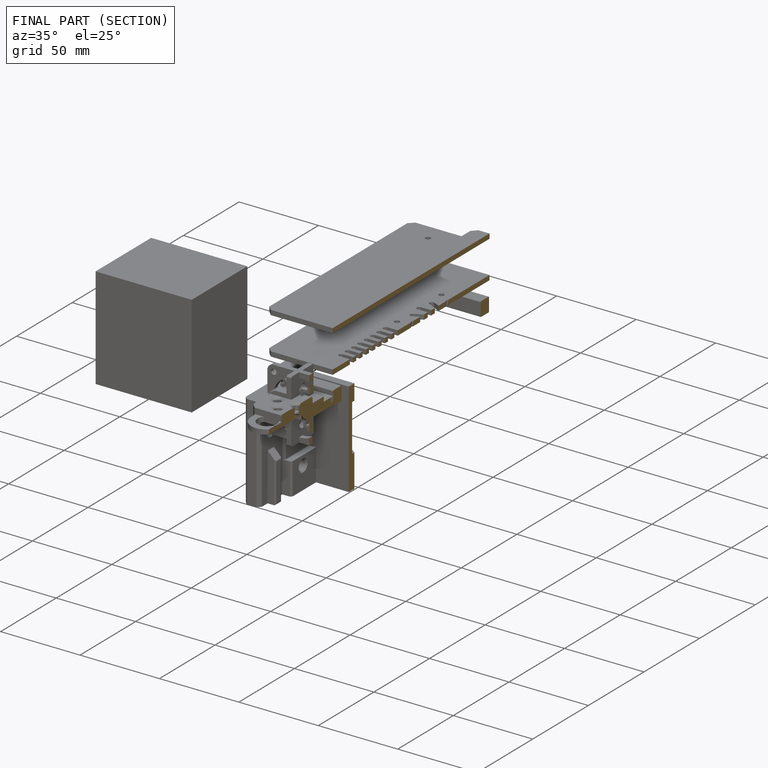
[diagram: finished part — half-section view (interior)]
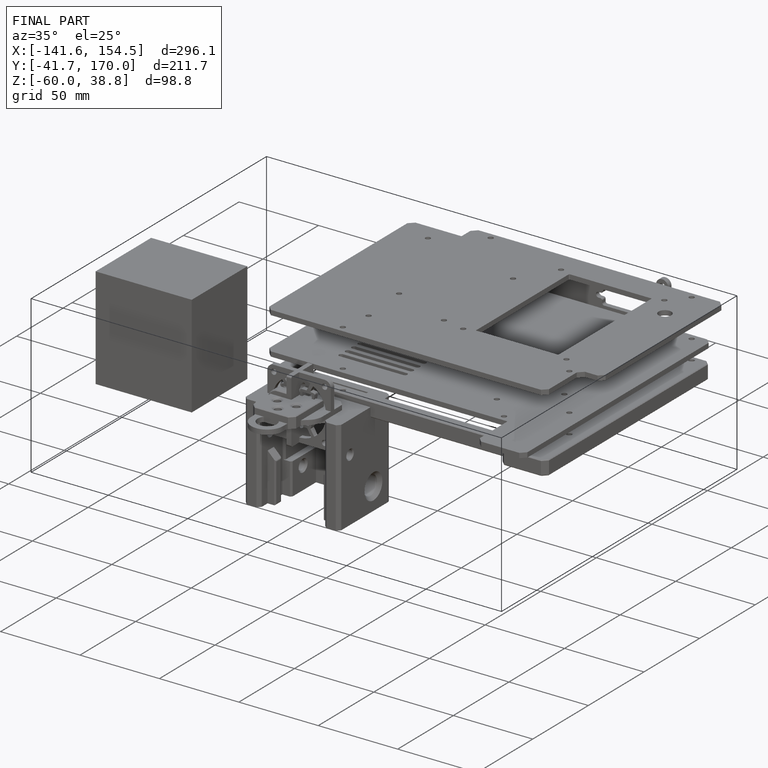
[diagram: finished part — iso view with bounding-box wireframe]
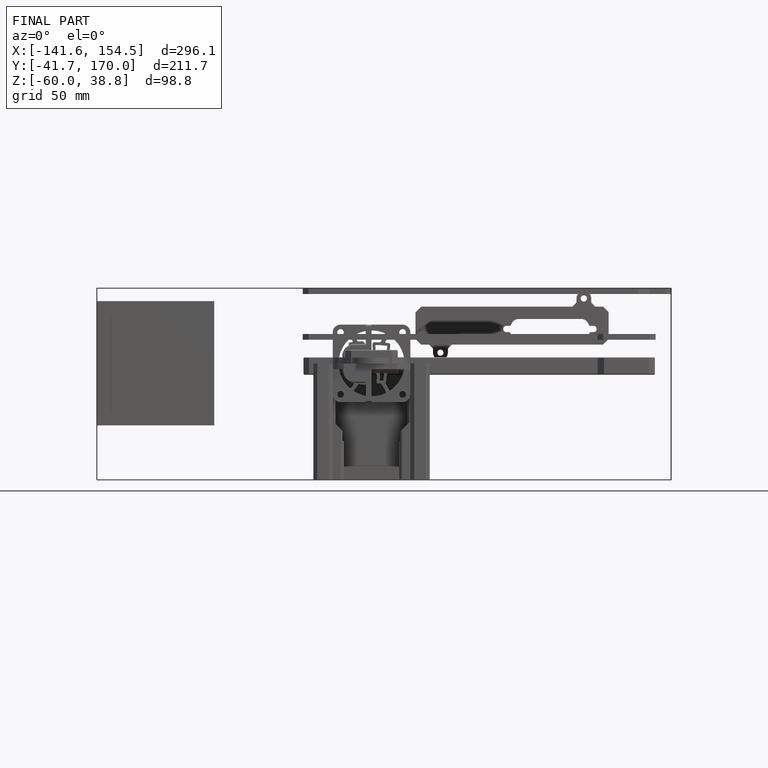
[diagram: finished part — front view with bounding-box wireframe]
